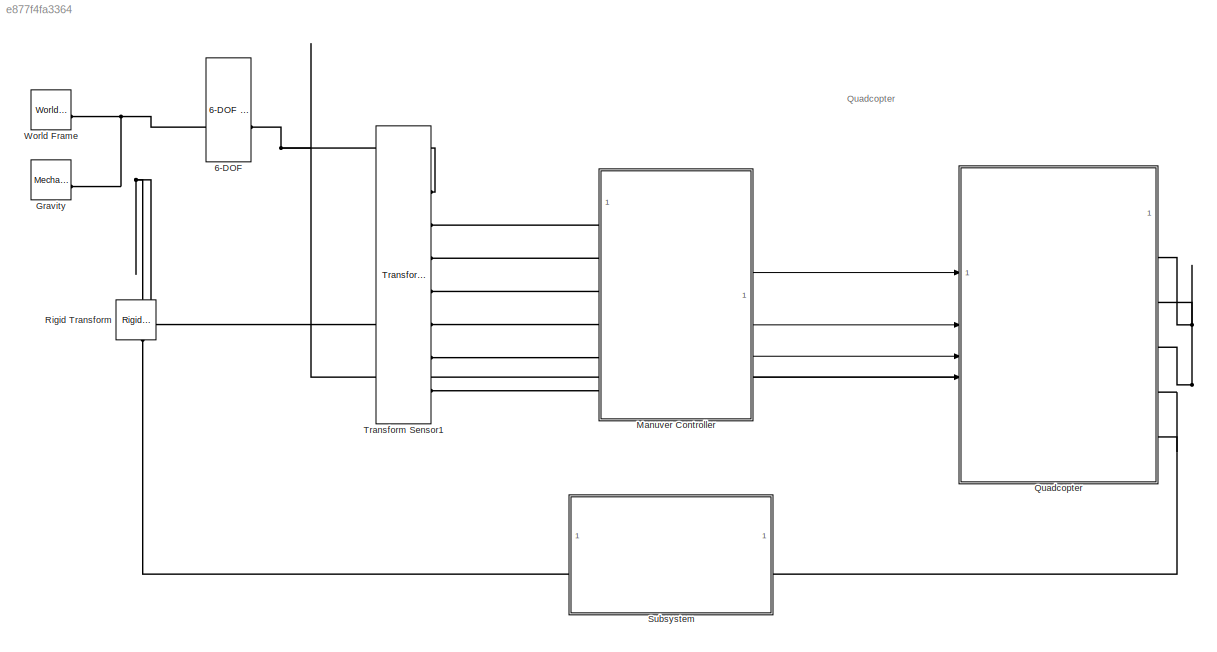
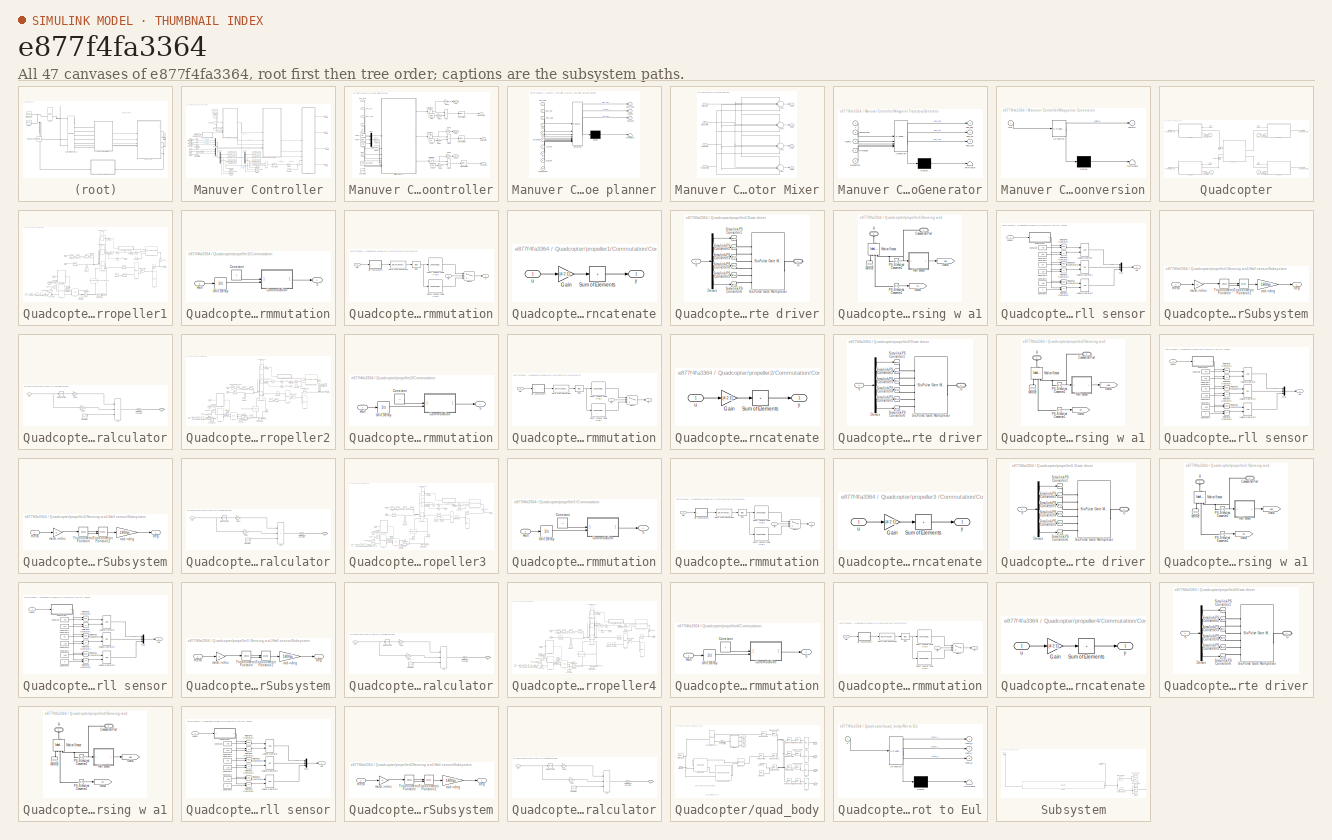
[diagram: thumbnail index - all 47 canvases of the model, root first then tree order]
MODEL slx_e877f4fa3364
KIND model
CONFIG AbsTol = 1e-4
CONFIG EnableMultiTasking = off
CONFIG FixedStep = auto
CONFIG MaxStep = 0.1
CONFIG MinStep = auto
CONFIG PreLoadFcn = Quadcopter_EMech_param_Ex1
CONFIG RelTol = 1e-4
CONFIG SampleTimeConstraint = Unconstrained
CONFIG SolverName = FixedStepAuto
CONFIG StartTime = 0.0
CONFIG StopTime = inf
WORKSPACE source: MATLAB code (in-file)
WORKSPACE code: load('xy_data_membrane.mat');
BLOCK [Reference] 6-DOF  REF=sm_lib/Joints/6-DOF Joint
  SourceBlock = sm_lib/Joints/6-DOF Joint
  SourceType = 6-DOF Joint
BLOCK [Reference] Gravity  REF=sm_lib/Utilities/Mechanism
Configuration
  SourceBlock = sm_lib/Utilities/Mechanism\nConfiguration
  SourceType = Mechanism\nConfiguration
BLOCK [SubSystem] Manuver Controller
BLOCK [Sum] Manuver Controller/Add
  IconShape = rectangular
  Inputs = +-
BLOCK [SubSystem] Manuver Controller/Attitude Controller
BLOCK [Sum] Manuver Controller/Attitude Controller/Add2
  IconShape = rectangular
  Inputs = +-
BLOCK [Sum] Manuver Controller/Attitude Controller/Add3
  IconShape = rectangular
  Inputs = +-
BLOCK [Sum] Manuver Controller/Attitude Controller/Add7
  IconShape = rectangular
  Inputs = +-
BLOCK [Clock] Manuver Controller/Attitude Controller/Clock
BLOCK [Constant] Manuver Controller/Attitude Controller/Constant1
  Value = m_total
BLOCK [Constant] Manuver Controller/Attitude Controller/Constant2
  Value = 0.15^3*2
BLOCK [From] Manuver Controller/Attitude Controller/From
  GotoTag = pitch
  TagVisibility = global
BLOCK [From] Manuver Controller/Attitude Controller/From1
  GotoTag = roll
  TagVisibility = global
BLOCK [From] Manuver Controller/Attitude Controller/From2
  GotoTag = yaw
  TagVisibility = global
BLOCK [From] Manuver Controller/Attitude Controller/From3
  GotoTag = pitch
  TagVisibility = global
BLOCK [From] Manuver Controller/Attitude Controller/From4
  GotoTag = roll
  TagVisibility = global
BLOCK [From] Manuver Controller/Attitude Controller/From5
  GotoTag = yaw
  TagVisibility = global
BLOCK [From] Manuver Controller/Attitude Controller/From6
  GotoTag = package_released
  TagVisibility = global
BLOCK [Gain] Manuver Controller/Attitude Controller/Gain1
  Gain = pi/180
BLOCK [Gain] Manuver Controller/Attitude Controller/Gain2
  Gain = pi/180
BLOCK [Gain] Manuver Controller/Attitude Controller/Gain3
  Gain = pi/180
BLOCK [Gain] Manuver Controller/Attitude Controller/Gain4
  Gain = pi/180
BLOCK [Gain] Manuver Controller/Attitude Controller/Gain5
  Gain = 180/pi
BLOCK [Gain] Manuver Controller/Attitude Controller/Gain8
  Gain = 180/pi
BLOCK [Gain] Manuver Controller/Attitude Controller/Gain9
  Gain = 180/pi
BLOCK [Goto] Manuver Controller/Attitude Controller/Goto
  GotoTag = pitch_ref
  TagVisibility = global
BLOCK [Goto] Manuver Controller/Attitude Controller/Goto1
  GotoTag = roll_ref
  TagVisibility = global
BLOCK [Goto] Manuver Controller/Attitude Controller/Goto2
  GotoTag = yaw_ref
  TagVisibility = global
BLOCK [Mux] Manuver Controller/Attitude Controller/Mux
  DisplayOption = bar
  Inputs = 3
BLOCK [Reference] Manuver Controller/Attitude Controller/PID Controller1  REF=slpidlib/PID Controller
  SourceBlock = slpidlib/PID Controller
  SourceType = PID 1dof
BLOCK [Reference] Manuver Controller/Attitude Controller/PID Controller2  REF=slpidlib/PID Controller
  SourceBlock = slpidlib/PID Controller
  SourceType = PID 1dof
BLOCK [Reference] Manuver Controller/Attitude Controller/PID Controller3  REF=slpidlib/PID Controller
  SourceBlock = slpidlib/PID Controller
  SourceType = PID 1dof
BLOCK [Outport] Manuver Controller/Attitude Controller/Pitch Control
BLOCK [Outport] Manuver Controller/Attitude Controller/Roll Control
  Port = 2
BLOCK [Saturate] Manuver Controller/Attitude Controller/Saturation1
  LowerLimit = -pi/3
  UpperLimit = pi/3
BLOCK [Saturate] Manuver Controller/Attitude Controller/Saturation2
  LowerLimit = -pi/3
  UpperLimit = pi/3
BLOCK [Saturate] Manuver Controller/Attitude Controller/Saturation3
  LowerLimit = -pi/3
  UpperLimit = pi/3
BLOCK [Outport] Manuver Controller/Attitude Controller/Yaw Control
  Port = 3
BLOCK [SubSystem] Manuver Controller/Attitude Controller/attitude planner
  ErrorFcn = Stateflow.Translate.translate
  PermitHierarchicalResolution = ExplicitOnly
  SFBlockType = MATLAB Function
  TreatAsAtomicUnit = on
BLOCK [Demux] Manuver Controller/Attitude Controller/attitude planner/ Demux 
  Outputs = 1
BLOCK [S-Function] Manuver Controller/Attitude Controller/attitude planner/ SFunction 
  EnableBusSupport = on
  FunctionName = sf_sfun
  PortCounts = [10 4]
  SFcnIsStateOwnerBlock = off
  SFunctionDeploymentMode = off
  Tag = Stateflow S-Function 1
BLOCK [Terminator] Manuver Controller/Attitude Controller/attitude planner/ Terminator 
BLOCK [Inport] Manuver Controller/Attitude Controller/attitude planner/T_drop
  Port = 7
BLOCK [Inport] Manuver Controller/Attitude Controller/attitude planner/attitude
  Port = 6
BLOCK [Inport] Manuver Controller/Attitude Controller/attitude planner/des_pos
BLOCK [Inport] Manuver Controller/Attitude Controller/attitude planner/des_vel
  Port = 2
BLOCK [Inport] Manuver Controller/Attitude Controller/attitude planner/des_yaw
  Port = 3
BLOCK [Inport] Manuver Controller/Attitude Controller/attitude planner/m_package
  Port = 10
BLOCK [Inport] Manuver Controller/Attitude Controller/attitude planner/m_quad
  Port = 9
BLOCK [Outport] Manuver Controller/Attitude Controller/attitude planner/pitch_des
BLOCK [Inport] Manuver Controller/Attitude Controller/attitude planner/pos
  Port = 4
BLOCK [Outport] Manuver Controller/Attitude Controller/attitude planner/roll_des
  Port = 2
BLOCK [Inport] Manuver Controller/Attitude Controller/attitude planner/t
  Port = 8
BLOCK [Inport] Manuver Controller/Attitude Controller/attitude planner/vel
  Port = 5
BLOCK [Outport] Manuver Controller/Attitude Controller/attitude planner/yaw_des
  Port = 3
BLOCK [Inport] Manuver Controller/Attitude Controller/des_pos
BLOCK [Inport] Manuver Controller/Attitude Controller/des_vel
  Port = 2
BLOCK [Inport] Manuver Controller/Attitude Controller/des_yaw
  Port = 3
BLOCK [Inport] Manuver Controller/Attitude Controller/pos
  Port = 4
BLOCK [Inport] Manuver Controller/Attitude Controller/vel
  Port = 5
BLOCK [Clock] Manuver Controller/Clock1
  DisplayTime = on
BLOCK [Constant] Manuver Controller/Constant
  Value = 700*2*pi
BLOCK [Constant] Manuver Controller/Constant6
BLOCK [Constant] Manuver Controller/Constant7
  Value = [x0;y0;initialAltitude]
BLOCK [Constant] Manuver Controller/Constant9
  Value = timespot
BLOCK [Demux] Manuver Controller/Demux
  Outputs = 3
BLOCK [Demux] Manuver Controller/Demux1
  Outputs = 3
BLOCK [FromWorkspace] Manuver Controller/From Workspace
  OutputAfterFinalValue = Holding final value
  VariableName = way
BLOCK [Gain] Manuver Controller/Gain3
  Gain = 2*pi/(0.254^4 * sqrt(1.225))
BLOCK [Goto] Manuver Controller/Goto1
  GotoTag = x_measured
  TagVisibility = global
BLOCK [Goto] Manuver Controller/Goto2
  GotoTag = x_ref
  TagVisibility = global
BLOCK [Goto] Manuver Controller/Goto3
  GotoTag = y_ref
  TagVisibility = global
BLOCK [Goto] Manuver Controller/Goto4
  GotoTag = height_mea
  TagVisibility = global
BLOCK [Goto] Manuver Controller/Goto5
  GotoTag = height_ref
  TagVisibility = global
BLOCK [Goto] Manuver Controller/Goto6
  GotoTag = y_measured
  TagVisibility = global
BLOCK [SubSystem] Manuver Controller/Motor Mixer
BLOCK [Sum] Manuver Controller/Motor Mixer/Add4
  Inputs = +--+
BLOCK [Sum] Manuver Controller/Motor Mixer/Add5
  Inputs = --++
BLOCK [Sum] Manuver Controller/Motor Mixer/Add6
  Inputs = -+-+
BLOCK [Sum] Manuver Controller/Motor Mixer/Add7
  Inputs = ++++
BLOCK [Inport] Manuver Controller/Motor Mixer/Pitch Control
BLOCK [Inport] Manuver Controller/Motor Mixer/Roll Control
  Port = 2
BLOCK [Inport] Manuver Controller/Motor Mixer/Thrust Control
  Port = 4
BLOCK [Inport] Manuver Controller/Motor Mixer/Yaw Control
  Port = 3
BLOCK [Outport] Manuver Controller/Motor Mixer/motor1
  Port = 2
BLOCK [Outport] Manuver Controller/Motor Mixer/motor2
BLOCK [Outport] Manuver Controller/Motor Mixer/motor3
  Port = 4
BLOCK [Outport] Manuver Controller/Motor Mixer/motor4
  Port = 3
BLOCK [Reference] Manuver Controller/PID Controller2  REF=slpidlib/PID Controller
  SourceBlock = slpidlib/PID Controller
  SourceType = PID 1dof
BLOCK [Reference] Manuver Controller/PS-Simulink Converter  REF=nesl_utility/PS-Simulink
Converter
  SourceBlock = nesl_utility/PS-Simulink\nConverter
  SourceType = PS-Simulink\nConverter
BLOCK [Reference] Manuver Controller/PS-Simulink Converter1  REF=nesl_utility/PS-Simulink
Converter
  SourceBlock = nesl_utility/PS-Simulink\nConverter
  SourceType = PS-Simulink\nConverter
BLOCK [Reference] Manuver Controller/PS-Simulink Converter2  REF=nesl_utility/PS-Simulink
Converter
  SourceBlock = nesl_utility/PS-Simulink\nConverter
  SourceType = PS-Simulink\nConverter
BLOCK [Sum] Manuver Controller/Sum
  Inputs = |++
BLOCK [ToWorkspace] Manuver Controller/To Workspace
  FixptAsFi = on
  MaxDataPoints = inf
  SampleTime = -1
  VariableName = act_z
BLOCK [ToWorkspace] Manuver Controller/To Workspace4
  FixptAsFi = on
  MaxDataPoints = inf
  SampleTime = -1
  VariableName = act_y
BLOCK [ToWorkspace] Manuver Controller/To Workspace5
  FixptAsFi = on
  MaxDataPoints = inf
  SampleTime = -1
  VariableName = act_x
BLOCK [ToWorkspace] Manuver Controller/To Workspace6
  MaxDataPoints = inf
  SampleTime = -1
  VariableName = des_x
BLOCK [ToWorkspace] Manuver Controller/To Workspace7
  FixptAsFi = on
  MaxDataPoints = inf
  SampleTime = -1
  VariableName = des_y
BLOCK [ToWorkspace] Manuver Controller/To Workspace8
  FixptAsFi = on
  MaxDataPoints = inf
  SampleTime = -1
  VariableName = des_z
BLOCK [SubSystem] Manuver Controller/Waypoint Trajectory Generator
  ErrorFcn = Stateflow.Translate.translate
  PermitHierarchicalResolution = ExplicitOnly
  SFBlockType = MATLAB Function
  TreatAsAtomicUnit = on
BLOCK [Demux] Manuver Controller/Waypoint Trajectory Generator/ Demux 
  Outputs = 1
BLOCK [S-Function] Manuver Controller/Waypoint Trajectory Generator/ SFunction 
  EnableBusSupport = on
  FunctionName = sf_sfun
  PortCounts = [5 4]
  SFcnIsStateOwnerBlock = off
  SFunctionDeploymentMode = off
  Tag = Stateflow S-Function 4
BLOCK [Terminator] Manuver Controller/Waypoint Trajectory Generator/ Terminator 
BLOCK [Outport] Manuver Controller/Waypoint Trajectory Generator/des_pos
BLOCK [Outport] Manuver Controller/Waypoint Trajectory Generator/des_vel
  Port = 2
BLOCK [Outport] Manuver Controller/Waypoint Trajectory Generator/des_yaw
  Port = 3
BLOCK [Inport] Manuver Controller/Waypoint Trajectory Generator/homePose
  Port = 2
BLOCK [Inport] Manuver Controller/Waypoint Trajectory Generator/launch
  Port = 3
BLOCK [Inport] Manuver Controller/Waypoint Trajectory Generator/t
BLOCK [Inport] Manuver Controller/Waypoint Trajectory Generator/timespot
  Port = 4
BLOCK [Inport] Manuver Controller/Waypoint Trajectory Generator/waypoints
  Port = 5
BLOCK [SubSystem] Manuver Controller/Waypoints Conversion
  ErrorFcn = Stateflow.Translate.translate
  PermitHierarchicalResolution = ExplicitOnly
  SFBlockType = MATLAB Function
  TreatAsAtomicUnit = on
BLOCK [Demux] Manuver Controller/Waypoints Conversion/ Demux 
  Outputs = 1
BLOCK [S-Function] Manuver Controller/Waypoints Conversion/ SFunction 
  EnableBusSupport = on
  FunctionName = sf_sfun
  PortCounts = [1 2]
  SFcnIsStateOwnerBlock = off
  SFunctionDeploymentMode = off
  Tag = Stateflow S-Function 3
BLOCK [Terminator] Manuver Controller/Waypoints Conversion/ Terminator 
BLOCK [Outport] Manuver Controller/Waypoints Conversion/points1
BLOCK [Inport] Manuver Controller/Waypoints Conversion/way
BLOCK [Outport] Manuver Controller/motor1
  Port = 2
BLOCK [Outport] Manuver Controller/motor2
BLOCK [Outport] Manuver Controller/motor3
  Port = 4
BLOCK [Outport] Manuver Controller/motor4
  Port = 3
BLOCK [Mux] Manuver Controller/position
  DisplayOption = bar
  Inputs = 3
  NameLocation = top
BLOCK [PMIOPort] Manuver Controller/vel_x
  Port = 4
  Side = Left
BLOCK [PMIOPort] Manuver Controller/vel_y
  Port = 5
  Side = Left
BLOCK [PMIOPort] Manuver Controller/vel_z
  Port = 6
  Side = Left
BLOCK [Mux] Manuver Controller/velocity
  DisplayOption = bar
  Inputs = 3
BLOCK [Reference] Manuver Controller/x  REF=nesl_utility/PS-Simulink
Converter
  SourceBlock = nesl_utility/PS-Simulink\nConverter
  SourceType = PS-Simulink\nConverter
BLOCK [PMIOPort] Manuver Controller/x-translation
  Side = Left
BLOCK [Reference] Manuver Controller/y  REF=nesl_utility/PS-Simulink
Converter
  SourceBlock = nesl_utility/PS-Simulink\nConverter
  SourceType = PS-Simulink\nConverter
BLOCK [PMIOPort] Manuver Controller/y-translation
  Port = 2
  Side = Left
BLOCK [Reference] Manuver Controller/z  REF=nesl_utility/PS-Simulink
Converter
  SourceBlock = nesl_utility/PS-Simulink\nConverter
  SourceType = PS-Simulink\nConverter
BLOCK [PMIOPort] Manuver Controller/z-translation
  Port = 3
  Side = Left
BLOCK [SubSystem] Quadcopter
BLOCK [Goto] Quadcopter/Goto
  GotoTag = T2
  TagVisibility = global
BLOCK [Goto] Quadcopter/Goto1
  GotoTag = T4
  TagVisibility = global
BLOCK [Goto] Quadcopter/Goto2
  GotoTag = T1
  TagVisibility = global
BLOCK [Goto] Quadcopter/Goto3
  GotoTag = T3
  TagVisibility = global
BLOCK [PMIOPort] Quadcopter/Landing Support1
  Port = 2
  Side = Right
BLOCK [PMIOPort] Quadcopter/Landing Support2 
  Port = 5
  Side = Right
BLOCK [PMIOPort] Quadcopter/Landing Support3
  NameLocation = top
  Port = 3
  Side = Right
BLOCK [PMIOPort] Quadcopter/Landing Support4 
  Port = 4
  Side = Right
BLOCK [Reference] Quadcopter/PS-Simulink Converter  REF=nesl_utility/PS-Simulink
Converter
  SourceBlock = nesl_utility/PS-Simulink\nConverter
  SourceType = PS-Simulink\nConverter
BLOCK [Reference] Quadcopter/PS-Simulink Converter1  REF=nesl_utility/PS-Simulink
Converter
  SourceBlock = nesl_utility/PS-Simulink\nConverter
  SourceType = PS-Simulink\nConverter
BLOCK [Reference] Quadcopter/PS-Simulink Converter2  REF=nesl_utility/PS-Simulink
Converter
  SourceBlock = nesl_utility/PS-Simulink\nConverter
  SourceType = PS-Simulink\nConverter
BLOCK [Reference] Quadcopter/PS-Simulink Converter3  REF=nesl_utility/PS-Simulink
Converter
  SourceBlock = nesl_utility/PS-Simulink\nConverter
  SourceType = PS-Simulink\nConverter
BLOCK [PMIOPort] Quadcopter/arm
  Side = Left
BLOCK [PMIOPort] Quadcopter/ground
  Port = 6
  Side = Right
BLOCK [Inport] Quadcopter/prop1 
  Port = 2
BLOCK [Inport] Quadcopter/prop2
BLOCK [Inport] Quadcopter/prop3
  Port = 4
BLOCK [Inport] Quadcopter/prop4
  Port = 3
BLOCK [SubSystem] Quadcopter/propeller1
BLOCK [Abs] Quadcopter/propeller1/Abs
  SaturateOnIntegerOverflow = off
BLOCK [Reference] Quadcopter/propeller1/BLDC  REF=ee_lib/Electromechanical/Permanent Magnet/BLDC
  SourceBlock = ee_lib/Electromechanical/Permanent Magnet/BLDC
  SourceType = BLDC
BLOCK [Reference] Quadcopter/propeller1/Collision Detector 2-1  REF=sm_lib/Body Elements/Spherical Solid
  NameLocation = top
  SourceBlock = sm_lib/Body Elements/Spherical Solid
  SourceType = Spherical Solid
BLOCK [SubSystem] Quadcopter/propeller1/Commutation
  NameLocation = top
BLOCK [SubSystem] Quadcopter/propeller1/Commutation/Commutation
BLOCK [Bias] Quadcopter/propeller1/Commutation/Commutation/Bias
  Bias = -1
  SaturateOnIntegerOverflow = off
BLOCK [SubSystem] Quadcopter/propeller1/Commutation/Commutation/Bit concatenate
BLOCK [Gain] Quadcopter/propeller1/Commutation/Commutation/Bit concatenate/Gain
  Gain = [4 2 1]
  Multiplication = Matrix(K*u)
BLOCK [Sum] Quadcopter/propeller1/Commutation/Commutation/Bit concatenate/Sum of Elements
  IconShape = rectangular
  Inputs = +
BLOCK [Inport] Quadcopter/propeller1/Commutation/Commutation/Bit concatenate/u
BLOCK [Outport] Quadcopter/propeller1/Commutation/Commutation/Bit concatenate/y
  VectorParamsAs1DForOutWhenUnconnected = off
BLOCK [DataTypeConversion] Quadcopter/propeller1/Commutation/Commutation/Data Type Conversion
  RndMeth = Floor
  SaturateOnIntegerOverflow = off
BLOCK [LookupNDDirect] Quadcopter/propeller1/Commutation/Commutation/Direct Lookup Table (n-D)1
  InputsSelectThisObjectFromTable = Vector
  Table = [0 1 1 0 0 0;0 0 0 1 1 0;1 0 0 0 1 0;0 1 0 0 0 1;0 0 0 1 0 1;1 0 1 0 0 0]
BLOCK [LookupNDDirect] Quadcopter/propeller1/Commutation/Commutation/Direct Lookup Table (n-D)2
  InputsSelectThisObjectFromTable = Vector
  Table = [0 0 0 1 1 0;0 1 1 0 0 0;0 1 0 0 0 1;1 0 0 0 1 0;1 0 1 0 0 0;0 0 0 1 0 1]
BLOCK [Inport] Quadcopter/propeller1/Commutation/Commutation/Hall
  Port = 2
BLOCK [Outport] Quadcopter/propeller1/Commutation/Commutation/S
  VectorParamsAs1DForOutWhenUnconnected = off
BLOCK [Switch] Quadcopter/propeller1/Commutation/Commutation/Switch
  Criteria = u2 > Threshold
  InputSameDT = off
  SaturateOnIntegerOverflow = off
BLOCK [Inport] Quadcopter/propeller1/Commutation/Commutation/dir
BLOCK [Constant] Quadcopter/propeller1/Commutation/Constant
BLOCK [Inport] Quadcopter/propeller1/Commutation/Hall
BLOCK [Outport] Quadcopter/propeller1/Commutation/S
  VectorParamsAs1DForOutWhenUnconnected = off
BLOCK [UnitDelay] Quadcopter/propeller1/Commutation/Unit Delay
  HasFrameUpgradeWarning = on
  SampleTime = -1
BLOCK [Reference] Quadcopter/propeller1/Controlled Voltage Source  REF=fl_lib/Electrical/Electrical Sources/Controlled Voltage
Source
  NameLocation = right
  SourceBlock = fl_lib/Electrical/Electrical Sources/Controlled Voltage\nSource
  SourceType = Controlled Voltage\nSource
BLOCK [Reference] Quadcopter/propeller1/Current Sensor  REF=fl_lib/Electrical/Electrical Sensors/Current Sensor
  SourceBlock = fl_lib/Electrical/Electrical Sensors/Current Sensor
  SourceType = Current Sensor
BLOCK [Reference] Quadcopter/propeller1/ERef Converter1  REF=fl_lib/Electrical/Electrical Elements/Electrical Reference
  NameLocation = right
  SourceBlock = fl_lib/Electrical/Electrical Elements/Electrical Reference
  SourceType = Electrical Reference
BLOCK [Reference] Quadcopter/propeller1/ERef IPMSM  REF=fl_lib/Electrical/Electrical Elements/Electrical Reference
  SourceBlock = fl_lib/Electrical/Electrical Elements/Electrical Reference
  SourceType = Electrical Reference
BLOCK [From] Quadcopter/propeller1/From7
  GotoTag = Hall1
  TagVisibility = global
BLOCK [Gain] Quadcopter/propeller1/Gain1
  Gain = 30/pi
BLOCK [Gain] Quadcopter/propeller1/Gain2
  Gain = 30/pi
BLOCK [SubSystem] Quadcopter/propeller1/Gate driver
  NameLocation = top
BLOCK [Demux] Quadcopter/propeller1/Gate driver/Demux
  Outputs = 6
BLOCK [PMIOPort] Quadcopter/propeller1/Gate driver/G
  Side = Right
BLOCK [Inport] Quadcopter/propeller1/Gate driver/S
BLOCK [Reference] Quadcopter/propeller1/Gate driver/Simulink-PS Converter1  REF=nesl_utility/Simulink-PS
Converter
  SourceBlock = nesl_utility/Simulink-PS\nConverter
  SourceType = Simulink-PS\nConverter
BLOCK [Reference] Quadcopter/propeller1/Gate driver/Simulink-PS Converter2  REF=nesl_utility/Simulink-PS
Converter
  SourceBlock = nesl_utility/Simulink-PS\nConverter
  SourceType = Simulink-PS\nConverter
BLOCK [Reference] Quadcopter/propeller1/Gate driver/Simulink-PS Converter3  REF=nesl_utility/Simulink-PS
Converter
  SourceBlock = nesl_utility/Simulink-PS\nConverter
  SourceType = Simulink-PS\nConverter
BLOCK [Reference] Quadcopter/propeller1/Gate driver/Simulink-PS Converter4  REF=nesl_utility/Simulink-PS
Converter
  SourceBlock = nesl_utility/Simulink-PS\nConverter
  SourceType = Simulink-PS\nConverter
BLOCK [Reference] Quadcopter/propeller1/Gate driver/Simulink-PS Converter5  REF=nesl_utility/Simulink-PS
Converter
  SourceBlock = nesl_utility/Simulink-PS\nConverter
  SourceType = Simulink-PS\nConverter
BLOCK [Reference] Quadcopter/propeller1/Gate driver/Simulink-PS Converter6  REF=nesl_utility/Simulink-PS
Converter
  SourceBlock = nesl_utility/Simulink-PS\nConverter
  SourceType = Simulink-PS\nConverter
BLOCK [Reference] Quadcopter/propeller1/Gate driver/Six-Pulse Gate Multiplexer  REF=ee_lib/Semiconductors &
Converters/Converters/Six-Pulse Gate
Multiplexer
  SourceBlock = ee_lib/Semiconductors &\nConverters/Converters/Six-Pulse Gate\nMultiplexer
  SourceType = Six-Pulse Gate\nMultiplexer
BLOCK [Reference] Quadcopter/propeller1/Gmin  REF=fl_lib/Electrical/Electrical Elements/Resistor
  SourceBlock = fl_lib/Electrical/Electrical Elements/Resistor
  SourceType = Resistor
BLOCK [Goto] Quadcopter/propeller1/Goto
  GotoTag = rpm1
  TagVisibility = global
BLOCK [Goto] Quadcopter/propeller1/Goto1
  GotoTag = i_motor1
  TagVisibility = global
BLOCK [Reference] Quadcopter/propeller1/Ideal Angular Velocity Source  REF=fl_lib/Mechanical/Mechanical Sources/Ideal Angular
Velocity Source
  NameLocation = top
  SourceBlock = fl_lib/Mechanical/Mechanical Sources/Ideal Angular\nVelocity Source
  SourceType = Ideal Angular\nVelocity Source
BLOCK [Reference] Quadcopter/propeller1/Ideal Torque Sensor  REF=fl_lib/Mechanical/Mechanical Sensors/Ideal Torque Sensor
  SourceBlock = fl_lib/Mechanical/Mechanical Sensors/Ideal Torque Sensor
  SourceType = Ideal Torque Sensor
BLOCK [Reference] Quadcopter/propeller1/Inverter  REF=ee_lib/Semiconductors &
Converters/Converters/Converter
(Three-Phase)
  SourceBlock = ee_lib/Semiconductors &\nConverters/Converters/Converter\n(Three-Phase)
  SourceType = Converter\n(Three-Phase)
BLOCK [Reference] Quadcopter/propeller1/Landing support1  REF=sm_lib/Body Elements/Brick Solid
  SourceBlock = sm_lib/Body Elements/Brick Solid
  SourceType = Brick Solid
BLOCK [PMIOPort] Quadcopter/propeller1/Leg
  Port = 2
  Side = Right
BLOCK [Reference] Quadcopter/propeller1/MRRef IPMSM1  REF=fl_lib/Mechanical/Rotational Elements/Mechanical
Rotational Reference
  NameLocation = top
  SourceBlock = fl_lib/Mechanical/Rotational Elements/Mechanical\nRotational Reference
  SourceType = Mechanical\nRotational Reference
BLOCK [Reference] Quadcopter/propeller1/MRRef Load  REF=fl_lib/Mechanical/Rotational Elements/Mechanical
Rotational Reference
  NameLocation = top
  SourceBlock = fl_lib/Mechanical/Rotational Elements/Mechanical\nRotational Reference
  SourceType = Mechanical\nRotational Reference
BLOCK [PMIOPort] Quadcopter/propeller1/Motor
  Side = Left
BLOCK [Reference] Quadcopter/propeller1/PS Constant  REF=fl_lib/Physical Signals/Sources/PS Constant
  SourceBlock = fl_lib/Physical Signals/Sources/PS Constant
  SourceType = PS Constant
BLOCK [Reference] Quadcopter/propeller1/PS Gain  REF=fl_lib/Physical Signals/Functions/PS Gain
  SourceBlock = fl_lib/Physical Signals/Functions/PS Gain
  SourceType = PS Gain
BLOCK [Reference] Quadcopter/propeller1/PS Gain3  REF=fl_lib/Physical Signals/Functions/PS Gain
  NameLocation = left
  SourceBlock = fl_lib/Physical Signals/Functions/PS Gain
  SourceType = PS Gain
BLOCK [Reference] Quadcopter/propeller1/PS-Simulink Converter1  REF=nesl_utility/PS-Simulink
Converter
  SourceBlock = nesl_utility/PS-Simulink\nConverter
  SourceType = PS-Simulink\nConverter
BLOCK [Reference] Quadcopter/propeller1/PS-Simulink Converter2  REF=nesl_utility/PS-Simulink
Converter
  SourceBlock = nesl_utility/PS-Simulink\nConverter
  SourceType = PS-Simulink\nConverter
BLOCK [Reference] Quadcopter/propeller1/PS-Simulink Converter3  REF=nesl_utility/PS-Simulink
Converter
  SourceBlock = nesl_utility/PS-Simulink\nConverter
  SourceType = PS-Simulink\nConverter
BLOCK [Reference] Quadcopter/propeller1/Prop1  REF=sm_lib/Body Elements/File Solid
  SourceBlock = sm_lib/Body Elements/File Solid
  SourceType = File Solid
BLOCK [RateLimiter] Quadcopter/propeller1/Rate Limiter1
  FallingSlewLimit = -Tmax*(60/2/pi)/Jm/6
  RisingSlewLimit = Tmax*(60/2/pi)/Jm/6
  SampleTimeMode = inherited
BLOCK [Reference] Quadcopter/propeller1/Revolute Joint  REF=sm_lib/Joints/Revolute Joint
  SourceBlock = sm_lib/Joints/Revolute Joint
  SourceType = Revolute Joint
BLOCK [Reference] Quadcopter/propeller1/Rigid Transform6  REF=sm_lib/Frames and
Transforms/Rigid
Transform
  SourceBlock = sm_lib/Frames and\nTransforms/Rigid\nTransform
  SourceType = Rigid\nTransform
BLOCK [Saturate] Quadcopter/propeller1/Saturation
  LowerLimit = 0
  UpperLimit = Vdc
BLOCK [SubSystem] Quadcopter/propeller1/Sensing w a1
  NameLocation = left
BLOCK [PMIOPort] Quadcopter/propeller1/Sensing w a1/Connection Port
  NameLocation = top
  Port = 2
  Side = Right
BLOCK [Goto] Quadcopter/propeller1/Sensing w a1/Goto1
  GotoTag = Hall1
  TagVisibility = global
BLOCK [Goto] Quadcopter/propeller1/Sensing w a1/Goto2
  GotoTag = w1
  TagVisibility = global
BLOCK [SubSystem] Quadcopter/propeller1/Sensing w a1/Hall sensor
BLOCK [Constant] Quadcopter/propeller1/Sensing w a1/Hall sensor/Constant
  Value = -60
BLOCK [Constant] Quadcopter/propeller1/Sensing w a1/Hall sensor/Constant1
  Value = 120
BLOCK [Constant] Quadcopter/propeller1/Sensing w a1/Hall sensor/Constant2
  Value = 60
BLOCK [Constant] Quadcopter/propeller1/Sensing w a1/Hall sensor/Constant3
  Value = -120
BLOCK [Constant] Quadcopter/propeller1/Sensing w a1/Hall sensor/Constant4
  Value = -180
BLOCK [Constant] Quadcopter/propeller1/Sensing w a1/Hall sensor/Constant5
  Value = 0
BLOCK [Outport] Quadcopter/propeller1/Sensing w a1/Hall sensor/Hall
  VectorParamsAs1DForOutWhenUnconnected = off
BLOCK [Logic] Quadcopter/propeller1/Sensing w a1/Hall sensor/Logical Operator
  AllPortsSameDT = off
  OutDataTypeStr = boolean
BLOCK [Logic] Quadcopter/propeller1/Sensing w a1/Hall sensor/Logical Operator1
  AllPortsSameDT = off
  Operator = OR
  OutDataTypeStr = boolean
BLOCK [Logic] Quadcopter/propeller1/Sensing w a1/Hall sensor/Logical Operator2
  AllPortsSameDT = off
  OutDataTypeStr = boolean
BLOCK [Mux] Quadcopter/propeller1/Sensing w a1/Hall sensor/Mux
  DisplayOption = bar
  Inputs = 3
BLOCK [RelationalOperator] Quadcopter/propeller1/Sensing w a1/Hall sensor/Relational Operator1
  Operator = <=
BLOCK [RelationalOperator] Quadcopter/propeller1/Sensing w a1/Hall sensor/Relational Operator2
BLOCK [RelationalOperator] Quadcopter/propeller1/Sensing w a1/Hall sensor/Relational Operator3
  Operator = <=
BLOCK [RelationalOperator] Quadcopter/propeller1/Sensing w a1/Hall sensor/Relational Operator4
BLOCK [RelationalOperator] Quadcopter/propeller1/Sensing w a1/Hall sensor/Relational Operator5
  Operator = <=
BLOCK [RelationalOperator] Quadcopter/propeller1/Sensing w a1/Hall sensor/Relational Operator6
BLOCK [SubSystem] Quadcopter/propeller1/Sensing w a1/Hall sensor/Subsystem
BLOCK [Trigonometry] Quadcopter/propeller1/Sensing w a1/Hall sensor/Subsystem/Trigonometric Function
  Operator = sincos
BLOCK [Trigonometry] Quadcopter/propeller1/Sensing w a1/Hall sensor/Subsystem/Trigonometric Function2
  Operator = atan2
BLOCK [Outport] Quadcopter/propeller1/Sensing w a1/Hall sensor/Subsystem/deg
  VectorParamsAs1DForOutWhenUnconnected = off
BLOCK [Gain] Quadcopter/propeller1/Sensing w a1/Hall sensor/Subsystem/mech->elec
  Gain = p
BLOCK [Gain] Quadcopter/propeller1/Sensing w a1/Hall sensor/Subsystem/rad->deg
  Gain = 180/pi
  OutDataTypeStr = Inherit: Same as input
  ParamDataTypeStr = Inherit: Same as input
  SaturateOnIntegerOverflow = on
BLOCK [Inport] Quadcopter/propeller1/Sensing w a1/Hall sensor/Subsystem/theta
BLOCK [Inport] Quadcopter/propeller1/Sensing w a1/Hall sensor/theta
BLOCK [Reference] Quadcopter/propeller1/Sensing w a1/MRRef  REF=fl_lib/Mechanical/Rotational Elements/Mechanical
Rotational Reference
  NameLocation = left
  SourceBlock = fl_lib/Mechanical/Rotational Elements/Mechanical\nRotational Reference
  SourceType = Mechanical\nRotational Reference
BLOCK [Reference] Quadcopter/propeller1/Sensing w a1/Motion Sensor  REF=fl_lib/Mechanical/Mechanical Sensors/Ideal Rotational
Motion Sensor
  NameLocation = right
  SourceBlock = fl_lib/Mechanical/Mechanical Sensors/Ideal Rotational\nMotion Sensor
  SourceType = Ideal Rotational\nMotion Sensor
BLOCK [Reference] Quadcopter/propeller1/Sensing w a1/PS-Simulink Converter1  REF=nesl_utility/PS-Simulink
Converter
  SourceBlock = nesl_utility/PS-Simulink\nConverter
  SourceType = PS-Simulink\nConverter
BLOCK [Reference] Quadcopter/propeller1/Sensing w a1/PS-Simulink Converter2  REF=nesl_utility/PS-Simulink
Converter
  SourceBlock = nesl_utility/PS-Simulink\nConverter
  SourceType = PS-Simulink\nConverter
BLOCK [PMIOPort] Quadcopter/propeller1/Sensing w a1/R
  NameLocation = right
  Side = Left
BLOCK [SimscapeComponentBlock] Quadcopter/propeller1/Simscape Component
  ClassName = PropellerThrust
  ComponentPath = PropellerThrust
  ComponentVariantNames = ["PropellerThrust"]
  ComponentVariants = ["PropellerThrust"]
  CopyFcn = simscape.engine.sli.internal.componentblockcallback(gcbh,'COPY')
  D = 0.254
  D_conf = compiletime
  D_unit = m
  InternalSimscapePortConfiguration = {"Bottom":[],"Left":[{"id":"ct","label":"Thrust Coefficient","type":"input"},{"id":"rpm","label":"rpm","type":"input"},{"id":"rho","label":"rho","type":"input"}],"Right":[{"id":"Thrust","label":"Thrust","type":"output"}],"Top":[]}  <repeated x4 — deduplicated; at blocks: Simscape Component, Propeller Thrust Calculator>
  MaskDisplay = color('red');plot([0 1 1 0 0],[0 0 1 1 0]);plot([0.7,1],[1,0.7]);plot(-2,-1.75);plot(3, 1);disp('\n.ssc\nUnresolved')
  MaskType = Propeller Thrust Characteristic Calculator
  PreCopyFcn = simscape.engine.sli.internal.componentblockcallback(gcbh,'PRECOPY')
  PreDeleteFcn = simscape.engine.sli.internal.componentblockcallback(gcbh,'PREDELETE')
  SchemaVersion = 1
  SourceFile = PropellerThrust
BLOCK [SimscapeComponentBlock] Quadcopter/propeller1/Simscape Component1
  ClassName = fault_injection
  ComponentPath = fault_injection
  ComponentVariantNames = ["fault_injection"]
  ComponentVariants = ["fault_injection"]
  CopyFcn = simscape.engine.sli.internal.componentblockcallback(gcbh,'COPY')
  InternalSimscapePortConfiguration = {"Bottom":[],"Left":[{"id":"I","label":"","type":"input"}],"Right":[{"id":"O","label":"","type":"output"}],"Top":[]}
  MaskDisplay = color('red');plot([0 1 1 0 0],[0 0 1 1 0]);plot([0.7,1],[1,0.7]);plot(-2,-1.75);plot(3, 1);disp('\n.ssc\nUnresolved')
  MaskType = Fault Injection
  NameLocation = right
  PreCopyFcn = simscape.engine.sli.internal.componentblockcallback(gcbh,'PRECOPY')
  PreDeleteFcn = simscape.engine.sli.internal.componentblockcallback(gcbh,'PREDELETE')
  SchemaVersion = 1
  SourceFile = fault_injection
  enable_faults = simscape.enum.onoff.off
  enable_faults_conf = compiletime
  enable_faults_unit = 1
  external_fault = simscape.enum.onoff.off
  external_fault_conf = compiletime
  external_fault_unit = 1
  fault_time = tFault1
  fault_time_conf = compiletime
  fault_time_unit = s
  faulted_torque = torqueFault1
  faulted_torque_conf = compiletime
  faulted_torque_unit = 1
  temporal_fault = simscape.enum.onoff.off
  temporal_fault_conf = compiletime
  temporal_fault_unit = 1
BLOCK [Reference] Quadcopter/propeller1/Simulink-PS Converter  REF=nesl_utility/Simulink-PS
Converter
  SourceBlock = nesl_utility/Simulink-PS\nConverter
  SourceType = Simulink-PS\nConverter
BLOCK [Reference] Quadcopter/propeller1/Simulink-PS Converter1  REF=nesl_utility/Simulink-PS
Converter
  SourceBlock = nesl_utility/Simulink-PS\nConverter
  SourceType = Simulink-PS\nConverter
BLOCK [Reference] Quadcopter/propeller1/Spatial Contact Force  REF=sm_lib/Forces and
Torques/Spatial
Contact Force
  NameLocation = top
  SourceBlock = sm_lib/Forces and\nTorques/Spatial\nContact Force
  SourceType = Spatial\nContact Force
BLOCK [Reference] Quadcopter/propeller1/Thrust  REF=sm_lib/Forces and
Torques/External Force
and Torque
  SourceBlock = sm_lib/Forces and\nTorques/External Force\nand Torque
  SourceType = External Force\nand Torque
BLOCK [SubSystem] Quadcopter/propeller1/Thrust Coefficient Calculator
BLOCK [Sum] Quadcopter/propeller1/Thrust Coefficient Calculator/Add
  IconShape = rectangular
  Inputs = +++
BLOCK [Constant] Quadcopter/propeller1/Thrust Coefficient Calculator/Constant
  Value = 0.1072
BLOCK [PMIOPort] Quadcopter/propeller1/Thrust Coefficient Calculator/Ct
  NameLocation = top
  Side = Right
BLOCK [Gain] Quadcopter/propeller1/Thrust Coefficient Calculator/Gain1
  Gain = -0.008716
BLOCK [Gain] Quadcopter/propeller1/Thrust Coefficient Calculator/Gain4
  Gain = -0.001589
BLOCK [Math] Quadcopter/propeller1/Thrust Coefficient Calculator/Math Function
  Operator = square
BLOCK [Reference] Quadcopter/propeller1/Thrust Coefficient Calculator/Simulink-PS Converter  REF=nesl_utility/Simulink-PS
Converter
  SourceBlock = nesl_utility/Simulink-PS\nConverter
  SourceType = Simulink-PS\nConverter
BLOCK [Inport] Quadcopter/propeller1/Thrust Coefficient Calculator/m//s
BLOCK [PMIOPort] Quadcopter/propeller1/Thrust2 
  Port = 3
  Side = Left
BLOCK [Reference] Quadcopter/propeller1/Transform Sensor  REF=sm_lib/Frames and
Transforms/Transform
Sensor
  SourceBlock = sm_lib/Frames and\nTransforms/Transform\nSensor
  SourceType = Transform\nSensor
BLOCK [Reference] Quadcopter/propeller1/Transform Sensor1  REF=sm_lib/Frames and
Transforms/Transform
Sensor
  SourceBlock = sm_lib/Frames and\nTransforms/Transform\nSensor
  SourceType = Transform\nSensor
BLOCK [Reference] Quadcopter/propeller1/Transform1  REF=sm_lib/Frames and
Transforms/Rigid
Transform
  SourceBlock = sm_lib/Frames and\nTransforms/Rigid\nTransform
  SourceType = Rigid\nTransform
BLOCK [Reference] Quadcopter/propeller1/Transform2  REF=sm_lib/Frames and
Transforms/Rigid
Transform
  SourceBlock = sm_lib/Frames and\nTransforms/Rigid\nTransform
  SourceType = Rigid\nTransform
BLOCK [Reference] Quadcopter/propeller1/Transform3  REF=sm_lib/Frames and
Transforms/Rigid
Transform
  SourceBlock = sm_lib/Frames and\nTransforms/Rigid\nTransform
  SourceType = Rigid\nTransform
BLOCK [Reference] Quadcopter/propeller1/Transform4  REF=sm_lib/Frames and
Transforms/Rigid
Transform
  SourceBlock = sm_lib/Frames and\nTransforms/Rigid\nTransform
  SourceType = Rigid\nTransform
BLOCK [Inport] Quadcopter/propeller1/Vs1
BLOCK [Reference] Quadcopter/propeller1/motor base  REF=sm_lib/Body Elements/Cylindrical Solid
  NameLocation = right
  SourceBlock = sm_lib/Body Elements/Cylindrical Solid
  SourceType = Cylindrical Solid
BLOCK [Reference] Quadcopter/propeller1/motor cap1  REF=sm_lib/Body Elements/File Solid
  SourceBlock = sm_lib/Body Elements/File Solid
  SourceType = File Solid
BLOCK [Reference] Quadcopter/propeller1/motor1  REF=sm_lib/Body Elements/File Solid
  SourceBlock = sm_lib/Body Elements/File Solid
  SourceType = File Solid
BLOCK [Gain] Quadcopter/propeller1/rpm -> pwm
  Gain = p*psim*2*2*pi/60
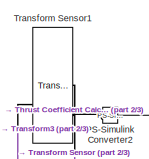
[diagram: Quadcopter/propeller2 - part 1/3, top center region]
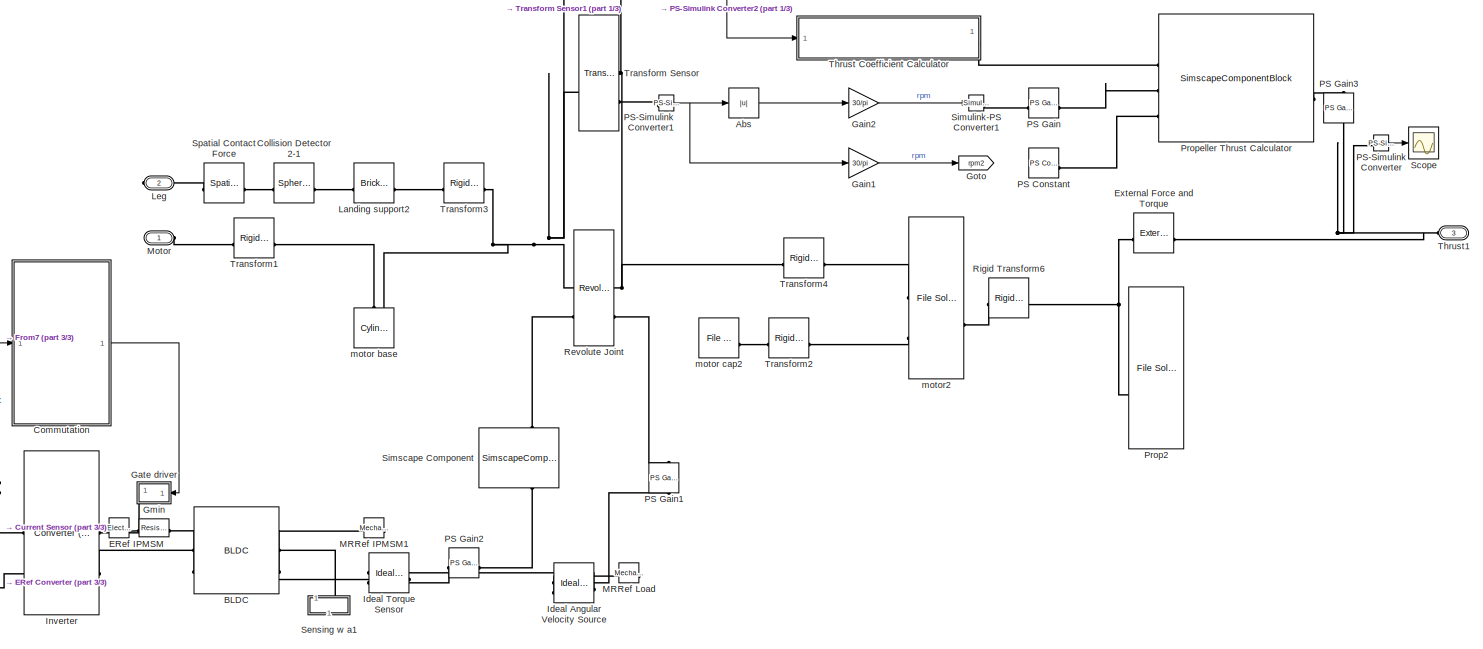
[diagram: Quadcopter/propeller2 - part 2/3, full width, middle band]
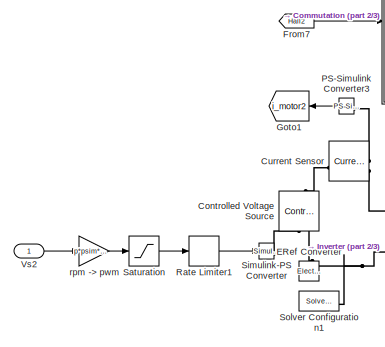
[diagram: Quadcopter/propeller2 - part 3/3, bottom left region]
BLOCK [SubSystem] Quadcopter/propeller2
BLOCK [Abs] Quadcopter/propeller2/Abs
  SaturateOnIntegerOverflow = off
BLOCK [Reference] Quadcopter/propeller2/BLDC  REF=ee_lib/Electromechanical/Permanent Magnet/BLDC
  SourceBlock = ee_lib/Electromechanical/Permanent Magnet/BLDC
  SourceType = BLDC
BLOCK [Reference] Quadcopter/propeller2/Collision Detector 2-1  REF=sm_lib/Body Elements/Spherical Solid
  NameLocation = top
  SourceBlock = sm_lib/Body Elements/Spherical Solid
  SourceType = Spherical Solid
BLOCK [SubSystem] Quadcopter/propeller2/Commutation
  NameLocation = top
BLOCK [SubSystem] Quadcopter/propeller2/Commutation/Commutation
BLOCK [Bias] Quadcopter/propeller2/Commutation/Commutation/Bias
  Bias = -1
  SaturateOnIntegerOverflow = off
BLOCK [SubSystem] Quadcopter/propeller2/Commutation/Commutation/Bit concatenate
BLOCK [Gain] Quadcopter/propeller2/Commutation/Commutation/Bit concatenate/Gain
  Gain = [4 2 1]
  Multiplication = Matrix(K*u)
BLOCK [Sum] Quadcopter/propeller2/Commutation/Commutation/Bit concatenate/Sum of Elements
  IconShape = rectangular
  Inputs = +
BLOCK [Inport] Quadcopter/propeller2/Commutation/Commutation/Bit concatenate/u
BLOCK [Outport] Quadcopter/propeller2/Commutation/Commutation/Bit concatenate/y
  VectorParamsAs1DForOutWhenUnconnected = off
BLOCK [DataTypeConversion] Quadcopter/propeller2/Commutation/Commutation/Data Type Conversion
  RndMeth = Floor
  SaturateOnIntegerOverflow = off
BLOCK [LookupNDDirect] Quadcopter/propeller2/Commutation/Commutation/Direct Lookup Table (n-D)1
  InputsSelectThisObjectFromTable = Vector
  Table = [0 1 1 0 0 0;0 0 0 1 1 0;1 0 0 0 1 0;0 1 0 0 0 1;0 0 0 1 0 1;1 0 1 0 0 0]
BLOCK [LookupNDDirect] Quadcopter/propeller2/Commutation/Commutation/Direct Lookup Table (n-D)2
  InputsSelectThisObjectFromTable = Vector
  Table = [0 0 0 1 1 0;0 1 1 0 0 0;0 1 0 0 0 1;1 0 0 0 1 0;1 0 1 0 0 0;0 0 0 1 0 1]
BLOCK [Inport] Quadcopter/propeller2/Commutation/Commutation/Hall
  Port = 2
BLOCK [Outport] Quadcopter/propeller2/Commutation/Commutation/S
  VectorParamsAs1DForOutWhenUnconnected = off
BLOCK [Switch] Quadcopter/propeller2/Commutation/Commutation/Switch
  Criteria = u2 > Threshold
  InputSameDT = off
  SaturateOnIntegerOverflow = off
BLOCK [Inport] Quadcopter/propeller2/Commutation/Commutation/dir
BLOCK [Constant] Quadcopter/propeller2/Commutation/Constant
  Value = -1
BLOCK [Inport] Quadcopter/propeller2/Commutation/Hall
BLOCK [Outport] Quadcopter/propeller2/Commutation/S
  VectorParamsAs1DForOutWhenUnconnected = off
BLOCK [UnitDelay] Quadcopter/propeller2/Commutation/Unit Delay
  HasFrameUpgradeWarning = on
  SampleTime = -1
BLOCK [Reference] Quadcopter/propeller2/Controlled Voltage Source  REF=fl_lib/Electrical/Electrical Sources/Controlled Voltage
Source
  NameLocation = right
  SourceBlock = fl_lib/Electrical/Electrical Sources/Controlled Voltage\nSource
  SourceType = Controlled Voltage\nSource
BLOCK [Reference] Quadcopter/propeller2/Current Sensor  REF=fl_lib/Electrical/Electrical Sensors/Current Sensor
  SourceBlock = fl_lib/Electrical/Electrical Sensors/Current Sensor
  SourceType = Current Sensor
BLOCK [Reference] Quadcopter/propeller2/ERef Converter  REF=fl_lib/Electrical/Electrical Elements/Electrical Reference
  NameLocation = right
  SourceBlock = fl_lib/Electrical/Electrical Elements/Electrical Reference
  SourceType = Electrical Reference
BLOCK [Reference] Quadcopter/propeller2/ERef IPMSM  REF=fl_lib/Electrical/Electrical Elements/Electrical Reference
  SourceBlock = fl_lib/Electrical/Electrical Elements/Electrical Reference
  SourceType = Electrical Reference
BLOCK [Reference] Quadcopter/propeller2/External Force and Torque  REF=sm_lib/Forces and
Torques/External Force
and Torque
  SourceBlock = sm_lib/Forces and\nTorques/External Force\nand Torque
  SourceType = External Force\nand Torque
BLOCK [From] Quadcopter/propeller2/From7
  GotoTag = Hall2
  TagVisibility = global
BLOCK [Gain] Quadcopter/propeller2/Gain1
  Gain = 30/pi
BLOCK [Gain] Quadcopter/propeller2/Gain2
  Gain = 30/pi
BLOCK [SubSystem] Quadcopter/propeller2/Gate driver
  NameLocation = top
BLOCK [Demux] Quadcopter/propeller2/Gate driver/Demux
  Outputs = 6
BLOCK [PMIOPort] Quadcopter/propeller2/Gate driver/G
  Side = Right
BLOCK [Inport] Quadcopter/propeller2/Gate driver/S
BLOCK [Reference] Quadcopter/propeller2/Gate driver/Simulink-PS Converter1  REF=nesl_utility/Simulink-PS
Converter
  SourceBlock = nesl_utility/Simulink-PS\nConverter
  SourceType = Simulink-PS\nConverter
BLOCK [Reference] Quadcopter/propeller2/Gate driver/Simulink-PS Converter2  REF=nesl_utility/Simulink-PS
Converter
  SourceBlock = nesl_utility/Simulink-PS\nConverter
  SourceType = Simulink-PS\nConverter
BLOCK [Reference] Quadcopter/propeller2/Gate driver/Simulink-PS Converter3  REF=nesl_utility/Simulink-PS
Converter
  SourceBlock = nesl_utility/Simulink-PS\nConverter
  SourceType = Simulink-PS\nConverter
BLOCK [Reference] Quadcopter/propeller2/Gate driver/Simulink-PS Converter4  REF=nesl_utility/Simulink-PS
Converter
  SourceBlock = nesl_utility/Simulink-PS\nConverter
  SourceType = Simulink-PS\nConverter
BLOCK [Reference] Quadcopter/propeller2/Gate driver/Simulink-PS Converter5  REF=nesl_utility/Simulink-PS
Converter
  SourceBlock = nesl_utility/Simulink-PS\nConverter
  SourceType = Simulink-PS\nConverter
BLOCK [Reference] Quadcopter/propeller2/Gate driver/Simulink-PS Converter6  REF=nesl_utility/Simulink-PS
Converter
  SourceBlock = nesl_utility/Simulink-PS\nConverter
  SourceType = Simulink-PS\nConverter
BLOCK [Reference] Quadcopter/propeller2/Gate driver/Six-Pulse Gate Multiplexer  REF=ee_lib/Semiconductors &
Converters/Converters/Six-Pulse Gate
Multiplexer
  SourceBlock = ee_lib/Semiconductors &\nConverters/Converters/Six-Pulse Gate\nMultiplexer
  SourceType = Six-Pulse Gate\nMultiplexer
BLOCK [Reference] Quadcopter/propeller2/Gmin  REF=fl_lib/Electrical/Electrical Elements/Resistor
  SourceBlock = fl_lib/Electrical/Electrical Elements/Resistor
  SourceType = Resistor
BLOCK [Goto] Quadcopter/propeller2/Goto
  GotoTag = rpm2
  TagVisibility = global
BLOCK [Goto] Quadcopter/propeller2/Goto1
  GotoTag = i_motor2
  TagVisibility = global
BLOCK [Reference] Quadcopter/propeller2/Ideal Angular Velocity Source  REF=fl_lib/Mechanical/Mechanical Sources/Ideal Angular
Velocity Source
  NameLocation = top
  SourceBlock = fl_lib/Mechanical/Mechanical Sources/Ideal Angular\nVelocity Source
  SourceType = Ideal Angular\nVelocity Source
BLOCK [Reference] Quadcopter/propeller2/Ideal Torque Sensor  REF=fl_lib/Mechanical/Mechanical Sensors/Ideal Torque Sensor
  SourceBlock = fl_lib/Mechanical/Mechanical Sensors/Ideal Torque Sensor
  SourceType = Ideal Torque Sensor
BLOCK [Reference] Quadcopter/propeller2/Inverter  REF=ee_lib/Semiconductors &
Converters/Converters/Converter
(Three-Phase)
  SourceBlock = ee_lib/Semiconductors &\nConverters/Converters/Converter\n(Three-Phase)
  SourceType = Converter\n(Three-Phase)
BLOCK [Reference] Quadcopter/propeller2/Landing support2  REF=sm_lib/Body Elements/Brick Solid
  SourceBlock = sm_lib/Body Elements/Brick Solid
  SourceType = Brick Solid
BLOCK [PMIOPort] Quadcopter/propeller2/Leg
  Port = 2
  Side = Right
BLOCK [Reference] Quadcopter/propeller2/MRRef IPMSM1  REF=fl_lib/Mechanical/Rotational Elements/Mechanical
Rotational Reference
  NameLocation = top
  SourceBlock = fl_lib/Mechanical/Rotational Elements/Mechanical\nRotational Reference
  SourceType = Mechanical\nRotational Reference
BLOCK [Reference] Quadcopter/propeller2/MRRef Load  REF=fl_lib/Mechanical/Rotational Elements/Mechanical
Rotational Reference
  NameLocation = top
  SourceBlock = fl_lib/Mechanical/Rotational Elements/Mechanical\nRotational Reference
  SourceType = Mechanical\nRotational Reference
BLOCK [PMIOPort] Quadcopter/propeller2/Motor
  Side = Left
BLOCK [Reference] Quadcopter/propeller2/PS Constant  REF=fl_lib/Physical Signals/Sources/PS Constant
  SourceBlock = fl_lib/Physical Signals/Sources/PS Constant
  SourceType = PS Constant
BLOCK [Reference] Quadcopter/propeller2/PS Gain  REF=fl_lib/Physical Signals/Functions/PS Gain
  SourceBlock = fl_lib/Physical Signals/Functions/PS Gain
  SourceType = PS Gain
BLOCK [Reference] Quadcopter/propeller2/PS Gain1  REF=fl_lib/Physical Signals/Functions/PS Gain
  NameLocation = left
  SourceBlock = fl_lib/Physical Signals/Functions/PS Gain
  SourceType = PS Gain
BLOCK [Reference] Quadcopter/propeller2/PS Gain2  REF=fl_lib/Physical Signals/Functions/PS Gain
  SourceBlock = fl_lib/Physical Signals/Functions/PS Gain
  SourceType = PS Gain
BLOCK [Reference] Quadcopter/propeller2/PS Gain3  REF=fl_lib/Physical Signals/Functions/PS Gain
  NameLocation = left
  SourceBlock = fl_lib/Physical Signals/Functions/PS Gain
  SourceType = PS Gain
BLOCK [Reference] Quadcopter/propeller2/PS-Simulink Converter  REF=nesl_utility/PS-Simulink
Converter
  SourceBlock = nesl_utility/PS-Simulink\nConverter
  SourceType = PS-Simulink\nConverter
BLOCK [Reference] Quadcopter/propeller2/PS-Simulink Converter1  REF=nesl_utility/PS-Simulink
Converter
  SourceBlock = nesl_utility/PS-Simulink\nConverter
  SourceType = PS-Simulink\nConverter
BLOCK [Reference] Quadcopter/propeller2/PS-Simulink Converter2  REF=nesl_utility/PS-Simulink
Converter
  SourceBlock = nesl_utility/PS-Simulink\nConverter
  SourceType = PS-Simulink\nConverter
BLOCK [Reference] Quadcopter/propeller2/PS-Simulink Converter3  REF=nesl_utility/PS-Simulink
Converter
  SourceBlock = nesl_utility/PS-Simulink\nConverter
  SourceType = PS-Simulink\nConverter
BLOCK [Reference] Quadcopter/propeller2/Prop2  REF=sm_lib/Body Elements/File Solid
  SourceBlock = sm_lib/Body Elements/File Solid
  SourceType = File Solid
BLOCK [SimscapeComponentBlock] Quadcopter/propeller2/Propeller Thrust Calculator
  ClassName = PropellerThrust
  ComponentPath = PropellerThrust
  ComponentVariantNames = ["PropellerThrust"]
  ComponentVariants = ["PropellerThrust"]
  CopyFcn = simscape.engine.sli.internal.componentblockcallback(gcbh,'COPY')
  D = 0.254
  D_conf = compiletime
  D_unit = m
  MaskDisplay = color('red');plot([0 1 1 0 0],[0 0 1 1 0]);plot([0.7,1],[1,0.7]);plot(-2,-1.75);plot(3, 1);disp('\n.ssc\nUnresolved')
  MaskType = Propeller Thrust Characteristic Calculator
  PreCopyFcn = simscape.engine.sli.internal.componentblockcallback(gcbh,'PRECOPY')
  PreDeleteFcn = simscape.engine.sli.internal.componentblockcallback(gcbh,'PREDELETE')
  SchemaVersion = 1
  SourceFile = PropellerThrust
BLOCK [RateLimiter] Quadcopter/propeller2/Rate Limiter1
  FallingSlewLimit = -Tmax*(60/2/pi)/Jm/6
  RisingSlewLimit = Tmax*(60/2/pi)/Jm/6
  SampleTimeMode = inherited
BLOCK [Reference] Quadcopter/propeller2/Revolute Joint  REF=sm_lib/Joints/Revolute Joint
  SourceBlock = sm_lib/Joints/Revolute Joint
  SourceType = Revolute Joint
BLOCK [Reference] Quadcopter/propeller2/Rigid Transform6  REF=sm_lib/Frames and
Transforms/Rigid
Transform
  SourceBlock = sm_lib/Frames and\nTransforms/Rigid\nTransform
  SourceType = Rigid\nTransform
BLOCK [Saturate] Quadcopter/propeller2/Saturation
  LowerLimit = 0
  UpperLimit = Vdc
BLOCK [Scope] Quadcopter/propeller2/Scope
  Floating = off
  NumInputPorts = 1
  ScopeSpecificationString = Simulink.scopes.TimeScopeBlockCfg('CurrentConfiguration', extmgr.ConfigurationSet(extmgr.Configuration('Core','General UI',true),extmgr.Configuration('Core','Source UI',true),extmgr.Configuration('Sources','WiredSimulink',true,'DataLoggingVariableName','ScopeData1'),extmgr.Configuration('Visuals','Time Domain',true,'SerializedDisplays',{struct('MinYLimReal','-0.4219','MaxYLimReal','3.79714','YLabe...<+1403ch>
BLOCK [SubSystem] Quadcopter/propeller2/Sensing w a1
  NameLocation = left
BLOCK [PMIOPort] Quadcopter/propeller2/Sensing w a1/Connection Port
  NameLocation = top
  Port = 2
  Side = Right
BLOCK [Goto] Quadcopter/propeller2/Sensing w a1/Goto1
  GotoTag = Hall2
  TagVisibility = global
BLOCK [Goto] Quadcopter/propeller2/Sensing w a1/Goto2
  GotoTag = w2
  TagVisibility = global
BLOCK [SubSystem] Quadcopter/propeller2/Sensing w a1/Hall sensor
BLOCK [Constant] Quadcopter/propeller2/Sensing w a1/Hall sensor/Constant
  Value = -60
BLOCK [Constant] Quadcopter/propeller2/Sensing w a1/Hall sensor/Constant1
  Value = 120
BLOCK [Constant] Quadcopter/propeller2/Sensing w a1/Hall sensor/Constant2
  Value = 60
BLOCK [Constant] Quadcopter/propeller2/Sensing w a1/Hall sensor/Constant3
  Value = -120
BLOCK [Constant] Quadcopter/propeller2/Sensing w a1/Hall sensor/Constant4
  Value = -180
BLOCK [Constant] Quadcopter/propeller2/Sensing w a1/Hall sensor/Constant5
  Value = 0
BLOCK [Outport] Quadcopter/propeller2/Sensing w a1/Hall sensor/Hall
  VectorParamsAs1DForOutWhenUnconnected = off
BLOCK [Logic] Quadcopter/propeller2/Sensing w a1/Hall sensor/Logical Operator
  AllPortsSameDT = off
  OutDataTypeStr = boolean
BLOCK [Logic] Quadcopter/propeller2/Sensing w a1/Hall sensor/Logical Operator1
  AllPortsSameDT = off
  Operator = OR
  OutDataTypeStr = boolean
BLOCK [Logic] Quadcopter/propeller2/Sensing w a1/Hall sensor/Logical Operator2
  AllPortsSameDT = off
  OutDataTypeStr = boolean
BLOCK [Mux] Quadcopter/propeller2/Sensing w a1/Hall sensor/Mux
  DisplayOption = bar
  Inputs = 3
BLOCK [RelationalOperator] Quadcopter/propeller2/Sensing w a1/Hall sensor/Relational Operator1
  Operator = <=
BLOCK [RelationalOperator] Quadcopter/propeller2/Sensing w a1/Hall sensor/Relational Operator2
BLOCK [RelationalOperator] Quadcopter/propeller2/Sensing w a1/Hall sensor/Relational Operator3
  Operator = <=
BLOCK [RelationalOperator] Quadcopter/propeller2/Sensing w a1/Hall sensor/Relational Operator4
BLOCK [RelationalOperator] Quadcopter/propeller2/Sensing w a1/Hall sensor/Relational Operator5
  Operator = <=
BLOCK [RelationalOperator] Quadcopter/propeller2/Sensing w a1/Hall sensor/Relational Operator6
BLOCK [SubSystem] Quadcopter/propeller2/Sensing w a1/Hall sensor/Subsystem
BLOCK [Trigonometry] Quadcopter/propeller2/Sensing w a1/Hall sensor/Subsystem/Trigonometric Function
  Operator = sincos
BLOCK [Trigonometry] Quadcopter/propeller2/Sensing w a1/Hall sensor/Subsystem/Trigonometric Function2
  Operator = atan2
BLOCK [Outport] Quadcopter/propeller2/Sensing w a1/Hall sensor/Subsystem/deg
  VectorParamsAs1DForOutWhenUnconnected = off
BLOCK [Gain] Quadcopter/propeller2/Sensing w a1/Hall sensor/Subsystem/mech->elec
  Gain = p
BLOCK [Gain] Quadcopter/propeller2/Sensing w a1/Hall sensor/Subsystem/rad->deg
  Gain = 180/pi
  OutDataTypeStr = Inherit: Same as input
  ParamDataTypeStr = Inherit: Same as input
  SaturateOnIntegerOverflow = on
BLOCK [Inport] Quadcopter/propeller2/Sensing w a1/Hall sensor/Subsystem/theta
BLOCK [Inport] Quadcopter/propeller2/Sensing w a1/Hall sensor/theta
BLOCK [Reference] Quadcopter/propeller2/Sensing w a1/MRRef  REF=fl_lib/Mechanical/Rotational Elements/Mechanical
Rotational Reference
  NameLocation = left
  SourceBlock = fl_lib/Mechanical/Rotational Elements/Mechanical\nRotational Reference
  SourceType = Mechanical\nRotational Reference
BLOCK [Reference] Quadcopter/propeller2/Sensing w a1/Motion Sensor  REF=fl_lib/Mechanical/Mechanical Sensors/Ideal Rotational
Motion Sensor
  NameLocation = right
  SourceBlock = fl_lib/Mechanical/Mechanical Sensors/Ideal Rotational\nMotion Sensor
  SourceType = Ideal Rotational\nMotion Sensor
BLOCK [Reference] Quadcopter/propeller2/Sensing w a1/PS-Simulink Converter1  REF=nesl_utility/PS-Simulink
Converter
  SourceBlock = nesl_utility/PS-Simulink\nConverter
  SourceType = PS-Simulink\nConverter
BLOCK [Reference] Quadcopter/propeller2/Sensing w a1/PS-Simulink Converter2  REF=nesl_utility/PS-Simulink
Converter
  SourceBlock = nesl_utility/PS-Simulink\nConverter
  SourceType = PS-Simulink\nConverter
BLOCK [PMIOPort] Quadcopter/propeller2/Sensing w a1/R
  NameLocation = right
  Side = Left
BLOCK [SimscapeComponentBlock] Quadcopter/propeller2/Simscape Component
  ClassName = fault_injection
  ComponentPath = fault_injection
  ComponentVariantNames = ["fault_injection"]
  ComponentVariants = ["fault_injection"]
  CopyFcn = simscape.engine.sli.internal.componentblockcallback(gcbh,'COPY')
  InternalSimscapePortConfiguration = {"Bottom":[],"Left":[{"id":"I","label":"","type":"input"}],"Right":[{"id":"O","label":"","type":"output"}],"Top":[]}
  MaskDisplay = color('red');plot([0 1 1 0 0],[0 0 1 1 0]);plot([0.7,1],[1,0.7]);plot(-2,-1.75);plot(3, 1);disp('\n.ssc\nUnresolved')
  MaskType = Fault Injection
  NameLocation = right
  PreCopyFcn = simscape.engine.sli.internal.componentblockcallback(gcbh,'PRECOPY')
  PreDeleteFcn = simscape.engine.sli.internal.componentblockcallback(gcbh,'PREDELETE')
  SchemaVersion = 1
  SourceFile = fault_injection
  enable_faults = simscape.enum.onoff.off
  enable_faults_conf = compiletime
  enable_faults_unit = 1
  external_fault = simscape.enum.onoff.off
  external_fault_conf = compiletime
  external_fault_unit = 1
  fault_time = tFault2
  fault_time_conf = compiletime
  fault_time_unit = s
  faulted_torque = torqueFault2
  faulted_torque_conf = compiletime
  faulted_torque_unit = 1
  temporal_fault = simscape.enum.onoff.off
  temporal_fault_conf = compiletime
  temporal_fault_unit = 1
BLOCK [Reference] Quadcopter/propeller2/Simulink-PS Converter  REF=nesl_utility/Simulink-PS
Converter
  SourceBlock = nesl_utility/Simulink-PS\nConverter
  SourceType = Simulink-PS\nConverter
BLOCK [Reference] Quadcopter/propeller2/Simulink-PS Converter1  REF=nesl_utility/Simulink-PS
Converter
  SourceBlock = nesl_utility/Simulink-PS\nConverter
  SourceType = Simulink-PS\nConverter
BLOCK [Reference] Quadcopter/propeller2/Solver Configuration1  REF=nesl_utility/Solver
Configuration
  SourceBlock = nesl_utility/Solver\nConfiguration
  SourceType = Solver\nConfiguration
BLOCK [Reference] Quadcopter/propeller2/Spatial Contact Force  REF=sm_lib/Forces and
Torques/Spatial
Contact Force
  NameLocation = top
  SourceBlock = sm_lib/Forces and\nTorques/Spatial\nContact Force
  SourceType = Spatial\nContact Force
BLOCK [SubSystem] Quadcopter/propeller2/Thrust Coefficient Calculator
BLOCK [Sum] Quadcopter/propeller2/Thrust Coefficient Calculator/Add
  IconShape = rectangular
  Inputs = +++
BLOCK [Constant] Quadcopter/propeller2/Thrust Coefficient Calculator/Constant
  Value = 0.1072
BLOCK [PMIOPort] Quadcopter/propeller2/Thrust Coefficient Calculator/Ct
  NameLocation = top
  Side = Right
BLOCK [Gain] Quadcopter/propeller2/Thrust Coefficient Calculator/Gain1
  Gain = -0.008716
BLOCK [Gain] Quadcopter/propeller2/Thrust Coefficient Calculator/Gain4
  Gain = -0.001589
BLOCK [Math] Quadcopter/propeller2/Thrust Coefficient Calculator/Math Function
  Operator = square
BLOCK [Reference] Quadcopter/propeller2/Thrust Coefficient Calculator/Simulink-PS Converter  REF=nesl_utility/Simulink-PS
Converter
  SourceBlock = nesl_utility/Simulink-PS\nConverter
  SourceType = Simulink-PS\nConverter
BLOCK [Inport] Quadcopter/propeller2/Thrust Coefficient Calculator/m//s
BLOCK [PMIOPort] Quadcopter/propeller2/Thrust1
  Port = 3
  Side = Left
BLOCK [Reference] Quadcopter/propeller2/Transform Sensor  REF=sm_lib/Frames and
Transforms/Transform
Sensor
  SourceBlock = sm_lib/Frames and\nTransforms/Transform\nSensor
  SourceType = Transform\nSensor
BLOCK [Reference] Quadcopter/propeller2/Transform Sensor1  REF=sm_lib/Frames and
Transforms/Transform
Sensor
  SourceBlock = sm_lib/Frames and\nTransforms/Transform\nSensor
  SourceType = Transform\nSensor
BLOCK [Reference] Quadcopter/propeller2/Transform1  REF=sm_lib/Frames and
Transforms/Rigid
Transform
  SourceBlock = sm_lib/Frames and\nTransforms/Rigid\nTransform
  SourceType = Rigid\nTransform
BLOCK [Reference] Quadcopter/propeller2/Transform2  REF=sm_lib/Frames and
Transforms/Rigid
Transform
  SourceBlock = sm_lib/Frames and\nTransforms/Rigid\nTransform
  SourceType = Rigid\nTransform
BLOCK [Reference] Quadcopter/propeller2/Transform3  REF=sm_lib/Frames and
Transforms/Rigid
Transform
  SourceBlock = sm_lib/Frames and\nTransforms/Rigid\nTransform
  SourceType = Rigid\nTransform
BLOCK [Reference] Quadcopter/propeller2/Transform4  REF=sm_lib/Frames and
Transforms/Rigid
Transform
  SourceBlock = sm_lib/Frames and\nTransforms/Rigid\nTransform
  SourceType = Rigid\nTransform
BLOCK [Inport] Quadcopter/propeller2/Vs2
BLOCK [Reference] Quadcopter/propeller2/motor base  REF=sm_lib/Body Elements/Cylindrical Solid
  NameLocation = right
  SourceBlock = sm_lib/Body Elements/Cylindrical Solid
  SourceType = Cylindrical Solid
BLOCK [Reference] Quadcopter/propeller2/motor cap2  REF=sm_lib/Body Elements/File Solid
  SourceBlock = sm_lib/Body Elements/File Solid
  SourceType = File Solid
BLOCK [Reference] Quadcopter/propeller2/motor2  REF=sm_lib/Body Elements/File Solid
  SourceBlock = sm_lib/Body Elements/File Solid
  SourceType = File Solid
BLOCK [Gain] Quadcopter/propeller2/rpm -> pwm
  Gain = p*psim*2*2*pi/60
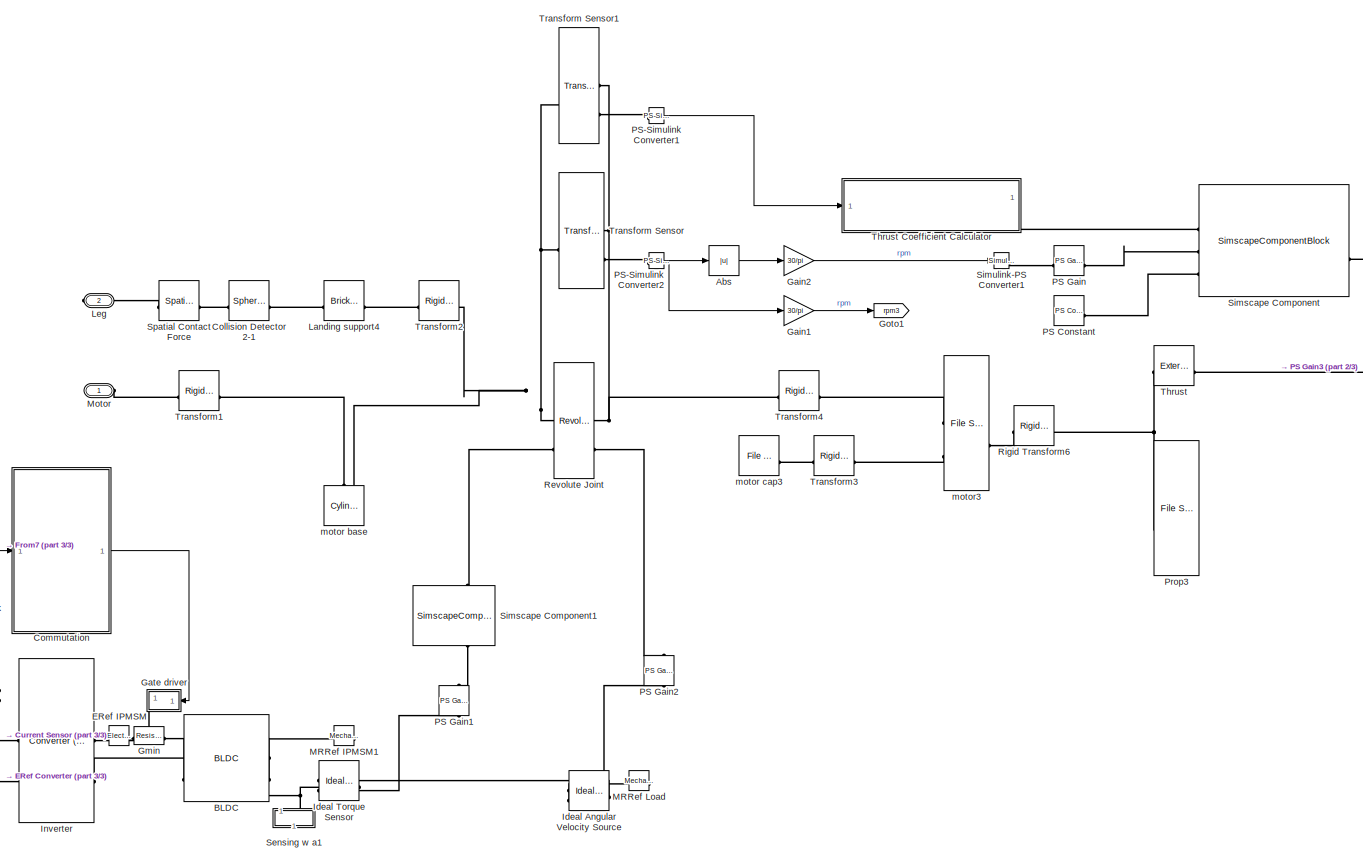
[diagram: Quadcopter/propeller3  - part 1/3, center side, full height]
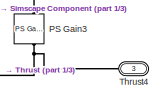
[diagram: Quadcopter/propeller3  - part 2/3, middle right region]
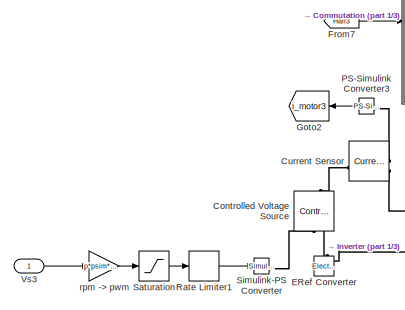
[diagram: Quadcopter/propeller3  - part 3/3, bottom left region]
BLOCK [SubSystem] Quadcopter/propeller3 
BLOCK [Abs] Quadcopter/propeller3 /Abs
  SaturateOnIntegerOverflow = off
BLOCK [Reference] Quadcopter/propeller3 /BLDC  REF=ee_lib/Electromechanical/Permanent Magnet/BLDC
  SourceBlock = ee_lib/Electromechanical/Permanent Magnet/BLDC
  SourceType = BLDC
BLOCK [Reference] Quadcopter/propeller3 /Collision Detector 2-1  REF=sm_lib/Body Elements/Spherical Solid
  NameLocation = top
  SourceBlock = sm_lib/Body Elements/Spherical Solid
  SourceType = Spherical Solid
BLOCK [SubSystem] Quadcopter/propeller3 /Commutation
  NameLocation = top
BLOCK [SubSystem] Quadcopter/propeller3 /Commutation/Commutation
BLOCK [Bias] Quadcopter/propeller3 /Commutation/Commutation/Bias
  Bias = -1
  SaturateOnIntegerOverflow = off
BLOCK [SubSystem] Quadcopter/propeller3 /Commutation/Commutation/Bit concatenate
BLOCK [Gain] Quadcopter/propeller3 /Commutation/Commutation/Bit concatenate/Gain
  Gain = [4 2 1]
  Multiplication = Matrix(K*u)
BLOCK [Sum] Quadcopter/propeller3 /Commutation/Commutation/Bit concatenate/Sum of Elements
  IconShape = rectangular
  Inputs = +
BLOCK [Inport] Quadcopter/propeller3 /Commutation/Commutation/Bit concatenate/u
BLOCK [Outport] Quadcopter/propeller3 /Commutation/Commutation/Bit concatenate/y
  VectorParamsAs1DForOutWhenUnconnected = off
BLOCK [DataTypeConversion] Quadcopter/propeller3 /Commutation/Commutation/Data Type Conversion
  RndMeth = Floor
  SaturateOnIntegerOverflow = off
BLOCK [LookupNDDirect] Quadcopter/propeller3 /Commutation/Commutation/Direct Lookup Table (n-D)1
  InputsSelectThisObjectFromTable = Vector
  Table = [0 1 1 0 0 0;0 0 0 1 1 0;1 0 0 0 1 0;0 1 0 0 0 1;0 0 0 1 0 1;1 0 1 0 0 0]
BLOCK [LookupNDDirect] Quadcopter/propeller3 /Commutation/Commutation/Direct Lookup Table (n-D)2
  InputsSelectThisObjectFromTable = Vector
  Table = [0 0 0 1 1 0;0 1 1 0 0 0;0 1 0 0 0 1;1 0 0 0 1 0;1 0 1 0 0 0;0 0 0 1 0 1]
BLOCK [Inport] Quadcopter/propeller3 /Commutation/Commutation/Hall
  Port = 2
BLOCK [Outport] Quadcopter/propeller3 /Commutation/Commutation/S
  VectorParamsAs1DForOutWhenUnconnected = off
BLOCK [Switch] Quadcopter/propeller3 /Commutation/Commutation/Switch
  Criteria = u2 > Threshold
  InputSameDT = off
  SaturateOnIntegerOverflow = off
BLOCK [Inport] Quadcopter/propeller3 /Commutation/Commutation/dir
BLOCK [Constant] Quadcopter/propeller3 /Commutation/Constant
  Value = -1
BLOCK [Inport] Quadcopter/propeller3 /Commutation/Hall
BLOCK [Outport] Quadcopter/propeller3 /Commutation/S
  VectorParamsAs1DForOutWhenUnconnected = off
BLOCK [UnitDelay] Quadcopter/propeller3 /Commutation/Unit Delay
  HasFrameUpgradeWarning = on
  SampleTime = -1
BLOCK [Reference] Quadcopter/propeller3 /Controlled Voltage Source  REF=fl_lib/Electrical/Electrical Sources/Controlled Voltage
Source
  NameLocation = right
  SourceBlock = fl_lib/Electrical/Electrical Sources/Controlled Voltage\nSource
  SourceType = Controlled Voltage\nSource
BLOCK [Reference] Quadcopter/propeller3 /Current Sensor  REF=fl_lib/Electrical/Electrical Sensors/Current Sensor
  SourceBlock = fl_lib/Electrical/Electrical Sensors/Current Sensor
  SourceType = Current Sensor
BLOCK [Reference] Quadcopter/propeller3 /ERef Converter  REF=fl_lib/Electrical/Electrical Elements/Electrical Reference
  NameLocation = right
  SourceBlock = fl_lib/Electrical/Electrical Elements/Electrical Reference
  SourceType = Electrical Reference
BLOCK [Reference] Quadcopter/propeller3 /ERef IPMSM  REF=fl_lib/Electrical/Electrical Elements/Electrical Reference
  SourceBlock = fl_lib/Electrical/Electrical Elements/Electrical Reference
  SourceType = Electrical Reference
BLOCK [From] Quadcopter/propeller3 /From7
  GotoTag = Hall3
  TagVisibility = global
BLOCK [Gain] Quadcopter/propeller3 /Gain1
  Gain = 30/pi
BLOCK [Gain] Quadcopter/propeller3 /Gain2
  Gain = 30/pi
BLOCK [SubSystem] Quadcopter/propeller3 /Gate driver
  NameLocation = top
BLOCK [Demux] Quadcopter/propeller3 /Gate driver/Demux
  Outputs = 6
BLOCK [PMIOPort] Quadcopter/propeller3 /Gate driver/G
  Side = Right
BLOCK [Inport] Quadcopter/propeller3 /Gate driver/S
BLOCK [Reference] Quadcopter/propeller3 /Gate driver/Simulink-PS Converter1  REF=nesl_utility/Simulink-PS
Converter
  SourceBlock = nesl_utility/Simulink-PS\nConverter
  SourceType = Simulink-PS\nConverter
BLOCK [Reference] Quadcopter/propeller3 /Gate driver/Simulink-PS Converter2  REF=nesl_utility/Simulink-PS
Converter
  SourceBlock = nesl_utility/Simulink-PS\nConverter
  SourceType = Simulink-PS\nConverter
BLOCK [Reference] Quadcopter/propeller3 /Gate driver/Simulink-PS Converter3  REF=nesl_utility/Simulink-PS
Converter
  SourceBlock = nesl_utility/Simulink-PS\nConverter
  SourceType = Simulink-PS\nConverter
BLOCK [Reference] Quadcopter/propeller3 /Gate driver/Simulink-PS Converter4  REF=nesl_utility/Simulink-PS
Converter
  SourceBlock = nesl_utility/Simulink-PS\nConverter
  SourceType = Simulink-PS\nConverter
BLOCK [Reference] Quadcopter/propeller3 /Gate driver/Simulink-PS Converter5  REF=nesl_utility/Simulink-PS
Converter
  SourceBlock = nesl_utility/Simulink-PS\nConverter
  SourceType = Simulink-PS\nConverter
BLOCK [Reference] Quadcopter/propeller3 /Gate driver/Simulink-PS Converter6  REF=nesl_utility/Simulink-PS
Converter
  SourceBlock = nesl_utility/Simulink-PS\nConverter
  SourceType = Simulink-PS\nConverter
BLOCK [Reference] Quadcopter/propeller3 /Gate driver/Six-Pulse Gate Multiplexer  REF=ee_lib/Semiconductors &
Converters/Converters/Six-Pulse Gate
Multiplexer
  SourceBlock = ee_lib/Semiconductors &\nConverters/Converters/Six-Pulse Gate\nMultiplexer
  SourceType = Six-Pulse Gate\nMultiplexer
BLOCK [Reference] Quadcopter/propeller3 /Gmin  REF=fl_lib/Electrical/Electrical Elements/Resistor
  SourceBlock = fl_lib/Electrical/Electrical Elements/Resistor
  SourceType = Resistor
BLOCK [Goto] Quadcopter/propeller3 /Goto1
  GotoTag = rpm3
  TagVisibility = global
BLOCK [Goto] Quadcopter/propeller3 /Goto2
  GotoTag = i_motor3
  TagVisibility = global
BLOCK [Reference] Quadcopter/propeller3 /Ideal Angular Velocity Source  REF=fl_lib/Mechanical/Mechanical Sources/Ideal Angular
Velocity Source
  NameLocation = top
  SourceBlock = fl_lib/Mechanical/Mechanical Sources/Ideal Angular\nVelocity Source
  SourceType = Ideal Angular\nVelocity Source
BLOCK [Reference] Quadcopter/propeller3 /Ideal Torque Sensor  REF=fl_lib/Mechanical/Mechanical Sensors/Ideal Torque Sensor
  SourceBlock = fl_lib/Mechanical/Mechanical Sensors/Ideal Torque Sensor
  SourceType = Ideal Torque Sensor
BLOCK [Reference] Quadcopter/propeller3 /Inverter  REF=ee_lib/Semiconductors &
Converters/Converters/Converter
(Three-Phase)
  SourceBlock = ee_lib/Semiconductors &\nConverters/Converters/Converter\n(Three-Phase)
  SourceType = Converter\n(Three-Phase)
BLOCK [Reference] Quadcopter/propeller3 /Landing support4  REF=sm_lib/Body Elements/Brick Solid
  SourceBlock = sm_lib/Body Elements/Brick Solid
  SourceType = Brick Solid
BLOCK [PMIOPort] Quadcopter/propeller3 /Leg
  Port = 2
  Side = Right
BLOCK [Reference] Quadcopter/propeller3 /MRRef IPMSM1  REF=fl_lib/Mechanical/Rotational Elements/Mechanical
Rotational Reference
  NameLocation = top
  SourceBlock = fl_lib/Mechanical/Rotational Elements/Mechanical\nRotational Reference
  SourceType = Mechanical\nRotational Reference
BLOCK [Reference] Quadcopter/propeller3 /MRRef Load  REF=fl_lib/Mechanical/Rotational Elements/Mechanical
Rotational Reference
  NameLocation = top
  SourceBlock = fl_lib/Mechanical/Rotational Elements/Mechanical\nRotational Reference
  SourceType = Mechanical\nRotational Reference
BLOCK [PMIOPort] Quadcopter/propeller3 /Motor
  Side = Left
BLOCK [Reference] Quadcopter/propeller3 /PS Constant  REF=fl_lib/Physical Signals/Sources/PS Constant
  SourceBlock = fl_lib/Physical Signals/Sources/PS Constant
  SourceType = PS Constant
BLOCK [Reference] Quadcopter/propeller3 /PS Gain  REF=fl_lib/Physical Signals/Functions/PS Gain
  SourceBlock = fl_lib/Physical Signals/Functions/PS Gain
  SourceType = PS Gain
BLOCK [Reference] Quadcopter/propeller3 /PS Gain1  REF=fl_lib/Physical Signals/Functions/PS Gain
  NameLocation = right
  SourceBlock = fl_lib/Physical Signals/Functions/PS Gain
  SourceType = PS Gain
BLOCK [Reference] Quadcopter/propeller3 /PS Gain2  REF=fl_lib/Physical Signals/Functions/PS Gain
  NameLocation = left
  SourceBlock = fl_lib/Physical Signals/Functions/PS Gain
  SourceType = PS Gain
BLOCK [Reference] Quadcopter/propeller3 /PS Gain3  REF=fl_lib/Physical Signals/Functions/PS Gain
  NameLocation = left
  SourceBlock = fl_lib/Physical Signals/Functions/PS Gain
  SourceType = PS Gain
BLOCK [Reference] Quadcopter/propeller3 /PS-Simulink Converter1  REF=nesl_utility/PS-Simulink
Converter
  SourceBlock = nesl_utility/PS-Simulink\nConverter
  SourceType = PS-Simulink\nConverter
BLOCK [Reference] Quadcopter/propeller3 /PS-Simulink Converter2  REF=nesl_utility/PS-Simulink
Converter
  SourceBlock = nesl_utility/PS-Simulink\nConverter
  SourceType = PS-Simulink\nConverter
BLOCK [Reference] Quadcopter/propeller3 /PS-Simulink Converter3  REF=nesl_utility/PS-Simulink
Converter
  SourceBlock = nesl_utility/PS-Simulink\nConverter
  SourceType = PS-Simulink\nConverter
BLOCK [Reference] Quadcopter/propeller3 /Prop3  REF=sm_lib/Body Elements/File Solid
  SourceBlock = sm_lib/Body Elements/File Solid
  SourceType = File Solid
BLOCK [RateLimiter] Quadcopter/propeller3 /Rate Limiter1
  FallingSlewLimit = -Tmax*(60/2/pi)/Jm/6
  RisingSlewLimit = Tmax*(60/2/pi)/Jm/6
  SampleTimeMode = inherited
BLOCK [Reference] Quadcopter/propeller3 /Revolute Joint  REF=sm_lib/Joints/Revolute Joint
  SourceBlock = sm_lib/Joints/Revolute Joint
  SourceType = Revolute Joint
BLOCK [Reference] Quadcopter/propeller3 /Rigid Transform6  REF=sm_lib/Frames and
Transforms/Rigid
Transform
  SourceBlock = sm_lib/Frames and\nTransforms/Rigid\nTransform
  SourceType = Rigid\nTransform
BLOCK [Saturate] Quadcopter/propeller3 /Saturation
  LowerLimit = 0
  UpperLimit = Vdc
BLOCK [SubSystem] Quadcopter/propeller3 /Sensing w a1
  NameLocation = left
BLOCK [PMIOPort] Quadcopter/propeller3 /Sensing w a1/Connection Port
  NameLocation = top
  Port = 2
  Side = Right
BLOCK [Goto] Quadcopter/propeller3 /Sensing w a1/Goto1
  GotoTag = Hall3
  TagVisibility = global
BLOCK [Goto] Quadcopter/propeller3 /Sensing w a1/Goto2
  GotoTag = w3
  TagVisibility = global
BLOCK [SubSystem] Quadcopter/propeller3 /Sensing w a1/Hall sensor
BLOCK [Constant] Quadcopter/propeller3 /Sensing w a1/Hall sensor/Constant
  Value = -60
BLOCK [Constant] Quadcopter/propeller3 /Sensing w a1/Hall sensor/Constant1
  Value = 120
BLOCK [Constant] Quadcopter/propeller3 /Sensing w a1/Hall sensor/Constant2
  Value = 60
BLOCK [Constant] Quadcopter/propeller3 /Sensing w a1/Hall sensor/Constant3
  Value = -120
BLOCK [Constant] Quadcopter/propeller3 /Sensing w a1/Hall sensor/Constant4
  Value = -180
BLOCK [Constant] Quadcopter/propeller3 /Sensing w a1/Hall sensor/Constant5
  Value = 0
BLOCK [Outport] Quadcopter/propeller3 /Sensing w a1/Hall sensor/Hall
  VectorParamsAs1DForOutWhenUnconnected = off
BLOCK [Logic] Quadcopter/propeller3 /Sensing w a1/Hall sensor/Logical Operator
  AllPortsSameDT = off
  OutDataTypeStr = boolean
BLOCK [Logic] Quadcopter/propeller3 /Sensing w a1/Hall sensor/Logical Operator1
  AllPortsSameDT = off
  Operator = OR
  OutDataTypeStr = boolean
BLOCK [Logic] Quadcopter/propeller3 /Sensing w a1/Hall sensor/Logical Operator2
  AllPortsSameDT = off
  OutDataTypeStr = boolean
BLOCK [Mux] Quadcopter/propeller3 /Sensing w a1/Hall sensor/Mux
  DisplayOption = bar
  Inputs = 3
BLOCK [RelationalOperator] Quadcopter/propeller3 /Sensing w a1/Hall sensor/Relational Operator1
  Operator = <=
BLOCK [RelationalOperator] Quadcopter/propeller3 /Sensing w a1/Hall sensor/Relational Operator2
BLOCK [RelationalOperator] Quadcopter/propeller3 /Sensing w a1/Hall sensor/Relational Operator3
  Operator = <=
BLOCK [RelationalOperator] Quadcopter/propeller3 /Sensing w a1/Hall sensor/Relational Operator4
BLOCK [RelationalOperator] Quadcopter/propeller3 /Sensing w a1/Hall sensor/Relational Operator5
  Operator = <=
BLOCK [RelationalOperator] Quadcopter/propeller3 /Sensing w a1/Hall sensor/Relational Operator6
BLOCK [SubSystem] Quadcopter/propeller3 /Sensing w a1/Hall sensor/Subsystem
BLOCK [Trigonometry] Quadcopter/propeller3 /Sensing w a1/Hall sensor/Subsystem/Trigonometric Function
  Operator = sincos
BLOCK [Trigonometry] Quadcopter/propeller3 /Sensing w a1/Hall sensor/Subsystem/Trigonometric Function2
  Operator = atan2
BLOCK [Outport] Quadcopter/propeller3 /Sensing w a1/Hall sensor/Subsystem/deg
  VectorParamsAs1DForOutWhenUnconnected = off
BLOCK [Gain] Quadcopter/propeller3 /Sensing w a1/Hall sensor/Subsystem/mech->elec
  Gain = p
BLOCK [Gain] Quadcopter/propeller3 /Sensing w a1/Hall sensor/Subsystem/rad->deg
  Gain = 180/pi
  OutDataTypeStr = Inherit: Same as input
  ParamDataTypeStr = Inherit: Same as input
  SaturateOnIntegerOverflow = on
BLOCK [Inport] Quadcopter/propeller3 /Sensing w a1/Hall sensor/Subsystem/theta
BLOCK [Inport] Quadcopter/propeller3 /Sensing w a1/Hall sensor/theta
BLOCK [Reference] Quadcopter/propeller3 /Sensing w a1/MRRef  REF=fl_lib/Mechanical/Rotational Elements/Mechanical
Rotational Reference
  NameLocation = left
  SourceBlock = fl_lib/Mechanical/Rotational Elements/Mechanical\nRotational Reference
  SourceType = Mechanical\nRotational Reference
BLOCK [Reference] Quadcopter/propeller3 /Sensing w a1/Motion Sensor  REF=fl_lib/Mechanical/Mechanical Sensors/Ideal Rotational
Motion Sensor
  NameLocation = right
  SourceBlock = fl_lib/Mechanical/Mechanical Sensors/Ideal Rotational\nMotion Sensor
  SourceType = Ideal Rotational\nMotion Sensor
BLOCK [Reference] Quadcopter/propeller3 /Sensing w a1/PS-Simulink Converter1  REF=nesl_utility/PS-Simulink
Converter
  SourceBlock = nesl_utility/PS-Simulink\nConverter
  SourceType = PS-Simulink\nConverter
BLOCK [Reference] Quadcopter/propeller3 /Sensing w a1/PS-Simulink Converter2  REF=nesl_utility/PS-Simulink
Converter
  SourceBlock = nesl_utility/PS-Simulink\nConverter
  SourceType = PS-Simulink\nConverter
BLOCK [PMIOPort] Quadcopter/propeller3 /Sensing w a1/R
  NameLocation = right
  Side = Left
BLOCK [SimscapeComponentBlock] Quadcopter/propeller3 /Simscape Component
  ClassName = PropellerThrust
  ComponentPath = PropellerThrust
  ComponentVariantNames = ["PropellerThrust"]
  ComponentVariants = ["PropellerThrust"]
  CopyFcn = simscape.engine.sli.internal.componentblockcallback(gcbh,'COPY')
  D = 0.254
  D_conf = compiletime
  D_unit = m
  MaskDisplay = color('red');plot([0 1 1 0 0],[0 0 1 1 0]);plot([0.7,1],[1,0.7]);plot(-2,-1.75);plot(3, 1);disp('\n.ssc\nUnresolved')
  MaskType = Propeller Thrust Characteristic Calculator
  PreCopyFcn = simscape.engine.sli.internal.componentblockcallback(gcbh,'PRECOPY')
  PreDeleteFcn = simscape.engine.sli.internal.componentblockcallback(gcbh,'PREDELETE')
  SchemaVersion = 1
  SourceFile = PropellerThrust
BLOCK [SimscapeComponentBlock] Quadcopter/propeller3 /Simscape Component1
  ClassName = fault_injection
  ComponentPath = fault_injection
  ComponentVariantNames = ["fault_injection"]
  ComponentVariants = ["fault_injection"]
  CopyFcn = simscape.engine.sli.internal.componentblockcallback(gcbh,'COPY')
  InternalSimscapePortConfiguration = {"Bottom":[],"Left":[{"id":"I","label":"","type":"input"}],"Right":[{"id":"O","label":"","type":"output"}],"Top":[]}
  MaskDisplay = color('red');plot([0 1 1 0 0],[0 0 1 1 0]);plot([0.7,1],[1,0.7]);plot(-2,-1.75);plot(3, 1);disp('\n.ssc\nUnresolved')
  MaskType = Fault Injection
  NameLocation = right
  PreCopyFcn = simscape.engine.sli.internal.componentblockcallback(gcbh,'PRECOPY')
  PreDeleteFcn = simscape.engine.sli.internal.componentblockcallback(gcbh,'PREDELETE')
  SchemaVersion = 1
  SourceFile = fault_injection
  enable_faults = simscape.enum.onoff.off
  enable_faults_conf = compiletime
  enable_faults_unit = 1
  external_fault = simscape.enum.onoff.off
  external_fault_conf = compiletime
  external_fault_unit = 1
  fault_time = tFault3
  fault_time_conf = compiletime
  fault_time_unit = s
  faulted_torque = torqueFault3
  faulted_torque_conf = compiletime
  faulted_torque_unit = 1
  temporal_fault = simscape.enum.onoff.off
  temporal_fault_conf = compiletime
  temporal_fault_unit = 1
BLOCK [Reference] Quadcopter/propeller3 /Simulink-PS Converter  REF=nesl_utility/Simulink-PS
Converter
  SourceBlock = nesl_utility/Simulink-PS\nConverter
  SourceType = Simulink-PS\nConverter
BLOCK [Reference] Quadcopter/propeller3 /Simulink-PS Converter1  REF=nesl_utility/Simulink-PS
Converter
  SourceBlock = nesl_utility/Simulink-PS\nConverter
  SourceType = Simulink-PS\nConverter
BLOCK [Reference] Quadcopter/propeller3 /Spatial Contact Force  REF=sm_lib/Forces and
Torques/Spatial
Contact Force
  NameLocation = top
  SourceBlock = sm_lib/Forces and\nTorques/Spatial\nContact Force
  SourceType = Spatial\nContact Force
BLOCK [Reference] Quadcopter/propeller3 /Thrust  REF=sm_lib/Forces and
Torques/External Force
and Torque
  SourceBlock = sm_lib/Forces and\nTorques/External Force\nand Torque
  SourceType = External Force\nand Torque
BLOCK [SubSystem] Quadcopter/propeller3 /Thrust Coefficient Calculator
BLOCK [Sum] Quadcopter/propeller3 /Thrust Coefficient Calculator/Add
  IconShape = rectangular
  Inputs = +++
BLOCK [Constant] Quadcopter/propeller3 /Thrust Coefficient Calculator/Constant
  Value = 0.1072
BLOCK [PMIOPort] Quadcopter/propeller3 /Thrust Coefficient Calculator/Ct
  NameLocation = top
  Side = Right
BLOCK [Gain] Quadcopter/propeller3 /Thrust Coefficient Calculator/Gain1
  Gain = -0.008716
BLOCK [Gain] Quadcopter/propeller3 /Thrust Coefficient Calculator/Gain4
  Gain = -0.001589
BLOCK [Math] Quadcopter/propeller3 /Thrust Coefficient Calculator/Math Function
  Operator = square
BLOCK [Reference] Quadcopter/propeller3 /Thrust Coefficient Calculator/Simulink-PS Converter  REF=nesl_utility/Simulink-PS
Converter
  SourceBlock = nesl_utility/Simulink-PS\nConverter
  SourceType = Simulink-PS\nConverter
BLOCK [Inport] Quadcopter/propeller3 /Thrust Coefficient Calculator/m//s
BLOCK [PMIOPort] Quadcopter/propeller3 /Thrust4
  Port = 3
  Side = Left
BLOCK [Reference] Quadcopter/propeller3 /Transform Sensor  REF=sm_lib/Frames and
Transforms/Transform
Sensor
  SourceBlock = sm_lib/Frames and\nTransforms/Transform\nSensor
  SourceType = Transform\nSensor
BLOCK [Reference] Quadcopter/propeller3 /Transform Sensor1  REF=sm_lib/Frames and
Transforms/Transform
Sensor
  SourceBlock = sm_lib/Frames and\nTransforms/Transform\nSensor
  SourceType = Transform\nSensor
BLOCK [Reference] Quadcopter/propeller3 /Transform1  REF=sm_lib/Frames and
Transforms/Rigid
Transform
  SourceBlock = sm_lib/Frames and\nTransforms/Rigid\nTransform
  SourceType = Rigid\nTransform
BLOCK [Reference] Quadcopter/propeller3 /Transform2  REF=sm_lib/Frames and
Transforms/Rigid
Transform
  SourceBlock = sm_lib/Frames and\nTransforms/Rigid\nTransform
  SourceType = Rigid\nTransform
BLOCK [Reference] Quadcopter/propeller3 /Transform3  REF=sm_lib/Frames and
Transforms/Rigid
Transform
  SourceBlock = sm_lib/Frames and\nTransforms/Rigid\nTransform
  SourceType = Rigid\nTransform
BLOCK [Reference] Quadcopter/propeller3 /Transform4  REF=sm_lib/Frames and
Transforms/Rigid
Transform
  SourceBlock = sm_lib/Frames and\nTransforms/Rigid\nTransform
  SourceType = Rigid\nTransform
BLOCK [Inport] Quadcopter/propeller3 /Vs3
BLOCK [Reference] Quadcopter/propeller3 /motor base  REF=sm_lib/Body Elements/Cylindrical Solid
  NameLocation = right
  SourceBlock = sm_lib/Body Elements/Cylindrical Solid
  SourceType = Cylindrical Solid
BLOCK [Reference] Quadcopter/propeller3 /motor cap3  REF=sm_lib/Body Elements/File Solid
  SourceBlock = sm_lib/Body Elements/File Solid
  SourceType = File Solid
BLOCK [Reference] Quadcopter/propeller3 /motor3  REF=sm_lib/Body Elements/File Solid
  SourceBlock = sm_lib/Body Elements/File Solid
  SourceType = File Solid
BLOCK [Gain] Quadcopter/propeller3 /rpm -> pwm
  Gain = p*psim*2*2*pi/60
BLOCK [SubSystem] Quadcopter/propeller4
BLOCK [Abs] Quadcopter/propeller4/Abs
  SaturateOnIntegerOverflow = off
BLOCK [Reference] Quadcopter/propeller4/BLDC  REF=ee_lib/Electromechanical/Permanent Magnet/BLDC
  SourceBlock = ee_lib/Electromechanical/Permanent Magnet/BLDC
  SourceType = BLDC
BLOCK [Reference] Quadcopter/propeller4/Collision Detector 2-1  REF=sm_lib/Body Elements/Spherical Solid
  NameLocation = top
  SourceBlock = sm_lib/Body Elements/Spherical Solid
  SourceType = Spherical Solid
BLOCK [SubSystem] Quadcopter/propeller4/Commutation
  NameLocation = top
BLOCK [SubSystem] Quadcopter/propeller4/Commutation/Commutation
BLOCK [Bias] Quadcopter/propeller4/Commutation/Commutation/Bias
  Bias = -1
  SaturateOnIntegerOverflow = off
BLOCK [SubSystem] Quadcopter/propeller4/Commutation/Commutation/Bit concatenate
BLOCK [Gain] Quadcopter/propeller4/Commutation/Commutation/Bit concatenate/Gain
  Gain = [4 2 1]
  Multiplication = Matrix(K*u)
BLOCK [Sum] Quadcopter/propeller4/Commutation/Commutation/Bit concatenate/Sum of Elements
  IconShape = rectangular
  Inputs = +
BLOCK [Inport] Quadcopter/propeller4/Commutation/Commutation/Bit concatenate/u
BLOCK [Outport] Quadcopter/propeller4/Commutation/Commutation/Bit concatenate/y
  VectorParamsAs1DForOutWhenUnconnected = off
BLOCK [DataTypeConversion] Quadcopter/propeller4/Commutation/Commutation/Data Type Conversion
  RndMeth = Floor
  SaturateOnIntegerOverflow = off
BLOCK [LookupNDDirect] Quadcopter/propeller4/Commutation/Commutation/Direct Lookup Table (n-D)1
  InputsSelectThisObjectFromTable = Vector
  Table = [0 1 1 0 0 0;0 0 0 1 1 0;1 0 0 0 1 0;0 1 0 0 0 1;0 0 0 1 0 1;1 0 1 0 0 0]
BLOCK [LookupNDDirect] Quadcopter/propeller4/Commutation/Commutation/Direct Lookup Table (n-D)2
  InputsSelectThisObjectFromTable = Vector
  Table = [0 0 0 1 1 0;0 1 1 0 0 0;0 1 0 0 0 1;1 0 0 0 1 0;1 0 1 0 0 0;0 0 0 1 0 1]
BLOCK [Inport] Quadcopter/propeller4/Commutation/Commutation/Hall
  Port = 2
BLOCK [Outport] Quadcopter/propeller4/Commutation/Commutation/S
  VectorParamsAs1DForOutWhenUnconnected = off
BLOCK [Switch] Quadcopter/propeller4/Commutation/Commutation/Switch
  Criteria = u2 > Threshold
  InputSameDT = off
  SaturateOnIntegerOverflow = off
BLOCK [Inport] Quadcopter/propeller4/Commutation/Commutation/dir
BLOCK [Constant] Quadcopter/propeller4/Commutation/Constant
BLOCK [Inport] Quadcopter/propeller4/Commutation/Hall
BLOCK [Outport] Quadcopter/propeller4/Commutation/S
  VectorParamsAs1DForOutWhenUnconnected = off
BLOCK [UnitDelay] Quadcopter/propeller4/Commutation/Unit Delay
  HasFrameUpgradeWarning = on
  SampleTime = -1
BLOCK [Reference] Quadcopter/propeller4/Controlled Voltage Source  REF=fl_lib/Electrical/Electrical Sources/Controlled Voltage
Source
  NameLocation = right
  SourceBlock = fl_lib/Electrical/Electrical Sources/Controlled Voltage\nSource
  SourceType = Controlled Voltage\nSource
BLOCK [Reference] Quadcopter/propeller4/Current Sensor  REF=fl_lib/Electrical/Electrical Sensors/Current Sensor
  SourceBlock = fl_lib/Electrical/Electrical Sensors/Current Sensor
  SourceType = Current Sensor
BLOCK [Reference] Quadcopter/propeller4/ERef Converter  REF=fl_lib/Electrical/Electrical Elements/Electrical Reference
  NameLocation = right
  SourceBlock = fl_lib/Electrical/Electrical Elements/Electrical Reference
  SourceType = Electrical Reference
BLOCK [Reference] Quadcopter/propeller4/ERef IPMSM  REF=fl_lib/Electrical/Electrical Elements/Electrical Reference
  SourceBlock = fl_lib/Electrical/Electrical Elements/Electrical Reference
  SourceType = Electrical Reference
BLOCK [From] Quadcopter/propeller4/From7
  GotoTag = Hall4
  TagVisibility = global
BLOCK [Gain] Quadcopter/propeller4/Gain1
  Gain = 30/pi
BLOCK [Gain] Quadcopter/propeller4/Gain2
  Gain = 30/pi
BLOCK [SubSystem] Quadcopter/propeller4/Gate driver
  NameLocation = top
BLOCK [Demux] Quadcopter/propeller4/Gate driver/Demux
  Outputs = 6
BLOCK [PMIOPort] Quadcopter/propeller4/Gate driver/G
  Side = Right
BLOCK [Inport] Quadcopter/propeller4/Gate driver/S
BLOCK [Reference] Quadcopter/propeller4/Gate driver/Simulink-PS Converter1  REF=nesl_utility/Simulink-PS
Converter
  SourceBlock = nesl_utility/Simulink-PS\nConverter
  SourceType = Simulink-PS\nConverter
BLOCK [Reference] Quadcopter/propeller4/Gate driver/Simulink-PS Converter2  REF=nesl_utility/Simulink-PS
Converter
  SourceBlock = nesl_utility/Simulink-PS\nConverter
  SourceType = Simulink-PS\nConverter
BLOCK [Reference] Quadcopter/propeller4/Gate driver/Simulink-PS Converter3  REF=nesl_utility/Simulink-PS
Converter
  SourceBlock = nesl_utility/Simulink-PS\nConverter
  SourceType = Simulink-PS\nConverter
BLOCK [Reference] Quadcopter/propeller4/Gate driver/Simulink-PS Converter4  REF=nesl_utility/Simulink-PS
Converter
  SourceBlock = nesl_utility/Simulink-PS\nConverter
  SourceType = Simulink-PS\nConverter
BLOCK [Reference] Quadcopter/propeller4/Gate driver/Simulink-PS Converter5  REF=nesl_utility/Simulink-PS
Converter
  SourceBlock = nesl_utility/Simulink-PS\nConverter
  SourceType = Simulink-PS\nConverter
BLOCK [Reference] Quadcopter/propeller4/Gate driver/Simulink-PS Converter6  REF=nesl_utility/Simulink-PS
Converter
  SourceBlock = nesl_utility/Simulink-PS\nConverter
  SourceType = Simulink-PS\nConverter
BLOCK [Reference] Quadcopter/propeller4/Gate driver/Six-Pulse Gate Multiplexer  REF=ee_lib/Semiconductors &
Converters/Converters/Six-Pulse Gate
Multiplexer
  SourceBlock = ee_lib/Semiconductors &\nConverters/Converters/Six-Pulse Gate\nMultiplexer
  SourceType = Six-Pulse Gate\nMultiplexer
BLOCK [Reference] Quadcopter/propeller4/Gmin  REF=fl_lib/Electrical/Electrical Elements/Resistor
  SourceBlock = fl_lib/Electrical/Electrical Elements/Resistor
  SourceType = Resistor
BLOCK [Goto] Quadcopter/propeller4/Goto1
  GotoTag = rpm4
  TagVisibility = global
BLOCK [Goto] Quadcopter/propeller4/Goto2
  GotoTag = i_motor4
  TagVisibility = global
BLOCK [Reference] Quadcopter/propeller4/Ideal Angular Velocity Source  REF=fl_lib/Mechanical/Mechanical Sources/Ideal Angular
Velocity Source
  NameLocation = top
  SourceBlock = fl_lib/Mechanical/Mechanical Sources/Ideal Angular\nVelocity Source
  SourceType = Ideal Angular\nVelocity Source
BLOCK [Reference] Quadcopter/propeller4/Ideal Torque Sensor  REF=fl_lib/Mechanical/Mechanical Sensors/Ideal Torque Sensor
  SourceBlock = fl_lib/Mechanical/Mechanical Sensors/Ideal Torque Sensor
  SourceType = Ideal Torque Sensor
BLOCK [Reference] Quadcopter/propeller4/Inverter  REF=ee_lib/Semiconductors &
Converters/Converters/Converter
(Three-Phase)
  SourceBlock = ee_lib/Semiconductors &\nConverters/Converters/Converter\n(Three-Phase)
  SourceType = Converter\n(Three-Phase)
BLOCK [Reference] Quadcopter/propeller4/Landing support4  REF=sm_lib/Body Elements/Brick Solid
  SourceBlock = sm_lib/Body Elements/Brick Solid
  SourceType = Brick Solid
BLOCK [PMIOPort] Quadcopter/propeller4/Leg
  Port = 2
  Side = Right
BLOCK [Reference] Quadcopter/propeller4/MRRef IPMSM1  REF=fl_lib/Mechanical/Rotational Elements/Mechanical
Rotational Reference
  NameLocation = top
  SourceBlock = fl_lib/Mechanical/Rotational Elements/Mechanical\nRotational Reference
  SourceType = Mechanical\nRotational Reference
BLOCK [Reference] Quadcopter/propeller4/MRRef Load  REF=fl_lib/Mechanical/Rotational Elements/Mechanical
Rotational Reference
  NameLocation = top
  SourceBlock = fl_lib/Mechanical/Rotational Elements/Mechanical\nRotational Reference
  SourceType = Mechanical\nRotational Reference
BLOCK [PMIOPort] Quadcopter/propeller4/Motor
  Side = Left
BLOCK [Reference] Quadcopter/propeller4/PS Constant  REF=fl_lib/Physical Signals/Sources/PS Constant
  SourceBlock = fl_lib/Physical Signals/Sources/PS Constant
  SourceType = PS Constant
BLOCK [Reference] Quadcopter/propeller4/PS Gain  REF=fl_lib/Physical Signals/Functions/PS Gain
  SourceBlock = fl_lib/Physical Signals/Functions/PS Gain
  SourceType = PS Gain
BLOCK [Reference] Quadcopter/propeller4/PS Gain3  REF=fl_lib/Physical Signals/Functions/PS Gain
  NameLocation = left
  SourceBlock = fl_lib/Physical Signals/Functions/PS Gain
  SourceType = PS Gain
BLOCK [Reference] Quadcopter/propeller4/PS-Simulink Converter1  REF=nesl_utility/PS-Simulink
Converter
  SourceBlock = nesl_utility/PS-Simulink\nConverter
  SourceType = PS-Simulink\nConverter
BLOCK [Reference] Quadcopter/propeller4/PS-Simulink Converter2  REF=nesl_utility/PS-Simulink
Converter
  SourceBlock = nesl_utility/PS-Simulink\nConverter
  SourceType = PS-Simulink\nConverter
BLOCK [Reference] Quadcopter/propeller4/PS-Simulink Converter3  REF=nesl_utility/PS-Simulink
Converter
  SourceBlock = nesl_utility/PS-Simulink\nConverter
  SourceType = PS-Simulink\nConverter
BLOCK [Reference] Quadcopter/propeller4/Prop4   REF=sm_lib/Body Elements/File Solid
  SourceBlock = sm_lib/Body Elements/File Solid
  SourceType = File Solid
BLOCK [RateLimiter] Quadcopter/propeller4/Rate Limiter1
  FallingSlewLimit = -Tmax*(60/2/pi)/Jm/6
  RisingSlewLimit = Tmax*(60/2/pi)/Jm/6
  SampleTimeMode = inherited
BLOCK [Reference] Quadcopter/propeller4/Revolute Joint  REF=sm_lib/Joints/Revolute Joint
  SourceBlock = sm_lib/Joints/Revolute Joint
  SourceType = Revolute Joint
BLOCK [Reference] Quadcopter/propeller4/Rigid Transform6  REF=sm_lib/Frames and
Transforms/Rigid
Transform
  SourceBlock = sm_lib/Frames and\nTransforms/Rigid\nTransform
  SourceType = Rigid\nTransform
BLOCK [Saturate] Quadcopter/propeller4/Saturation
  LowerLimit = 0
  UpperLimit = Vdc
BLOCK [SubSystem] Quadcopter/propeller4/Sensing w a1
  NameLocation = left
BLOCK [PMIOPort] Quadcopter/propeller4/Sensing w a1/Connection Port
  NameLocation = top
  Port = 2
  Side = Right
BLOCK [Goto] Quadcopter/propeller4/Sensing w a1/Goto1
  GotoTag = Hall4
  TagVisibility = global
BLOCK [Goto] Quadcopter/propeller4/Sensing w a1/Goto2
  GotoTag = w4
  TagVisibility = global
BLOCK [SubSystem] Quadcopter/propeller4/Sensing w a1/Hall sensor
BLOCK [Constant] Quadcopter/propeller4/Sensing w a1/Hall sensor/Constant
  Value = -60
BLOCK [Constant] Quadcopter/propeller4/Sensing w a1/Hall sensor/Constant1
  Value = 120
BLOCK [Constant] Quadcopter/propeller4/Sensing w a1/Hall sensor/Constant2
  Value = 60
BLOCK [Constant] Quadcopter/propeller4/Sensing w a1/Hall sensor/Constant3
  Value = -120
BLOCK [Constant] Quadcopter/propeller4/Sensing w a1/Hall sensor/Constant4
  Value = -180
BLOCK [Constant] Quadcopter/propeller4/Sensing w a1/Hall sensor/Constant5
  Value = 0
BLOCK [Outport] Quadcopter/propeller4/Sensing w a1/Hall sensor/Hall
  VectorParamsAs1DForOutWhenUnconnected = off
BLOCK [Logic] Quadcopter/propeller4/Sensing w a1/Hall sensor/Logical Operator
  AllPortsSameDT = off
  OutDataTypeStr = boolean
BLOCK [Logic] Quadcopter/propeller4/Sensing w a1/Hall sensor/Logical Operator1
  AllPortsSameDT = off
  Operator = OR
  OutDataTypeStr = boolean
BLOCK [Logic] Quadcopter/propeller4/Sensing w a1/Hall sensor/Logical Operator2
  AllPortsSameDT = off
  OutDataTypeStr = boolean
BLOCK [Mux] Quadcopter/propeller4/Sensing w a1/Hall sensor/Mux
  DisplayOption = bar
  Inputs = 3
BLOCK [RelationalOperator] Quadcopter/propeller4/Sensing w a1/Hall sensor/Relational Operator1
  Operator = <=
BLOCK [RelationalOperator] Quadcopter/propeller4/Sensing w a1/Hall sensor/Relational Operator2
BLOCK [RelationalOperator] Quadcopter/propeller4/Sensing w a1/Hall sensor/Relational Operator3
  Operator = <=
BLOCK [RelationalOperator] Quadcopter/propeller4/Sensing w a1/Hall sensor/Relational Operator4
BLOCK [RelationalOperator] Quadcopter/propeller4/Sensing w a1/Hall sensor/Relational Operator5
  Operator = <=
BLOCK [RelationalOperator] Quadcopter/propeller4/Sensing w a1/Hall sensor/Relational Operator6
BLOCK [SubSystem] Quadcopter/propeller4/Sensing w a1/Hall sensor/Subsystem
BLOCK [Trigonometry] Quadcopter/propeller4/Sensing w a1/Hall sensor/Subsystem/Trigonometric Function
  Operator = sincos
BLOCK [Trigonometry] Quadcopter/propeller4/Sensing w a1/Hall sensor/Subsystem/Trigonometric Function2
  Operator = atan2
BLOCK [Outport] Quadcopter/propeller4/Sensing w a1/Hall sensor/Subsystem/deg
  VectorParamsAs1DForOutWhenUnconnected = off
BLOCK [Gain] Quadcopter/propeller4/Sensing w a1/Hall sensor/Subsystem/mech->elec
  Gain = p
BLOCK [Gain] Quadcopter/propeller4/Sensing w a1/Hall sensor/Subsystem/rad->deg
  Gain = 180/pi
  OutDataTypeStr = Inherit: Same as input
  ParamDataTypeStr = Inherit: Same as input
  SaturateOnIntegerOverflow = on
BLOCK [Inport] Quadcopter/propeller4/Sensing w a1/Hall sensor/Subsystem/theta
BLOCK [Inport] Quadcopter/propeller4/Sensing w a1/Hall sensor/theta
BLOCK [Reference] Quadcopter/propeller4/Sensing w a1/MRRef  REF=fl_lib/Mechanical/Rotational Elements/Mechanical
Rotational Reference
  NameLocation = left
  SourceBlock = fl_lib/Mechanical/Rotational Elements/Mechanical\nRotational Reference
  SourceType = Mechanical\nRotational Reference
BLOCK [Reference] Quadcopter/propeller4/Sensing w a1/Motion Sensor  REF=fl_lib/Mechanical/Mechanical Sensors/Ideal Rotational
Motion Sensor
  NameLocation = right
  SourceBlock = fl_lib/Mechanical/Mechanical Sensors/Ideal Rotational\nMotion Sensor
  SourceType = Ideal Rotational\nMotion Sensor
BLOCK [Reference] Quadcopter/propeller4/Sensing w a1/PS-Simulink Converter1  REF=nesl_utility/PS-Simulink
Converter
  SourceBlock = nesl_utility/PS-Simulink\nConverter
  SourceType = PS-Simulink\nConverter
BLOCK [Reference] Quadcopter/propeller4/Sensing w a1/PS-Simulink Converter2  REF=nesl_utility/PS-Simulink
Converter
  SourceBlock = nesl_utility/PS-Simulink\nConverter
  SourceType = PS-Simulink\nConverter
BLOCK [PMIOPort] Quadcopter/propeller4/Sensing w a1/R
  NameLocation = right
  Side = Left
BLOCK [SimscapeComponentBlock] Quadcopter/propeller4/Simscape Component
  ClassName = PropellerThrust
  ComponentPath = PropellerThrust
  ComponentVariantNames = ["PropellerThrust"]
  ComponentVariants = ["PropellerThrust"]
  CopyFcn = simscape.engine.sli.internal.componentblockcallback(gcbh,'COPY')
  D = 0.254
  D_conf = compiletime
  D_unit = m
  MaskDisplay = color('red');plot([0 1 1 0 0],[0 0 1 1 0]);plot([0.7,1],[1,0.7]);plot(-2,-1.75);plot(3, 1);disp('\n.ssc\nUnresolved')
  MaskType = Propeller Thrust Characteristic Calculator
  PreCopyFcn = simscape.engine.sli.internal.componentblockcallback(gcbh,'PRECOPY')
  PreDeleteFcn = simscape.engine.sli.internal.componentblockcallback(gcbh,'PREDELETE')
  SchemaVersion = 1
  SourceFile = PropellerThrust
BLOCK [SimscapeComponentBlock] Quadcopter/propeller4/Simscape Component1
  ClassName = fault_injection
  ComponentPath = fault_injection
  ComponentVariantNames = ["fault_injection"]
  ComponentVariants = ["fault_injection"]
  CopyFcn = simscape.engine.sli.internal.componentblockcallback(gcbh,'COPY')
  InternalSimscapePortConfiguration = {"Bottom":[],"Left":[{"id":"I","label":"","type":"input"}],"Right":[{"id":"O","label":"","type":"output"}],"Top":[]}
  MaskDisplay = color('red');plot([0 1 1 0 0],[0 0 1 1 0]);plot([0.7,1],[1,0.7]);plot(-2,-1.75);plot(3, 1);disp('\n.ssc\nUnresolved')
  MaskType = Fault Injection
  NameLocation = right
  PreCopyFcn = simscape.engine.sli.internal.componentblockcallback(gcbh,'PRECOPY')
  PreDeleteFcn = simscape.engine.sli.internal.componentblockcallback(gcbh,'PREDELETE')
  SchemaVersion = 1
  SourceFile = fault_injection
  enable_faults = simscape.enum.onoff.off
  enable_faults_conf = compiletime
  enable_faults_unit = 1
  external_fault = simscape.enum.onoff.off
  external_fault_conf = compiletime
  external_fault_unit = 1
  fault_time = tFault4
  fault_time_conf = compiletime
  fault_time_unit = s
  faulted_torque = torqueFault4
  faulted_torque_conf = compiletime
  faulted_torque_unit = 1
  temporal_fault = simscape.enum.onoff.off
  temporal_fault_conf = compiletime
  temporal_fault_unit = 1
BLOCK [Reference] Quadcopter/propeller4/Simulink-PS Converter  REF=nesl_utility/Simulink-PS
Converter
  SourceBlock = nesl_utility/Simulink-PS\nConverter
  SourceType = Simulink-PS\nConverter
BLOCK [Reference] Quadcopter/propeller4/Simulink-PS Converter1  REF=nesl_utility/Simulink-PS
Converter
  SourceBlock = nesl_utility/Simulink-PS\nConverter
  SourceType = Simulink-PS\nConverter
BLOCK [Reference] Quadcopter/propeller4/Spatial Contact Force  REF=sm_lib/Forces and
Torques/Spatial
Contact Force
  NameLocation = top
  SourceBlock = sm_lib/Forces and\nTorques/Spatial\nContact Force
  SourceType = Spatial\nContact Force
BLOCK [Reference] Quadcopter/propeller4/Thrust  REF=sm_lib/Forces and
Torques/External Force
and Torque
  SourceBlock = sm_lib/Forces and\nTorques/External Force\nand Torque
  SourceType = External Force\nand Torque
BLOCK [SubSystem] Quadcopter/propeller4/Thrust Coefficient Calculator
BLOCK [Sum] Quadcopter/propeller4/Thrust Coefficient Calculator/Add
  IconShape = rectangular
  Inputs = +++
BLOCK [Constant] Quadcopter/propeller4/Thrust Coefficient Calculator/Constant
  Value = 0.1072
BLOCK [PMIOPort] Quadcopter/propeller4/Thrust Coefficient Calculator/Ct
  NameLocation = top
  Side = Right
BLOCK [Gain] Quadcopter/propeller4/Thrust Coefficient Calculator/Gain1
  Gain = -0.008716
BLOCK [Gain] Quadcopter/propeller4/Thrust Coefficient Calculator/Gain4
  Gain = -0.001589
BLOCK [Math] Quadcopter/propeller4/Thrust Coefficient Calculator/Math Function
  Operator = square
BLOCK [Reference] Quadcopter/propeller4/Thrust Coefficient Calculator/Simulink-PS Converter  REF=nesl_utility/Simulink-PS
Converter
  SourceBlock = nesl_utility/Simulink-PS\nConverter
  SourceType = Simulink-PS\nConverter
BLOCK [Inport] Quadcopter/propeller4/Thrust Coefficient Calculator/m//s
BLOCK [PMIOPort] Quadcopter/propeller4/Thrust3
  Port = 3
  Side = Left
BLOCK [Reference] Quadcopter/propeller4/Transform Sensor  REF=sm_lib/Frames and
Transforms/Transform
Sensor
  SourceBlock = sm_lib/Frames and\nTransforms/Transform\nSensor
  SourceType = Transform\nSensor
BLOCK [Reference] Quadcopter/propeller4/Transform Sensor1  REF=sm_lib/Frames and
Transforms/Transform
Sensor
  SourceBlock = sm_lib/Frames and\nTransforms/Transform\nSensor
  SourceType = Transform\nSensor
BLOCK [Reference] Quadcopter/propeller4/Transform1  REF=sm_lib/Frames and
Transforms/Rigid
Transform
  SourceBlock = sm_lib/Frames and\nTransforms/Rigid\nTransform
  SourceType = Rigid\nTransform
BLOCK [Reference] Quadcopter/propeller4/Transform2  REF=sm_lib/Frames and
Transforms/Rigid
Transform
  SourceBlock = sm_lib/Frames and\nTransforms/Rigid\nTransform
  SourceType = Rigid\nTransform
BLOCK [Reference] Quadcopter/propeller4/Transform3  REF=sm_lib/Frames and
Transforms/Rigid
Transform
  SourceBlock = sm_lib/Frames and\nTransforms/Rigid\nTransform
  SourceType = Rigid\nTransform
BLOCK [Reference] Quadcopter/propeller4/Transform4  REF=sm_lib/Frames and
Transforms/Rigid
Transform
  SourceBlock = sm_lib/Frames and\nTransforms/Rigid\nTransform
  SourceType = Rigid\nTransform
BLOCK [Inport] Quadcopter/propeller4/Vs4
BLOCK [Reference] Quadcopter/propeller4/motor base  REF=sm_lib/Body Elements/Cylindrical Solid
  NameLocation = right
  SourceBlock = sm_lib/Body Elements/Cylindrical Solid
  SourceType = Cylindrical Solid
BLOCK [Reference] Quadcopter/propeller4/motor cap3  REF=sm_lib/Body Elements/File Solid
  SourceBlock = sm_lib/Body Elements/File Solid
  SourceType = File Solid
BLOCK [Reference] Quadcopter/propeller4/motor4  REF=sm_lib/Body Elements/File Solid
  SourceBlock = sm_lib/Body Elements/File Solid
  SourceType = File Solid
BLOCK [Gain] Quadcopter/propeller4/rpm -> pwm
  Gain = p*psim*2*2*pi/60
BLOCK [SubSystem] Quadcopter/quad_body
BLOCK [Reference] Quadcopter/quad_body/ Arm2   REF=sm_lib/Body Elements/File Solid
  SourceBlock = sm_lib/Body Elements/File Solid
  SourceType = File Solid
BLOCK [Reference] Quadcopter/quad_body/ Arm4  REF=sm_lib/Body Elements/File Solid
  SourceBlock = sm_lib/Body Elements/File Solid
  SourceType = File Solid
BLOCK [Reference] Quadcopter/quad_body/Arm1  REF=sm_lib/Body Elements/File Solid
  SourceBlock = sm_lib/Body Elements/File Solid
  SourceType = File Solid
BLOCK [Reference] Quadcopter/quad_body/Arm3  REF=sm_lib/Body Elements/File Solid
  SourceBlock = sm_lib/Body Elements/File Solid
  SourceType = File Solid
BLOCK [PMIOPort] Quadcopter/quad_body/Body_In
  Port = 2
  Side = Left
BLOCK [Reference] Quadcopter/quad_body/Disengage Logic  REF=Library_Ex1/Disengage Logic
  SourceBlock = Library_Ex1/Disengage Logic
BLOCK [Reference] Quadcopter/quad_body/Flight Computer  REF=sm_lib/Body Elements/Brick Solid
  SourceBlock = sm_lib/Body Elements/Brick Solid
  SourceType = Brick Solid
BLOCK [Goto] Quadcopter/quad_body/Goto
  GotoTag = pitch
  NameLocation = top
  TagVisibility = global
BLOCK [Goto] Quadcopter/quad_body/Goto1
  GotoTag = roll
  TagVisibility = global
BLOCK [Goto] Quadcopter/quad_body/Goto2
  GotoTag = yaw
  NameLocation = top
  TagVisibility = global
BLOCK [PMIOPort] Quadcopter/quad_body/Ground
  Port = 6
  Side = Left
BLOCK [Reference] Quadcopter/quad_body/Medical Kit  REF=Library_Ex1/Medical Kit
  SourceBlock = Library_Ex1/Medical Kit
BLOCK [Reference] Quadcopter/quad_body/PS-Simulink Converter3  REF=nesl_utility/PS-Simulink
Converter
  SourceBlock = nesl_utility/PS-Simulink\nConverter
  SourceType = PS-Simulink\nConverter
BLOCK [Reference] Quadcopter/quad_body/Rigid Transform  REF=sm_lib/Frames and
Transforms/Rigid
Transform
  NameLocation = top
  SourceBlock = sm_lib/Frames and\nTransforms/Rigid\nTransform
  SourceType = Rigid\nTransform
BLOCK [Reference] Quadcopter/quad_body/Rigid Transform1  REF=sm_lib/Frames and
Transforms/Rigid
Transform
  SourceBlock = sm_lib/Frames and\nTransforms/Rigid\nTransform
  SourceType = Rigid\nTransform
BLOCK [Reference] Quadcopter/quad_body/Rigid Transform10  REF=sm_lib/Frames and
Transforms/Rigid
Transform
  SourceBlock = sm_lib/Frames and\nTransforms/Rigid\nTransform
  SourceType = Rigid\nTransform
BLOCK [Reference] Quadcopter/quad_body/Rigid Transform2  REF=sm_lib/Frames and
Transforms/Rigid
Transform
  SourceBlock = sm_lib/Frames and\nTransforms/Rigid\nTransform
  SourceType = Rigid\nTransform
BLOCK [Reference] Quadcopter/quad_body/Rigid Transform3  REF=sm_lib/Frames and
Transforms/Rigid
Transform
  SourceBlock = sm_lib/Frames and\nTransforms/Rigid\nTransform
  SourceType = Rigid\nTransform
BLOCK [Reference] Quadcopter/quad_body/Rigid Transform4  REF=sm_lib/Frames and
Transforms/Rigid
Transform
  SourceBlock = sm_lib/Frames and\nTransforms/Rigid\nTransform
  SourceType = Rigid\nTransform
BLOCK [Reference] Quadcopter/quad_body/Rigid Transform5  REF=sm_lib/Frames and
Transforms/Rigid
Transform
  NameLocation = top
  SourceBlock = sm_lib/Frames and\nTransforms/Rigid\nTransform
  SourceType = Rigid\nTransform
BLOCK [Reference] Quadcopter/quad_body/Rigid Transform6  REF=sm_lib/Frames and
Transforms/Rigid
Transform
  SourceBlock = sm_lib/Frames and\nTransforms/Rigid\nTransform
  SourceType = Rigid\nTransform
BLOCK [Reference] Quadcopter/quad_body/Rigid Transform7  REF=sm_lib/Frames and
Transforms/Rigid
Transform
  NameLocation = top
  SourceBlock = sm_lib/Frames and\nTransforms/Rigid\nTransform
  SourceType = Rigid\nTransform
BLOCK [Reference] Quadcopter/quad_body/Rigid Transform8  REF=sm_lib/Frames and
Transforms/Rigid
Transform
  SourceBlock = sm_lib/Frames and\nTransforms/Rigid\nTransform
  SourceType = Rigid\nTransform
BLOCK [Reference] Quadcopter/quad_body/Rigid Transform9  REF=sm_lib/Frames and
Transforms/Rigid
Transform
  SourceBlock = sm_lib/Frames and\nTransforms/Rigid\nTransform
  SourceType = Rigid\nTransform
BLOCK [SubSystem] Quadcopter/quad_body/Rot to Eul
  ErrorFcn = Stateflow.Translate.translate
  PermitHierarchicalResolution = ExplicitOnly
  SFBlockType = MATLAB Function
  TreatAsAtomicUnit = on
BLOCK [Demux] Quadcopter/quad_body/Rot to Eul/ Demux 
  Outputs = 1
BLOCK [S-Function] Quadcopter/quad_body/Rot to Eul/ SFunction 
  EnableBusSupport = on
  FunctionName = sf_sfun
  PortCounts = [1 4]
  SFcnIsStateOwnerBlock = off
  SFunctionDeploymentMode = off
  Tag = Stateflow S-Function 2
BLOCK [Terminator] Quadcopter/quad_body/Rot to Eul/ Terminator 
BLOCK [Outport] Quadcopter/quad_body/Rot to Eul/theta_x
BLOCK [Outport] Quadcopter/quad_body/Rot to Eul/theta_y
  Port = 2
BLOCK [Outport] Quadcopter/quad_body/Rot to Eul/theta_z
  Port = 3
BLOCK [Inport] Quadcopter/quad_body/Rot to Eul/u
BLOCK [Reference] Quadcopter/quad_body/Transform Sensor  REF=sm_lib/Frames and
Transforms/Transform
Sensor
  SourceBlock = sm_lib/Frames and\nTransforms/Transform\nSensor
  SourceType = Transform\nSensor
BLOCK [Reference] Quadcopter/quad_body/Weld Joint  REF=sm_lib/Joints/Weld Joint
  SourceBlock = sm_lib/Joints/Weld Joint
  SourceType = Weld Joint
BLOCK [Reference] Quadcopter/quad_body/World Frame  REF=sm_lib/Frames and
Transforms/World Frame
  SourceBlock = sm_lib/Frames and\nTransforms/World Frame
  SourceType = World Frame
BLOCK [Reference] Quadcopter/quad_body/plate_bottom  REF=sm_lib/Body Elements/File Solid
  SourceBlock = sm_lib/Body Elements/File Solid
  SourceType = File Solid
BLOCK [Reference] Quadcopter/quad_body/plate_top   REF=sm_lib/Body Elements/File Solid
  SourceBlock = sm_lib/Body Elements/File Solid
  SourceType = File Solid
BLOCK [PMIOPort] Quadcopter/quad_body/prop1 
  Port = 3
  Side = Right
BLOCK [PMIOPort] Quadcopter/quad_body/prop2
  Side = Left
BLOCK [PMIOPort] Quadcopter/quad_body/prop3
  Port = 4
  Side = Right
BLOCK [PMIOPort] Quadcopter/quad_body/prop4
  Port = 5
  Side = Left
BLOCK [Reference] Rigid Transform  REF=sm_lib/Frames and
Transforms/Rigid
Transform
  NameLocation = left
  SourceBlock = sm_lib/Frames and\nTransforms/Rigid\nTransform
  SourceType = Rigid\nTransform
BLOCK [SubSystem] Subsystem
  NameLocation = top
BLOCK [PMIOPort] Subsystem/Conn1
  Side = Right
BLOCK [PMIOPort] Subsystem/Conn2
  Port = 2
  Side = Left
BLOCK [Reference] Subsystem/Ground  REF=sm_lib/Body Elements/Brick Solid
  NameLocation = top
  SourceBlock = sm_lib/Body Elements/Brick Solid
  SourceType = Brick Solid
BLOCK [Reference] Subsystem/Launchpad  REF=sm_lib/Body Elements/Extruded Solid
  SourceBlock = sm_lib/Body Elements/Extruded Solid
  SourceType = Extruded Solid
BLOCK [Reference] Subsystem/Revolved Solid  REF=sm_lib/Body Elements/Revolved Solid
  SourceBlock = sm_lib/Body Elements/Revolved Solid
  SourceType = Revolved Solid
BLOCK [Reference] Subsystem/Revolved Solid1  REF=sm_lib/Body Elements/Revolved Solid
  SourceBlock = sm_lib/Body Elements/Revolved Solid
  SourceType = Revolved Solid
BLOCK [Reference] Subsystem/Revolved Solid2  REF=sm_lib/Body Elements/Revolved Solid
  SourceBlock = sm_lib/Body Elements/Revolved Solid
  SourceType = Revolved Solid
BLOCK [Reference] Subsystem/Rigid Transform1  REF=sm_lib/Frames and
Transforms/Rigid
Transform
  SourceBlock = sm_lib/Frames and\nTransforms/Rigid\nTransform
  SourceType = Rigid\nTransform
BLOCK [Reference] Subsystem/Rigid Transform12  REF=sm_lib/Frames and
Transforms/Rigid
Transform
  SourceBlock = sm_lib/Frames and\nTransforms/Rigid\nTransform
  SourceType = Rigid\nTransform
BLOCK [Reference] Subsystem/Target  REF=sm_lib/Body Elements/Revolved Solid
  SourceBlock = sm_lib/Body Elements/Revolved Solid
  SourceType = Revolved Solid
BLOCK [Reference] Transform Sensor1  REF=sm_lib/Frames and
Transforms/Transform
Sensor
  SourceBlock = sm_lib/Frames and\nTransforms/Transform\nSensor
  SourceType = Transform\nSensor
BLOCK [Reference] World Frame  REF=sm_lib/Frames and
Transforms/World Frame
  SourceBlock = sm_lib/Frames and\nTransforms/World Frame
  SourceType = World Frame
ANNOTATION (root): Quadcopter
ANNOTATION Manuver Controller: Delta RPM
ANNOTATION Manuver Controller: Delta thrust
ANNOTATION Quadcopter/quad_body: Back to Main Level
ANNOTATION Quadcopter/quad_body: Click here to o pen Custom Library
LINE Manuver Controller/Add:1 -> Manuver Controller/PID Controller2:1
LINE Manuver Controller/Attitude Controller/Add2:1 -> Manuver Controller/Attitude Controller/PID Controller2:1
LINE Manuver Controller/Attitude Controller/Add3:1 -> Manuver Controller/Attitude Controller/PID Controller3:1
LINE Manuver Controller/Attitude Controller/Add7:1 -> Manuver Controller/Attitude Controller/PID Controller1:1
LINE Manuver Controller/Attitude Controller/Clock:1 -> Manuver Controller/Attitude Controller/attitude planner:8
LINE Manuver Controller/Attitude Controller/Constant1:1 -> Manuver Controller/Attitude Controller/attitude planner:9
LINE Manuver Controller/Attitude Controller/Constant2:1 -> Manuver Controller/Attitude Controller/attitude planner:10
LINE Manuver Controller/Attitude Controller/From1:1 -> Manuver Controller/Attitude Controller/Gain1:1
LINE Manuver Controller/Attitude Controller/From2:1 -> Manuver Controller/Attitude Controller/Gain3:1
LINE Manuver Controller/Attitude Controller/From3:1 -> Manuver Controller/Attitude Controller/Mux:2
LINE Manuver Controller/Attitude Controller/From4:1 -> Manuver Controller/Attitude Controller/Mux:1
LINE Manuver Controller/Attitude Controller/From5:1 -> Manuver Controller/Attitude Controller/Mux:3
LINE Manuver Controller/Attitude Controller/From6:1 -> Manuver Controller/Attitude Controller/attitude planner:7
LINE Manuver Controller/Attitude Controller/From:1 -> Manuver Controller/Attitude Controller/Gain2:1
LINE Manuver Controller/Attitude Controller/Gain1:1 -> Manuver Controller/Attitude Controller/Add2:2
LINE Manuver Controller/Attitude Controller/Gain2:1 -> Manuver Controller/Attitude Controller/Add7:2
LINE Manuver Controller/Attitude Controller/Gain3:1 -> Manuver Controller/Attitude Controller/Add3:2
LINE Manuver Controller/Attitude Controller/Gain4:1 -> Manuver Controller/Attitude Controller/attitude planner:6
LINE Manuver Controller/Attitude Controller/Gain5:1 -> Manuver Controller/Attitude Controller/Goto:1
LINE Manuver Controller/Attitude Controller/Gain8:1 -> Manuver Controller/Attitude Controller/Goto1:1
LINE Manuver Controller/Attitude Controller/Gain9:1 -> Manuver Controller/Attitude Controller/Goto2:1
LINE Manuver Controller/Attitude Controller/Mux:1 -> Manuver Controller/Attitude Controller/Gain4:1
LINE Manuver Controller/Attitude Controller/PID Controller1:1 -> Manuver Controller/Attitude Controller/Pitch Control:1
LINE Manuver Controller/Attitude Controller/PID Controller2:1 -> Manuver Controller/Attitude Controller/Roll Control:1
LINE Manuver Controller/Attitude Controller/PID Controller3:1 -> Manuver Controller/Attitude Controller/Yaw Control:1
NET Manuver Controller/Attitude Controller/Saturation1:1 -> Manuver Controller/Attitude Controller/Add2:1, Manuver Controller/Attitude Controller/Gain8:1
NET Manuver Controller/Attitude Controller/Saturation2:1 -> Manuver Controller/Attitude Controller/Add3:1, Manuver Controller/Attitude Controller/Gain9:1
NET Manuver Controller/Attitude Controller/Saturation3:1 -> Manuver Controller/Attitude Controller/Add7:1, Manuver Controller/Attitude Controller/Gain5:1
LINE Manuver Controller/Attitude Controller/attitude planner:1 -> Manuver Controller/Attitude Controller/Saturation3:1
LINE Manuver Controller/Attitude Controller/attitude planner:2 -> Manuver Controller/Attitude Controller/Saturation1:1
LINE Manuver Controller/Attitude Controller/attitude planner:3 -> Manuver Controller/Attitude Controller/Saturation2:1
LINE Manuver Controller/Attitude Controller/des_pos:1 -> Manuver Controller/Attitude Controller/attitude planner:1
LINE Manuver Controller/Attitude Controller/des_vel:1 -> Manuver Controller/Attitude Controller/attitude planner:2
LINE Manuver Controller/Attitude Controller/des_yaw:1 -> Manuver Controller/Attitude Controller/attitude planner:3
LINE Manuver Controller/Attitude Controller/pos:1 -> Manuver Controller/Attitude Controller/attitude planner:4
LINE Manuver Controller/Attitude Controller/vel:1 -> Manuver Controller/Attitude Controller/attitude planner:5
LINE Manuver Controller/Attitude Controller:1 -> Manuver Controller/Motor Mixer:1
LINE Manuver Controller/Attitude Controller:2 -> Manuver Controller/Motor Mixer:2
LINE Manuver Controller/Attitude Controller:3 -> Manuver Controller/Motor Mixer:3
LINE Manuver Controller/Clock1:1 -> Manuver Controller/Waypoint Trajectory Generator:1
LINE Manuver Controller/Constant6:1 -> Manuver Controller/Waypoint Trajectory Generator:3
LINE Manuver Controller/Constant7:1 -> Manuver Controller/Waypoint Trajectory Generator:2
LINE Manuver Controller/Constant9:1 -> Manuver Controller/Waypoint Trajectory Generator:4
LINE Manuver Controller/Constant:1 -> Manuver Controller/Sum:2
NET Manuver Controller/Demux1:1 -> Manuver Controller/Goto1:1, Manuver Controller/To Workspace5:1
NET Manuver Controller/Demux1:2 -> Manuver Controller/Goto6:1, Manuver Controller/To Workspace4:1
NET Manuver Controller/Demux1:3 -> Manuver Controller/Add:2, Manuver Controller/Goto4:1, Manuver Controller/To Workspace:1
NET Manuver Controller/Demux:1 -> Manuver Controller/Goto2:1, Manuver Controller/To Workspace6:1
NET Manuver Controller/Demux:2 -> Manuver Controller/Goto3:1, Manuver Controller/To Workspace7:1
NET Manuver Controller/Demux:3 -> Manuver Controller/Add:1, Manuver Controller/Goto5:1, Manuver Controller/To Workspace8:1
LINE Manuver Controller/From Workspace:1 -> Manuver Controller/Waypoints Conversion:1
LINE Manuver Controller/Gain3:1 -> Manuver Controller/Sum:1
LINE Manuver Controller/Motor Mixer/Add4:1 -> Manuver Controller/Motor Mixer/motor1:1
LINE Manuver Controller/Motor Mixer/Add5:1 -> Manuver Controller/Motor Mixer/motor2:1
LINE Manuver Controller/Motor Mixer/Add6:1 -> Manuver Controller/Motor Mixer/motor4:1
LINE Manuver Controller/Motor Mixer/Add7:1 -> Manuver Controller/Motor Mixer/motor3:1
NET Manuver Controller/Motor Mixer/Pitch Control:1 -> Manuver Controller/Motor Mixer/Add4:2, Manuver Controller/Motor Mixer/Add5:2, Manuver Controller/Motor Mixer/Add6:2, Manuver Controller/Motor Mixer/Add7:2
NET Manuver Controller/Motor Mixer/Roll Control:1 -> Manuver Controller/Motor Mixer/Add4:1, Manuver Controller/Motor Mixer/Add5:1, Manuver Controller/Motor Mixer/Add6:1, Manuver Controller/Motor Mixer/Add7:1
NET Manuver Controller/Motor Mixer/Thrust Control:1 -> Manuver Controller/Motor Mixer/Add4:4, Manuver Controller/Motor Mixer/Add5:4, Manuver Controller/Motor Mixer/Add6:4, Manuver Controller/Motor Mixer/Add7:4
NET Manuver Controller/Motor Mixer/Yaw Control:1 -> Manuver Controller/Motor Mixer/Add4:3, Manuver Controller/Motor Mixer/Add5:3, Manuver Controller/Motor Mixer/Add6:3, Manuver Controller/Motor Mixer/Add7:3
LINE Manuver Controller/Motor Mixer:1 -> Manuver Controller/motor2:1
LINE Manuver Controller/Motor Mixer:2 -> Manuver Controller/motor1:1
LINE Manuver Controller/Motor Mixer:3 -> Manuver Controller/motor4:1
LINE Manuver Controller/Motor Mixer:4 -> Manuver Controller/motor3:1
LINE Manuver Controller/PID Controller2:1 -> Manuver Controller/Gain3:1
LINE Manuver Controller/PS-Simulink Converter1:1 -> Manuver Controller/velocity:2
LINE Manuver Controller/PS-Simulink Converter2:1 -> Manuver Controller/velocity:3
LINE Manuver Controller/PS-Simulink Converter:1 -> Manuver Controller/velocity:1
LINE Manuver Controller/Sum:1 -> Manuver Controller/Motor Mixer:4
NET Manuver Controller/Waypoint Trajectory Generator:1 -> Manuver Controller/Attitude Controller:1, Manuver Controller/Demux:1
LINE Manuver Controller/Waypoint Trajectory Generator:2 -> Manuver Controller/Attitude Controller:2
LINE Manuver Controller/Waypoint Trajectory Generator:3 -> Manuver Controller/Attitude Controller:3
LINE Manuver Controller/Waypoints Conversion:1 -> Manuver Controller/Waypoint Trajectory Generator:5
NET Manuver Controller/position:1 -> Manuver Controller/Attitude Controller:4, Manuver Controller/Demux1:1
LINE Manuver Controller/velocity:1 -> Manuver Controller/Attitude Controller:5
LINE Manuver Controller/x:1 -> Manuver Controller/position:1
LINE Manuver Controller/y:1 -> Manuver Controller/position:2
LINE Manuver Controller/z:1 -> Manuver Controller/position:3
LINE Manuver Controller:1 -> Quadcopter:1
LINE Manuver Controller:2 -> Quadcopter:2
LINE Manuver Controller:3 -> Quadcopter:3
LINE Manuver Controller:4 -> Quadcopter:4
LINE Quadcopter/PS-Simulink Converter1:1 -> Quadcopter/Goto1:1
LINE Quadcopter/PS-Simulink Converter2:1 -> Quadcopter/Goto2:1
LINE Quadcopter/PS-Simulink Converter3:1 -> Quadcopter/Goto3:1
LINE Quadcopter/PS-Simulink Converter:1 -> Quadcopter/Goto:1
LINE Quadcopter/prop1 :1 -> Quadcopter/propeller1:1
LINE Quadcopter/prop2:1 -> Quadcopter/propeller2:1
LINE Quadcopter/prop3:1 -> Quadcopter/propeller3 :1
LINE Quadcopter/prop4:1 -> Quadcopter/propeller4:1
LINE Quadcopter/propeller1/Abs:1 -> Quadcopter/propeller1/Gain2:1
NET Quadcopter/propeller1/Commutation/Commutation/Bias:1 -> Quadcopter/propeller1/Commutation/Commutation/Direct Lookup Table (n-D)1:1, Quadcopter/propeller1/Commutation/Commutation/Direct Lookup Table (n-D)2:1
LINE Quadcopter/propeller1/Commutation/Commutation/Bit concatenate/Gain:1 -> Quadcopter/propeller1/Commutation/Commutation/Bit concatenate/Sum of Elements:1
LINE Quadcopter/propeller1/Commutation/Commutation/Bit concatenate/Sum of Elements:1 -> Quadcopter/propeller1/Commutation/Commutation/Bit concatenate/y:1
LINE Quadcopter/propeller1/Commutation/Commutation/Bit concatenate/u:1 -> Quadcopter/propeller1/Commutation/Commutation/Bit concatenate/Gain:1
LINE Quadcopter/propeller1/Commutation/Commutation/Bit concatenate:1 -> Quadcopter/propeller1/Commutation/Commutation/Data Type Conversion:1
LINE Quadcopter/propeller1/Commutation/Commutation/Data Type Conversion:1 -> Quadcopter/propeller1/Commutation/Commutation/Bias:1
LINE Quadcopter/propeller1/Commutation/Commutation/Direct Lookup Table (n-D)1:1 -> Quadcopter/propeller1/Commutation/Commutation/Switch:3
LINE Quadcopter/propeller1/Commutation/Commutation/Direct Lookup Table (n-D)2:1 -> Quadcopter/propeller1/Commutation/Commutation/Switch:1
LINE Quadcopter/propeller1/Commutation/Commutation/Hall:1 -> Quadcopter/propeller1/Commutation/Commutation/Bit concatenate:1
LINE Quadcopter/propeller1/Commutation/Commutation/Switch:1 -> Quadcopter/propeller1/Commutation/Commutation/S:1
LINE Quadcopter/propeller1/Commutation/Commutation/dir:1 -> Quadcopter/propeller1/Commutation/Commutation/Switch:2
LINE Quadcopter/propeller1/Commutation/Commutation:1 -> Quadcopter/propeller1/Commutation/S:1
LINE Quadcopter/propeller1/Commutation/Constant:1 -> Quadcopter/propeller1/Commutation/Commutation:1
LINE Quadcopter/propeller1/Commutation/Hall:1 -> Quadcopter/propeller1/Commutation/Unit Delay:1
LINE Quadcopter/propeller1/Commutation/Unit Delay:1 -> Quadcopter/propeller1/Commutation/Commutation:2
LINE Quadcopter/propeller1/Commutation:1 -> Quadcopter/propeller1/Gate driver:1
LINE Quadcopter/propeller1/From7:1 -> Quadcopter/propeller1/Commutation:1
LINE Quadcopter/propeller1/Gain1:1 -> Quadcopter/propeller1/Goto:1
LINE Quadcopter/propeller1/Gain2:1 -> Quadcopter/propeller1/Simulink-PS Converter1:1
LINE Quadcopter/propeller1/Gate driver/Demux:1 -> Quadcopter/propeller1/Gate driver/Simulink-PS Converter1:1
LINE Quadcopter/propeller1/Gate driver/Demux:2 -> Quadcopter/propeller1/Gate driver/Simulink-PS Converter2:1
LINE Quadcopter/propeller1/Gate driver/Demux:3 -> Quadcopter/propeller1/Gate driver/Simulink-PS Converter3:1
LINE Quadcopter/propeller1/Gate driver/Demux:4 -> Quadcopter/propeller1/Gate driver/Simulink-PS Converter4:1
LINE Quadcopter/propeller1/Gate driver/Demux:5 -> Quadcopter/propeller1/Gate driver/Simulink-PS Converter5:1
LINE Quadcopter/propeller1/Gate driver/Demux:6 -> Quadcopter/propeller1/Gate driver/Simulink-PS Converter6:1
LINE Quadcopter/propeller1/Gate driver/S:1 -> Quadcopter/propeller1/Gate driver/Demux:1
NET Quadcopter/propeller1/PS-Simulink Converter1:1 -> Quadcopter/propeller1/Abs:1, Quadcopter/propeller1/Gain1:1
LINE Quadcopter/propeller1/PS-Simulink Converter2:1 -> Quadcopter/propeller1/Thrust Coefficient Calculator:1
LINE Quadcopter/propeller1/PS-Simulink Converter3:1 -> Quadcopter/propeller1/Goto1:1
LINE Quadcopter/propeller1/Rate Limiter1:1 -> Quadcopter/propeller1/Simulink-PS Converter:1
LINE Quadcopter/propeller1/Saturation:1 -> Quadcopter/propeller1/Rate Limiter1:1
LINE Quadcopter/propeller1/Sensing w a1/Hall sensor/Constant1:1 -> Quadcopter/propeller1/Sensing w a1/Hall sensor/Relational Operator1:2
LINE Quadcopter/propeller1/Sensing w a1/Hall sensor/Constant2:1 -> Quadcopter/propeller1/Sensing w a1/Hall sensor/Relational Operator4:2
LINE Quadcopter/propeller1/Sensing w a1/Hall sensor/Constant3:1 -> Quadcopter/propeller1/Sensing w a1/Hall sensor/Relational Operator3:2
LINE Quadcopter/propeller1/Sensing w a1/Hall sensor/Constant4:1 -> Quadcopter/propeller1/Sensing w a1/Hall sensor/Relational Operator6:2
LINE Quadcopter/propeller1/Sensing w a1/Hall sensor/Constant5:1 -> Quadcopter/propeller1/Sensing w a1/Hall sensor/Relational Operator5:2
LINE Quadcopter/propeller1/Sensing w a1/Hall sensor/Constant:1 -> Quadcopter/propeller1/Sensing w a1/Hall sensor/Relational Operator2:2
LINE Quadcopter/propeller1/Sensing w a1/Hall sensor/Logical Operator1:1 -> Quadcopter/propeller1/Sensing w a1/Hall sensor/Mux:2
LINE Quadcopter/propeller1/Sensing w a1/Hall sensor/Logical Operator2:1 -> Quadcopter/propeller1/Sensing w a1/Hall sensor/Mux:3
LINE Quadcopter/propeller1/Sensing w a1/Hall sensor/Logical Operator:1 -> Quadcopter/propeller1/Sensing w a1/Hall sensor/Mux:1
LINE Quadcopter/propeller1/Sensing w a1/Hall sensor/Mux:1 -> Quadcopter/propeller1/Sensing w a1/Hall sensor/Hall:1
LINE Quadcopter/propeller1/Sensing w a1/Hall sensor/Relational Operator1:1 -> Quadcopter/propeller1/Sensing w a1/Hall sensor/Logical Operator:2
LINE Quadcopter/propeller1/Sensing w a1/Hall sensor/Relational Operator2:1 -> Quadcopter/propeller1/Sensing w a1/Hall sensor/Logical Operator:1
LINE Quadcopter/propeller1/Sensing w a1/Hall sensor/Relational Operator3:1 -> Quadcopter/propeller1/Sensing w a1/Hall sensor/Logical Operator1:2
LINE Quadcopter/propeller1/Sensing w a1/Hall sensor/Relational Operator4:1 -> Quadcopter/propeller1/Sensing w a1/Hall sensor/Logical Operator1:1
LINE Quadcopter/propeller1/Sensing w a1/Hall sensor/Relational Operator5:1 -> Quadcopter/propeller1/Sensing w a1/Hall sensor/Logical Operator2:2
LINE Quadcopter/propeller1/Sensing w a1/Hall sensor/Relational Operator6:1 -> Quadcopter/propeller1/Sensing w a1/Hall sensor/Logical Operator2:1
LINE Quadcopter/propeller1/Sensing w a1/Hall sensor/Subsystem/Trigonometric Function2:1 -> Quadcopter/propeller1/Sensing w a1/Hall sensor/Subsystem/rad->deg:1
LINE Quadcopter/propeller1/Sensing w a1/Hall sensor/Subsystem/Trigonometric Function:1 -> Quadcopter/propeller1/Sensing w a1/Hall sensor/Subsystem/Trigonometric Function2:1
LINE Quadcopter/propeller1/Sensing w a1/Hall sensor/Subsystem/Trigonometric Function:2 -> Quadcopter/propeller1/Sensing w a1/Hall sensor/Subsystem/Trigonometric Function2:2
LINE Quadcopter/propeller1/Sensing w a1/Hall sensor/Subsystem/mech->elec:1 -> Quadcopter/propeller1/Sensing w a1/Hall sensor/Subsystem/Trigonometric Function:1
LINE Quadcopter/propeller1/Sensing w a1/Hall sensor/Subsystem/rad->deg:1 -> Quadcopter/propeller1/Sensing w a1/Hall sensor/Subsystem/deg:1
LINE Quadcopter/propeller1/Sensing w a1/Hall sensor/Subsystem/theta:1 -> Quadcopter/propeller1/Sensing w a1/Hall sensor/Subsystem/mech->elec:1
NET Quadcopter/propeller1/Sensing w a1/Hall sensor/Subsystem:1 -> Quadcopter/propeller1/Sensing w a1/Hall sensor/Relational Operator1:1, Quadcopter/propeller1/Sensing w a1/Hall sensor/Relational Operator2:1, Quadcopter/propeller1/Sensing w a1/Hall sensor/Relational Operator3:1, Quadcopter/propeller1/Sensing w a1/Hall sensor/Relational Operator4:1, Quadcopter/propeller1/Sensing w a1/Hall sensor/Relational Operator5:1, Quadcopter/propeller1/Sensing w a1/Hall sensor/Relational Operator6:1
LINE Quadcopter/propeller1/Sensing w a1/Hall sensor/theta:1 -> Quadcopter/propeller1/Sensing w a1/Hall sensor/Subsystem:1
LINE Quadcopter/propeller1/Sensing w a1/Hall sensor:1 -> Quadcopter/propeller1/Sensing w a1/Goto1:1
LINE Quadcopter/propeller1/Sensing w a1/PS-Simulink Converter1:1 -> Quadcopter/propeller1/Sensing w a1/Goto2:1
LINE Quadcopter/propeller1/Sensing w a1/PS-Simulink Converter2:1 -> Quadcopter/propeller1/Sensing w a1/Hall sensor:1
LINE Quadcopter/propeller1/Thrust Coefficient Calculator/Add:1 -> Quadcopter/propeller1/Thrust Coefficient Calculator/Simulink-PS Converter:1
LINE Quadcopter/propeller1/Thrust Coefficient Calculator/Constant:1 -> Quadcopter/propeller1/Thrust Coefficient Calculator/Add:3
LINE Quadcopter/propeller1/Thrust Coefficient Calculator/Gain1:1 -> Quadcopter/propeller1/Thrust Coefficient Calculator/Add:2
LINE Quadcopter/propeller1/Thrust Coefficient Calculator/Gain4:1 -> Quadcopter/propeller1/Thrust Coefficient Calculator/Add:1
LINE Quadcopter/propeller1/Thrust Coefficient Calculator/Math Function:1 -> Quadcopter/propeller1/Thrust Coefficient Calculator/Gain4:1
NET Quadcopter/propeller1/Thrust Coefficient Calculator/m//s:1 -> Quadcopter/propeller1/Thrust Coefficient Calculator/Gain1:1, Quadcopter/propeller1/Thrust Coefficient Calculator/Math Function:1
LINE Quadcopter/propeller1/Vs1:1 -> Quadcopter/propeller1/rpm -> pwm:1
LINE Quadcopter/propeller1/rpm -> pwm:1 -> Quadcopter/propeller1/Saturation:1
LINE Quadcopter/propeller2/Abs:1 -> Quadcopter/propeller2/Gain2:1
NET Quadcopter/propeller2/Commutation/Commutation/Bias:1 -> Quadcopter/propeller2/Commutation/Commutation/Direct Lookup Table (n-D)1:1, Quadcopter/propeller2/Commutation/Commutation/Direct Lookup Table (n-D)2:1
LINE Quadcopter/propeller2/Commutation/Commutation/Bit concatenate/Gain:1 -> Quadcopter/propeller2/Commutation/Commutation/Bit concatenate/Sum of Elements:1
LINE Quadcopter/propeller2/Commutation/Commutation/Bit concatenate/Sum of Elements:1 -> Quadcopter/propeller2/Commutation/Commutation/Bit concatenate/y:1
LINE Quadcopter/propeller2/Commutation/Commutation/Bit concatenate/u:1 -> Quadcopter/propeller2/Commutation/Commutation/Bit concatenate/Gain:1
LINE Quadcopter/propeller2/Commutation/Commutation/Bit concatenate:1 -> Quadcopter/propeller2/Commutation/Commutation/Data Type Conversion:1
LINE Quadcopter/propeller2/Commutation/Commutation/Data Type Conversion:1 -> Quadcopter/propeller2/Commutation/Commutation/Bias:1
LINE Quadcopter/propeller2/Commutation/Commutation/Direct Lookup Table (n-D)1:1 -> Quadcopter/propeller2/Commutation/Commutation/Switch:3
LINE Quadcopter/propeller2/Commutation/Commutation/Direct Lookup Table (n-D)2:1 -> Quadcopter/propeller2/Commutation/Commutation/Switch:1
LINE Quadcopter/propeller2/Commutation/Commutation/Hall:1 -> Quadcopter/propeller2/Commutation/Commutation/Bit concatenate:1
LINE Quadcopter/propeller2/Commutation/Commutation/Switch:1 -> Quadcopter/propeller2/Commutation/Commutation/S:1
LINE Quadcopter/propeller2/Commutation/Commutation/dir:1 -> Quadcopter/propeller2/Commutation/Commutation/Switch:2
LINE Quadcopter/propeller2/Commutation/Commutation:1 -> Quadcopter/propeller2/Commutation/S:1
LINE Quadcopter/propeller2/Commutation/Constant:1 -> Quadcopter/propeller2/Commutation/Commutation:1
LINE Quadcopter/propeller2/Commutation/Hall:1 -> Quadcopter/propeller2/Commutation/Unit Delay:1
LINE Quadcopter/propeller2/Commutation/Unit Delay:1 -> Quadcopter/propeller2/Commutation/Commutation:2
LINE Quadcopter/propeller2/Commutation:1 -> Quadcopter/propeller2/Gate driver:1
LINE Quadcopter/propeller2/From7:1 -> Quadcopter/propeller2/Commutation:1
LINE Quadcopter/propeller2/Gain1:1 -> Quadcopter/propeller2/Goto:1
LINE Quadcopter/propeller2/Gain2:1 -> Quadcopter/propeller2/Simulink-PS Converter1:1
LINE Quadcopter/propeller2/Gate driver/Demux:1 -> Quadcopter/propeller2/Gate driver/Simulink-PS Converter1:1
LINE Quadcopter/propeller2/Gate driver/Demux:2 -> Quadcopter/propeller2/Gate driver/Simulink-PS Converter2:1
LINE Quadcopter/propeller2/Gate driver/Demux:3 -> Quadcopter/propeller2/Gate driver/Simulink-PS Converter3:1
LINE Quadcopter/propeller2/Gate driver/Demux:4 -> Quadcopter/propeller2/Gate driver/Simulink-PS Converter4:1
LINE Quadcopter/propeller2/Gate driver/Demux:5 -> Quadcopter/propeller2/Gate driver/Simulink-PS Converter5:1
LINE Quadcopter/propeller2/Gate driver/Demux:6 -> Quadcopter/propeller2/Gate driver/Simulink-PS Converter6:1
LINE Quadcopter/propeller2/Gate driver/S:1 -> Quadcopter/propeller2/Gate driver/Demux:1
NET Quadcopter/propeller2/PS-Simulink Converter1:1 -> Quadcopter/propeller2/Abs:1, Quadcopter/propeller2/Gain1:1
LINE Quadcopter/propeller2/PS-Simulink Converter2:1 -> Quadcopter/propeller2/Thrust Coefficient Calculator:1
LINE Quadcopter/propeller2/PS-Simulink Converter3:1 -> Quadcopter/propeller2/Goto1:1
LINE Quadcopter/propeller2/PS-Simulink Converter:1 -> Quadcopter/propeller2/Scope:1
LINE Quadcopter/propeller2/Rate Limiter1:1 -> Quadcopter/propeller2/Simulink-PS Converter:1
LINE Quadcopter/propeller2/Saturation:1 -> Quadcopter/propeller2/Rate Limiter1:1
LINE Quadcopter/propeller2/Sensing w a1/Hall sensor/Constant1:1 -> Quadcopter/propeller2/Sensing w a1/Hall sensor/Relational Operator1:2
LINE Quadcopter/propeller2/Sensing w a1/Hall sensor/Constant2:1 -> Quadcopter/propeller2/Sensing w a1/Hall sensor/Relational Operator4:2
LINE Quadcopter/propeller2/Sensing w a1/Hall sensor/Constant3:1 -> Quadcopter/propeller2/Sensing w a1/Hall sensor/Relational Operator3:2
LINE Quadcopter/propeller2/Sensing w a1/Hall sensor/Constant4:1 -> Quadcopter/propeller2/Sensing w a1/Hall sensor/Relational Operator6:2
LINE Quadcopter/propeller2/Sensing w a1/Hall sensor/Constant5:1 -> Quadcopter/propeller2/Sensing w a1/Hall sensor/Relational Operator5:2
LINE Quadcopter/propeller2/Sensing w a1/Hall sensor/Constant:1 -> Quadcopter/propeller2/Sensing w a1/Hall sensor/Relational Operator2:2
LINE Quadcopter/propeller2/Sensing w a1/Hall sensor/Logical Operator1:1 -> Quadcopter/propeller2/Sensing w a1/Hall sensor/Mux:2
LINE Quadcopter/propeller2/Sensing w a1/Hall sensor/Logical Operator2:1 -> Quadcopter/propeller2/Sensing w a1/Hall sensor/Mux:3
LINE Quadcopter/propeller2/Sensing w a1/Hall sensor/Logical Operator:1 -> Quadcopter/propeller2/Sensing w a1/Hall sensor/Mux:1
LINE Quadcopter/propeller2/Sensing w a1/Hall sensor/Mux:1 -> Quadcopter/propeller2/Sensing w a1/Hall sensor/Hall:1
LINE Quadcopter/propeller2/Sensing w a1/Hall sensor/Relational Operator1:1 -> Quadcopter/propeller2/Sensing w a1/Hall sensor/Logical Operator:2
LINE Quadcopter/propeller2/Sensing w a1/Hall sensor/Relational Operator2:1 -> Quadcopter/propeller2/Sensing w a1/Hall sensor/Logical Operator:1
LINE Quadcopter/propeller2/Sensing w a1/Hall sensor/Relational Operator3:1 -> Quadcopter/propeller2/Sensing w a1/Hall sensor/Logical Operator1:2
LINE Quadcopter/propeller2/Sensing w a1/Hall sensor/Relational Operator4:1 -> Quadcopter/propeller2/Sensing w a1/Hall sensor/Logical Operator1:1
LINE Quadcopter/propeller2/Sensing w a1/Hall sensor/Relational Operator5:1 -> Quadcopter/propeller2/Sensing w a1/Hall sensor/Logical Operator2:2
LINE Quadcopter/propeller2/Sensing w a1/Hall sensor/Relational Operator6:1 -> Quadcopter/propeller2/Sensing w a1/Hall sensor/Logical Operator2:1
LINE Quadcopter/propeller2/Sensing w a1/Hall sensor/Subsystem/Trigonometric Function2:1 -> Quadcopter/propeller2/Sensing w a1/Hall sensor/Subsystem/rad->deg:1
LINE Quadcopter/propeller2/Sensing w a1/Hall sensor/Subsystem/Trigonometric Function:1 -> Quadcopter/propeller2/Sensing w a1/Hall sensor/Subsystem/Trigonometric Function2:1
LINE Quadcopter/propeller2/Sensing w a1/Hall sensor/Subsystem/Trigonometric Function:2 -> Quadcopter/propeller2/Sensing w a1/Hall sensor/Subsystem/Trigonometric Function2:2
LINE Quadcopter/propeller2/Sensing w a1/Hall sensor/Subsystem/mech->elec:1 -> Quadcopter/propeller2/Sensing w a1/Hall sensor/Subsystem/Trigonometric Function:1
LINE Quadcopter/propeller2/Sensing w a1/Hall sensor/Subsystem/rad->deg:1 -> Quadcopter/propeller2/Sensing w a1/Hall sensor/Subsystem/deg:1
LINE Quadcopter/propeller2/Sensing w a1/Hall sensor/Subsystem/theta:1 -> Quadcopter/propeller2/Sensing w a1/Hall sensor/Subsystem/mech->elec:1
NET Quadcopter/propeller2/Sensing w a1/Hall sensor/Subsystem:1 -> Quadcopter/propeller2/Sensing w a1/Hall sensor/Relational Operator1:1, Quadcopter/propeller2/Sensing w a1/Hall sensor/Relational Operator2:1, Quadcopter/propeller2/Sensing w a1/Hall sensor/Relational Operator3:1, Quadcopter/propeller2/Sensing w a1/Hall sensor/Relational Operator4:1, Quadcopter/propeller2/Sensing w a1/Hall sensor/Relational Operator5:1, Quadcopter/propeller2/Sensing w a1/Hall sensor/Relational Operator6:1
LINE Quadcopter/propeller2/Sensing w a1/Hall sensor/theta:1 -> Quadcopter/propeller2/Sensing w a1/Hall sensor/Subsystem:1
LINE Quadcopter/propeller2/Sensing w a1/Hall sensor:1 -> Quadcopter/propeller2/Sensing w a1/Goto1:1
LINE Quadcopter/propeller2/Sensing w a1/PS-Simulink Converter1:1 -> Quadcopter/propeller2/Sensing w a1/Goto2:1
LINE Quadcopter/propeller2/Sensing w a1/PS-Simulink Converter2:1 -> Quadcopter/propeller2/Sensing w a1/Hall sensor:1
LINE Quadcopter/propeller2/Thrust Coefficient Calculator/Add:1 -> Quadcopter/propeller2/Thrust Coefficient Calculator/Simulink-PS Converter:1
LINE Quadcopter/propeller2/Thrust Coefficient Calculator/Constant:1 -> Quadcopter/propeller2/Thrust Coefficient Calculator/Add:3
LINE Quadcopter/propeller2/Thrust Coefficient Calculator/Gain1:1 -> Quadcopter/propeller2/Thrust Coefficient Calculator/Add:2
LINE Quadcopter/propeller2/Thrust Coefficient Calculator/Gain4:1 -> Quadcopter/propeller2/Thrust Coefficient Calculator/Add:1
LINE Quadcopter/propeller2/Thrust Coefficient Calculator/Math Function:1 -> Quadcopter/propeller2/Thrust Coefficient Calculator/Gain4:1
NET Quadcopter/propeller2/Thrust Coefficient Calculator/m//s:1 -> Quadcopter/propeller2/Thrust Coefficient Calculator/Gain1:1, Quadcopter/propeller2/Thrust Coefficient Calculator/Math Function:1
LINE Quadcopter/propeller2/Vs2:1 -> Quadcopter/propeller2/rpm -> pwm:1
LINE Quadcopter/propeller2/rpm -> pwm:1 -> Quadcopter/propeller2/Saturation:1
LINE Quadcopter/propeller3 /Abs:1 -> Quadcopter/propeller3 /Gain2:1
NET Quadcopter/propeller3 /Commutation/Commutation/Bias:1 -> Quadcopter/propeller3 /Commutation/Commutation/Direct Lookup Table (n-D)1:1, Quadcopter/propeller3 /Commutation/Commutation/Direct Lookup Table (n-D)2:1
LINE Quadcopter/propeller3 /Commutation/Commutation/Bit concatenate/Gain:1 -> Quadcopter/propeller3 /Commutation/Commutation/Bit concatenate/Sum of Elements:1
LINE Quadcopter/propeller3 /Commutation/Commutation/Bit concatenate/Sum of Elements:1 -> Quadcopter/propeller3 /Commutation/Commutation/Bit concatenate/y:1
LINE Quadcopter/propeller3 /Commutation/Commutation/Bit concatenate/u:1 -> Quadcopter/propeller3 /Commutation/Commutation/Bit concatenate/Gain:1
LINE Quadcopter/propeller3 /Commutation/Commutation/Bit concatenate:1 -> Quadcopter/propeller3 /Commutation/Commutation/Data Type Conversion:1
LINE Quadcopter/propeller3 /Commutation/Commutation/Data Type Conversion:1 -> Quadcopter/propeller3 /Commutation/Commutation/Bias:1
LINE Quadcopter/propeller3 /Commutation/Commutation/Direct Lookup Table (n-D)1:1 -> Quadcopter/propeller3 /Commutation/Commutation/Switch:3
LINE Quadcopter/propeller3 /Commutation/Commutation/Direct Lookup Table (n-D)2:1 -> Quadcopter/propeller3 /Commutation/Commutation/Switch:1
LINE Quadcopter/propeller3 /Commutation/Commutation/Hall:1 -> Quadcopter/propeller3 /Commutation/Commutation/Bit concatenate:1
LINE Quadcopter/propeller3 /Commutation/Commutation/Switch:1 -> Quadcopter/propeller3 /Commutation/Commutation/S:1
LINE Quadcopter/propeller3 /Commutation/Commutation/dir:1 -> Quadcopter/propeller3 /Commutation/Commutation/Switch:2
LINE Quadcopter/propeller3 /Commutation/Commutation:1 -> Quadcopter/propeller3 /Commutation/S:1
LINE Quadcopter/propeller3 /Commutation/Constant:1 -> Quadcopter/propeller3 /Commutation/Commutation:1
LINE Quadcopter/propeller3 /Commutation/Hall:1 -> Quadcopter/propeller3 /Commutation/Unit Delay:1
LINE Quadcopter/propeller3 /Commutation/Unit Delay:1 -> Quadcopter/propeller3 /Commutation/Commutation:2
LINE Quadcopter/propeller3 /Commutation:1 -> Quadcopter/propeller3 /Gate driver:1
LINE Quadcopter/propeller3 /From7:1 -> Quadcopter/propeller3 /Commutation:1
LINE Quadcopter/propeller3 /Gain1:1 -> Quadcopter/propeller3 /Goto1:1
LINE Quadcopter/propeller3 /Gain2:1 -> Quadcopter/propeller3 /Simulink-PS Converter1:1
LINE Quadcopter/propeller3 /Gate driver/Demux:1 -> Quadcopter/propeller3 /Gate driver/Simulink-PS Converter1:1
LINE Quadcopter/propeller3 /Gate driver/Demux:2 -> Quadcopter/propeller3 /Gate driver/Simulink-PS Converter2:1
LINE Quadcopter/propeller3 /Gate driver/Demux:3 -> Quadcopter/propeller3 /Gate driver/Simulink-PS Converter3:1
LINE Quadcopter/propeller3 /Gate driver/Demux:4 -> Quadcopter/propeller3 /Gate driver/Simulink-PS Converter4:1
LINE Quadcopter/propeller3 /Gate driver/Demux:5 -> Quadcopter/propeller3 /Gate driver/Simulink-PS Converter5:1
LINE Quadcopter/propeller3 /Gate driver/Demux:6 -> Quadcopter/propeller3 /Gate driver/Simulink-PS Converter6:1
LINE Quadcopter/propeller3 /Gate driver/S:1 -> Quadcopter/propeller3 /Gate driver/Demux:1
LINE Quadcopter/propeller3 /PS-Simulink Converter1:1 -> Quadcopter/propeller3 /Thrust Coefficient Calculator:1
NET Quadcopter/propeller3 /PS-Simulink Converter2:1 -> Quadcopter/propeller3 /Abs:1, Quadcopter/propeller3 /Gain1:1
LINE Quadcopter/propeller3 /PS-Simulink Converter3:1 -> Quadcopter/propeller3 /Goto2:1
LINE Quadcopter/propeller3 /Rate Limiter1:1 -> Quadcopter/propeller3 /Simulink-PS Converter:1
LINE Quadcopter/propeller3 /Saturation:1 -> Quadcopter/propeller3 /Rate Limiter1:1
LINE Quadcopter/propeller3 /Sensing w a1/Hall sensor/Constant1:1 -> Quadcopter/propeller3 /Sensing w a1/Hall sensor/Relational Operator1:2
LINE Quadcopter/propeller3 /Sensing w a1/Hall sensor/Constant2:1 -> Quadcopter/propeller3 /Sensing w a1/Hall sensor/Relational Operator4:2
LINE Quadcopter/propeller3 /Sensing w a1/Hall sensor/Constant3:1 -> Quadcopter/propeller3 /Sensing w a1/Hall sensor/Relational Operator3:2
LINE Quadcopter/propeller3 /Sensing w a1/Hall sensor/Constant4:1 -> Quadcopter/propeller3 /Sensing w a1/Hall sensor/Relational Operator6:2
LINE Quadcopter/propeller3 /Sensing w a1/Hall sensor/Constant5:1 -> Quadcopter/propeller3 /Sensing w a1/Hall sensor/Relational Operator5:2
LINE Quadcopter/propeller3 /Sensing w a1/Hall sensor/Constant:1 -> Quadcopter/propeller3 /Sensing w a1/Hall sensor/Relational Operator2:2
LINE Quadcopter/propeller3 /Sensing w a1/Hall sensor/Logical Operator1:1 -> Quadcopter/propeller3 /Sensing w a1/Hall sensor/Mux:2
LINE Quadcopter/propeller3 /Sensing w a1/Hall sensor/Logical Operator2:1 -> Quadcopter/propeller3 /Sensing w a1/Hall sensor/Mux:3
LINE Quadcopter/propeller3 /Sensing w a1/Hall sensor/Logical Operator:1 -> Quadcopter/propeller3 /Sensing w a1/Hall sensor/Mux:1
LINE Quadcopter/propeller3 /Sensing w a1/Hall sensor/Mux:1 -> Quadcopter/propeller3 /Sensing w a1/Hall sensor/Hall:1
LINE Quadcopter/propeller3 /Sensing w a1/Hall sensor/Relational Operator1:1 -> Quadcopter/propeller3 /Sensing w a1/Hall sensor/Logical Operator:2
LINE Quadcopter/propeller3 /Sensing w a1/Hall sensor/Relational Operator2:1 -> Quadcopter/propeller3 /Sensing w a1/Hall sensor/Logical Operator:1
LINE Quadcopter/propeller3 /Sensing w a1/Hall sensor/Relational Operator3:1 -> Quadcopter/propeller3 /Sensing w a1/Hall sensor/Logical Operator1:2
LINE Quadcopter/propeller3 /Sensing w a1/Hall sensor/Relational Operator4:1 -> Quadcopter/propeller3 /Sensing w a1/Hall sensor/Logical Operator1:1
LINE Quadcopter/propeller3 /Sensing w a1/Hall sensor/Relational Operator5:1 -> Quadcopter/propeller3 /Sensing w a1/Hall sensor/Logical Operator2:2
LINE Quadcopter/propeller3 /Sensing w a1/Hall sensor/Relational Operator6:1 -> Quadcopter/propeller3 /Sensing w a1/Hall sensor/Logical Operator2:1
LINE Quadcopter/propeller3 /Sensing w a1/Hall sensor/Subsystem/Trigonometric Function2:1 -> Quadcopter/propeller3 /Sensing w a1/Hall sensor/Subsystem/rad->deg:1
LINE Quadcopter/propeller3 /Sensing w a1/Hall sensor/Subsystem/Trigonometric Function:1 -> Quadcopter/propeller3 /Sensing w a1/Hall sensor/Subsystem/Trigonometric Function2:1
LINE Quadcopter/propeller3 /Sensing w a1/Hall sensor/Subsystem/Trigonometric Function:2 -> Quadcopter/propeller3 /Sensing w a1/Hall sensor/Subsystem/Trigonometric Function2:2
LINE Quadcopter/propeller3 /Sensing w a1/Hall sensor/Subsystem/mech->elec:1 -> Quadcopter/propeller3 /Sensing w a1/Hall sensor/Subsystem/Trigonometric Function:1
LINE Quadcopter/propeller3 /Sensing w a1/Hall sensor/Subsystem/rad->deg:1 -> Quadcopter/propeller3 /Sensing w a1/Hall sensor/Subsystem/deg:1
LINE Quadcopter/propeller3 /Sensing w a1/Hall sensor/Subsystem/theta:1 -> Quadcopter/propeller3 /Sensing w a1/Hall sensor/Subsystem/mech->elec:1
NET Quadcopter/propeller3 /Sensing w a1/Hall sensor/Subsystem:1 -> Quadcopter/propeller3 /Sensing w a1/Hall sensor/Relational Operator1:1, Quadcopter/propeller3 /Sensing w a1/Hall sensor/Relational Operator2:1, Quadcopter/propeller3 /Sensing w a1/Hall sensor/Relational Operator3:1, Quadcopter/propeller3 /Sensing w a1/Hall sensor/Relational Operator4:1, Quadcopter/propeller3 /Sensing w a1/Hall sensor/Relational Operator5:1, Quadcopter/propeller3 /Sensing w a1/Hall sensor/Relational Operator6:1
LINE Quadcopter/propeller3 /Sensing w a1/Hall sensor/theta:1 -> Quadcopter/propeller3 /Sensing w a1/Hall sensor/Subsystem:1
LINE Quadcopter/propeller3 /Sensing w a1/Hall sensor:1 -> Quadcopter/propeller3 /Sensing w a1/Goto1:1
LINE Quadcopter/propeller3 /Sensing w a1/PS-Simulink Converter1:1 -> Quadcopter/propeller3 /Sensing w a1/Goto2:1
LINE Quadcopter/propeller3 /Sensing w a1/PS-Simulink Converter2:1 -> Quadcopter/propeller3 /Sensing w a1/Hall sensor:1
LINE Quadcopter/propeller3 /Thrust Coefficient Calculator/Add:1 -> Quadcopter/propeller3 /Thrust Coefficient Calculator/Simulink-PS Converter:1
LINE Quadcopter/propeller3 /Thrust Coefficient Calculator/Constant:1 -> Quadcopter/propeller3 /Thrust Coefficient Calculator/Add:3
LINE Quadcopter/propeller3 /Thrust Coefficient Calculator/Gain1:1 -> Quadcopter/propeller3 /Thrust Coefficient Calculator/Add:2
LINE Quadcopter/propeller3 /Thrust Coefficient Calculator/Gain4:1 -> Quadcopter/propeller3 /Thrust Coefficient Calculator/Add:1
LINE Quadcopter/propeller3 /Thrust Coefficient Calculator/Math Function:1 -> Quadcopter/propeller3 /Thrust Coefficient Calculator/Gain4:1
NET Quadcopter/propeller3 /Thrust Coefficient Calculator/m//s:1 -> Quadcopter/propeller3 /Thrust Coefficient Calculator/Gain1:1, Quadcopter/propeller3 /Thrust Coefficient Calculator/Math Function:1
LINE Quadcopter/propeller3 /Vs3:1 -> Quadcopter/propeller3 /rpm -> pwm:1
LINE Quadcopter/propeller3 /rpm -> pwm:1 -> Quadcopter/propeller3 /Saturation:1
LINE Quadcopter/propeller4/Abs:1 -> Quadcopter/propeller4/Gain2:1
NET Quadcopter/propeller4/Commutation/Commutation/Bias:1 -> Quadcopter/propeller4/Commutation/Commutation/Direct Lookup Table (n-D)1:1, Quadcopter/propeller4/Commutation/Commutation/Direct Lookup Table (n-D)2:1
LINE Quadcopter/propeller4/Commutation/Commutation/Bit concatenate/Gain:1 -> Quadcopter/propeller4/Commutation/Commutation/Bit concatenate/Sum of Elements:1
LINE Quadcopter/propeller4/Commutation/Commutation/Bit concatenate/Sum of Elements:1 -> Quadcopter/propeller4/Commutation/Commutation/Bit concatenate/y:1
LINE Quadcopter/propeller4/Commutation/Commutation/Bit concatenate/u:1 -> Quadcopter/propeller4/Commutation/Commutation/Bit concatenate/Gain:1
LINE Quadcopter/propeller4/Commutation/Commutation/Bit concatenate:1 -> Quadcopter/propeller4/Commutation/Commutation/Data Type Conversion:1
LINE Quadcopter/propeller4/Commutation/Commutation/Data Type Conversion:1 -> Quadcopter/propeller4/Commutation/Commutation/Bias:1
LINE Quadcopter/propeller4/Commutation/Commutation/Direct Lookup Table (n-D)1:1 -> Quadcopter/propeller4/Commutation/Commutation/Switch:3
LINE Quadcopter/propeller4/Commutation/Commutation/Direct Lookup Table (n-D)2:1 -> Quadcopter/propeller4/Commutation/Commutation/Switch:1
LINE Quadcopter/propeller4/Commutation/Commutation/Hall:1 -> Quadcopter/propeller4/Commutation/Commutation/Bit concatenate:1
LINE Quadcopter/propeller4/Commutation/Commutation/Switch:1 -> Quadcopter/propeller4/Commutation/Commutation/S:1
LINE Quadcopter/propeller4/Commutation/Commutation/dir:1 -> Quadcopter/propeller4/Commutation/Commutation/Switch:2
LINE Quadcopter/propeller4/Commutation/Commutation:1 -> Quadcopter/propeller4/Commutation/S:1
LINE Quadcopter/propeller4/Commutation/Constant:1 -> Quadcopter/propeller4/Commutation/Commutation:1
LINE Quadcopter/propeller4/Commutation/Hall:1 -> Quadcopter/propeller4/Commutation/Unit Delay:1
LINE Quadcopter/propeller4/Commutation/Unit Delay:1 -> Quadcopter/propeller4/Commutation/Commutation:2
LINE Quadcopter/propeller4/Commutation:1 -> Quadcopter/propeller4/Gate driver:1
LINE Quadcopter/propeller4/From7:1 -> Quadcopter/propeller4/Commutation:1
LINE Quadcopter/propeller4/Gain1:1 -> Quadcopter/propeller4/Goto1:1
LINE Quadcopter/propeller4/Gain2:1 -> Quadcopter/propeller4/Simulink-PS Converter1:1
LINE Quadcopter/propeller4/Gate driver/Demux:1 -> Quadcopter/propeller4/Gate driver/Simulink-PS Converter1:1
LINE Quadcopter/propeller4/Gate driver/Demux:2 -> Quadcopter/propeller4/Gate driver/Simulink-PS Converter2:1
LINE Quadcopter/propeller4/Gate driver/Demux:3 -> Quadcopter/propeller4/Gate driver/Simulink-PS Converter3:1
LINE Quadcopter/propeller4/Gate driver/Demux:4 -> Quadcopter/propeller4/Gate driver/Simulink-PS Converter4:1
LINE Quadcopter/propeller4/Gate driver/Demux:5 -> Quadcopter/propeller4/Gate driver/Simulink-PS Converter5:1
LINE Quadcopter/propeller4/Gate driver/Demux:6 -> Quadcopter/propeller4/Gate driver/Simulink-PS Converter6:1
LINE Quadcopter/propeller4/Gate driver/S:1 -> Quadcopter/propeller4/Gate driver/Demux:1
LINE Quadcopter/propeller4/PS-Simulink Converter1:1 -> Quadcopter/propeller4/Thrust Coefficient Calculator:1
NET Quadcopter/propeller4/PS-Simulink Converter2:1 -> Quadcopter/propeller4/Abs:1, Quadcopter/propeller4/Gain1:1
LINE Quadcopter/propeller4/PS-Simulink Converter3:1 -> Quadcopter/propeller4/Goto2:1
LINE Quadcopter/propeller4/Rate Limiter1:1 -> Quadcopter/propeller4/Simulink-PS Converter:1
LINE Quadcopter/propeller4/Saturation:1 -> Quadcopter/propeller4/Rate Limiter1:1
LINE Quadcopter/propeller4/Sensing w a1/Hall sensor/Constant1:1 -> Quadcopter/propeller4/Sensing w a1/Hall sensor/Relational Operator1:2
LINE Quadcopter/propeller4/Sensing w a1/Hall sensor/Constant2:1 -> Quadcopter/propeller4/Sensing w a1/Hall sensor/Relational Operator4:2
LINE Quadcopter/propeller4/Sensing w a1/Hall sensor/Constant3:1 -> Quadcopter/propeller4/Sensing w a1/Hall sensor/Relational Operator3:2
LINE Quadcopter/propeller4/Sensing w a1/Hall sensor/Constant4:1 -> Quadcopter/propeller4/Sensing w a1/Hall sensor/Relational Operator6:2
LINE Quadcopter/propeller4/Sensing w a1/Hall sensor/Constant5:1 -> Quadcopter/propeller4/Sensing w a1/Hall sensor/Relational Operator5:2
LINE Quadcopter/propeller4/Sensing w a1/Hall sensor/Constant:1 -> Quadcopter/propeller4/Sensing w a1/Hall sensor/Relational Operator2:2
LINE Quadcopter/propeller4/Sensing w a1/Hall sensor/Logical Operator1:1 -> Quadcopter/propeller4/Sensing w a1/Hall sensor/Mux:2
LINE Quadcopter/propeller4/Sensing w a1/Hall sensor/Logical Operator2:1 -> Quadcopter/propeller4/Sensing w a1/Hall sensor/Mux:3
LINE Quadcopter/propeller4/Sensing w a1/Hall sensor/Logical Operator:1 -> Quadcopter/propeller4/Sensing w a1/Hall sensor/Mux:1
LINE Quadcopter/propeller4/Sensing w a1/Hall sensor/Mux:1 -> Quadcopter/propeller4/Sensing w a1/Hall sensor/Hall:1
LINE Quadcopter/propeller4/Sensing w a1/Hall sensor/Relational Operator1:1 -> Quadcopter/propeller4/Sensing w a1/Hall sensor/Logical Operator:2
LINE Quadcopter/propeller4/Sensing w a1/Hall sensor/Relational Operator2:1 -> Quadcopter/propeller4/Sensing w a1/Hall sensor/Logical Operator:1
LINE Quadcopter/propeller4/Sensing w a1/Hall sensor/Relational Operator3:1 -> Quadcopter/propeller4/Sensing w a1/Hall sensor/Logical Operator1:2
LINE Quadcopter/propeller4/Sensing w a1/Hall sensor/Relational Operator4:1 -> Quadcopter/propeller4/Sensing w a1/Hall sensor/Logical Operator1:1
LINE Quadcopter/propeller4/Sensing w a1/Hall sensor/Relational Operator5:1 -> Quadcopter/propeller4/Sensing w a1/Hall sensor/Logical Operator2:2
LINE Quadcopter/propeller4/Sensing w a1/Hall sensor/Relational Operator6:1 -> Quadcopter/propeller4/Sensing w a1/Hall sensor/Logical Operator2:1
LINE Quadcopter/propeller4/Sensing w a1/Hall sensor/Subsystem/Trigonometric Function2:1 -> Quadcopter/propeller4/Sensing w a1/Hall sensor/Subsystem/rad->deg:1
LINE Quadcopter/propeller4/Sensing w a1/Hall sensor/Subsystem/Trigonometric Function:1 -> Quadcopter/propeller4/Sensing w a1/Hall sensor/Subsystem/Trigonometric Function2:1
LINE Quadcopter/propeller4/Sensing w a1/Hall sensor/Subsystem/Trigonometric Function:2 -> Quadcopter/propeller4/Sensing w a1/Hall sensor/Subsystem/Trigonometric Function2:2
LINE Quadcopter/propeller4/Sensing w a1/Hall sensor/Subsystem/mech->elec:1 -> Quadcopter/propeller4/Sensing w a1/Hall sensor/Subsystem/Trigonometric Function:1
LINE Quadcopter/propeller4/Sensing w a1/Hall sensor/Subsystem/rad->deg:1 -> Quadcopter/propeller4/Sensing w a1/Hall sensor/Subsystem/deg:1
LINE Quadcopter/propeller4/Sensing w a1/Hall sensor/Subsystem/theta:1 -> Quadcopter/propeller4/Sensing w a1/Hall sensor/Subsystem/mech->elec:1
NET Quadcopter/propeller4/Sensing w a1/Hall sensor/Subsystem:1 -> Quadcopter/propeller4/Sensing w a1/Hall sensor/Relational Operator1:1, Quadcopter/propeller4/Sensing w a1/Hall sensor/Relational Operator2:1, Quadcopter/propeller4/Sensing w a1/Hall sensor/Relational Operator3:1, Quadcopter/propeller4/Sensing w a1/Hall sensor/Relational Operator4:1, Quadcopter/propeller4/Sensing w a1/Hall sensor/Relational Operator5:1, Quadcopter/propeller4/Sensing w a1/Hall sensor/Relational Operator6:1
LINE Quadcopter/propeller4/Sensing w a1/Hall sensor/theta:1 -> Quadcopter/propeller4/Sensing w a1/Hall sensor/Subsystem:1
LINE Quadcopter/propeller4/Sensing w a1/Hall sensor:1 -> Quadcopter/propeller4/Sensing w a1/Goto1:1
LINE Quadcopter/propeller4/Sensing w a1/PS-Simulink Converter1:1 -> Quadcopter/propeller4/Sensing w a1/Goto2:1
LINE Quadcopter/propeller4/Sensing w a1/PS-Simulink Converter2:1 -> Quadcopter/propeller4/Sensing w a1/Hall sensor:1
LINE Quadcopter/propeller4/Thrust Coefficient Calculator/Add:1 -> Quadcopter/propeller4/Thrust Coefficient Calculator/Simulink-PS Converter:1
LINE Quadcopter/propeller4/Thrust Coefficient Calculator/Constant:1 -> Quadcopter/propeller4/Thrust Coefficient Calculator/Add:3
LINE Quadcopter/propeller4/Thrust Coefficient Calculator/Gain1:1 -> Quadcopter/propeller4/Thrust Coefficient Calculator/Add:2
LINE Quadcopter/propeller4/Thrust Coefficient Calculator/Gain4:1 -> Quadcopter/propeller4/Thrust Coefficient Calculator/Add:1
LINE Quadcopter/propeller4/Thrust Coefficient Calculator/Math Function:1 -> Quadcopter/propeller4/Thrust Coefficient Calculator/Gain4:1
NET Quadcopter/propeller4/Thrust Coefficient Calculator/m//s:1 -> Quadcopter/propeller4/Thrust Coefficient Calculator/Gain1:1, Quadcopter/propeller4/Thrust Coefficient Calculator/Math Function:1
LINE Quadcopter/propeller4/Vs4:1 -> Quadcopter/propeller4/rpm -> pwm:1
LINE Quadcopter/propeller4/rpm -> pwm:1 -> Quadcopter/propeller4/Saturation:1
LINE Quadcopter/quad_body/PS-Simulink Converter3:1 -> Quadcopter/quad_body/Rot to Eul:1
LINE Quadcopter/quad_body/Rot to Eul:1 -> Quadcopter/quad_body/Goto1:1
LINE Quadcopter/quad_body/Rot to Eul:2 -> Quadcopter/quad_body/Goto:1
LINE Quadcopter/quad_body/Rot to Eul:3 -> Quadcopter/quad_body/Goto2:1
PNET net1: 6-DOF:LConn1 -- Gravity:RConn1 -- Rigid Transform:LConn1 -- Transform Sensor1:LConn1 -- World Frame:RConn1
PNET net2: 6-DOF:RConn1 -- Quadcopter:LConn1 -- Transform Sensor1:RConn1
PLINE Manuver Controller/PS-Simulink Converter1:LConn1 -- Manuver Controller/vel_y:RConn1
PLINE Manuver Controller/PS-Simulink Converter2:LConn1 -- Manuver Controller/vel_z:RConn1
PLINE Manuver Controller/PS-Simulink Converter:LConn1 -- Manuver Controller/vel_x:RConn1
PLINE Manuver Controller/x-translation:RConn1 -- Manuver Controller/x:LConn1
PLINE Manuver Controller/y-translation:RConn1 -- Manuver Controller/y:LConn1
PLINE Manuver Controller/z-translation:RConn1 -- Manuver Controller/z:LConn1
PLINE Manuver Controller:LConn1 -- Transform Sensor1:RConn2
PLINE Manuver Controller:LConn2 -- Transform Sensor1:RConn3
PLINE Manuver Controller:LConn3 -- Transform Sensor1:RConn4
PLINE Manuver Controller:LConn4 -- Transform Sensor1:RConn5
PLINE Manuver Controller:LConn5 -- Transform Sensor1:RConn6
PLINE Manuver Controller:LConn6 -- Transform Sensor1:RConn7
PLINE Quadcopter/Landing Support1:RConn1 -- Quadcopter/propeller1:RConn1
PLINE Quadcopter/Landing Support2 :RConn1 -- Quadcopter/propeller2:RConn1
PLINE Quadcopter/Landing Support3:RConn1 -- Quadcopter/propeller3 :RConn1
PLINE Quadcopter/Landing Support4 :RConn1 -- Quadcopter/propeller4:RConn1
PLINE Quadcopter/PS-Simulink Converter1:LConn1 -- Quadcopter/propeller4:LConn2
PLINE Quadcopter/PS-Simulink Converter2:LConn1 -- Quadcopter/propeller1:LConn2
PLINE Quadcopter/PS-Simulink Converter3:LConn1 -- Quadcopter/propeller3 :LConn2
PLINE Quadcopter/PS-Simulink Converter:LConn1 -- Quadcopter/propeller2:LConn2
PLINE Quadcopter/arm:RConn1 -- Quadcopter/quad_body:LConn2
PLINE Quadcopter/ground:RConn1 -- Quadcopter/quad_body:LConn4
PLINE Quadcopter/propeller1/BLDC:LConn1 -- Quadcopter/propeller1/Inverter:LConn2
PLINE Quadcopter/propeller1/BLDC:LConn2 -- Quadcopter/propeller1/Gmin:RConn1
PNET net3: Quadcopter/propeller1/BLDC:RConn1 -- Quadcopter/propeller1/Ideal Torque Sensor:LConn1 -- Quadcopter/propeller1/Sensing w a1:LConn1
PLINE Quadcopter/propeller1/BLDC:RConn2 -- Quadcopter/propeller1/MRRef IPMSM1:LConn1
PLINE Quadcopter/propeller1/Collision Detector 2-1:LConn1 -- Quadcopter/propeller1/Spatial Contact Force:LConn1
PLINE Quadcopter/propeller1/Collision Detector 2-1:RConn1 -- Quadcopter/propeller1/Landing support1:RConn1
PLINE Quadcopter/propeller1/Controlled Voltage Source:LConn1 -- Quadcopter/propeller1/Current Sensor:LConn1
PLINE Quadcopter/propeller1/Controlled Voltage Source:RConn1 -- Quadcopter/propeller1/Simulink-PS Converter:RConn1
PNET net4: Quadcopter/propeller1/Controlled Voltage Source:RConn2 -- Quadcopter/propeller1/ERef Converter1:LConn1 -- Quadcopter/propeller1/Inverter:RConn2
PLINE Quadcopter/propeller1/Current Sensor:RConn1 -- Quadcopter/propeller1/PS-Simulink Converter3:LConn1
PLINE Quadcopter/propeller1/Current Sensor:RConn2 -- Quadcopter/propeller1/Inverter:RConn1
PLINE Quadcopter/propeller1/ERef IPMSM:LConn1 -- Quadcopter/propeller1/Gmin:LConn1
PLINE Quadcopter/propeller1/Gate driver/G:RConn1 -- Quadcopter/propeller1/Gate driver/Six-Pulse Gate Multiplexer:RConn1
PLINE Quadcopter/propeller1/Gate driver/Simulink-PS Converter1:RConn1 -- Quadcopter/propeller1/Gate driver/Six-Pulse Gate Multiplexer:LConn1
PLINE Quadcopter/propeller1/Gate driver/Simulink-PS Converter2:RConn1 -- Quadcopter/propeller1/Gate driver/Six-Pulse Gate Multiplexer:LConn2
PLINE Quadcopter/propeller1/Gate driver/Simulink-PS Converter3:RConn1 -- Quadcopter/propeller1/Gate driver/Six-Pulse Gate Multiplexer:LConn3
PLINE Quadcopter/propeller1/Gate driver/Simulink-PS Converter4:RConn1 -- Quadcopter/propeller1/Gate driver/Six-Pulse Gate Multiplexer:LConn4
PLINE Quadcopter/propeller1/Gate driver/Simulink-PS Converter5:RConn1 -- Quadcopter/propeller1/Gate driver/Six-Pulse Gate Multiplexer:LConn5
PLINE Quadcopter/propeller1/Gate driver/Simulink-PS Converter6:RConn1 -- Quadcopter/propeller1/Gate driver/Six-Pulse Gate Multiplexer:LConn6
PLINE Quadcopter/propeller1/Gate driver:RConn1 -- Quadcopter/propeller1/Inverter:LConn1
PLINE Quadcopter/propeller1/Ideal Angular Velocity Source:LConn1 -- Quadcopter/propeller1/Ideal Torque Sensor:RConn1
PLINE Quadcopter/propeller1/Ideal Angular Velocity Source:RConn1 -- Quadcopter/propeller1/Revolute Joint:RConn2
PLINE Quadcopter/propeller1/Ideal Angular Velocity Source:RConn2 -- Quadcopter/propeller1/MRRef Load:LConn1
PLINE Quadcopter/propeller1/Ideal Torque Sensor:RConn2 -- Quadcopter/propeller1/Simscape Component1:LConn1
PLINE Quadcopter/propeller1/Landing support1:LConn1 -- Quadcopter/propeller1/Transform3:RConn1
PLINE Quadcopter/propeller1/Leg:RConn1 -- Quadcopter/propeller1/Spatial Contact Force:RConn1
PLINE Quadcopter/propeller1/Motor:RConn1 -- Quadcopter/propeller1/Transform1:LConn1
PLINE Quadcopter/propeller1/PS Constant:RConn1 -- Quadcopter/propeller1/Simscape Component:LConn3
PLINE Quadcopter/propeller1/PS Gain3:LConn1 -- Quadcopter/propeller1/Simscape Component:RConn1
PNET net5: Quadcopter/propeller1/PS Gain3:RConn1 -- Quadcopter/propeller1/Thrust2 :RConn1 -- Quadcopter/propeller1/Thrust:LConn1
PLINE Quadcopter/propeller1/PS Gain:LConn1 -- Quadcopter/propeller1/Simulink-PS Converter1:RConn1
PLINE Quadcopter/propeller1/PS Gain:RConn1 -- Quadcopter/propeller1/Simscape Component:LConn2
PLINE Quadcopter/propeller1/PS-Simulink Converter1:LConn1 -- Quadcopter/propeller1/Transform Sensor:RConn2
PLINE Quadcopter/propeller1/PS-Simulink Converter2:LConn1 -- Quadcopter/propeller1/Transform Sensor1:RConn2
PNET net6: Quadcopter/propeller1/Prop1:RConn1 -- Quadcopter/propeller1/Rigid Transform6:RConn1 -- Quadcopter/propeller1/Thrust:RConn1
PNET net7: Quadcopter/propeller1/Revolute Joint:LConn1 -- Quadcopter/propeller1/Transform Sensor1:LConn1 -- Quadcopter/propeller1/Transform Sensor:LConn1 -- Quadcopter/propeller1/Transform3:LConn1 -- Quadcopter/propeller1/motor base:LConn2
PLINE Quadcopter/propeller1/Revolute Joint:LConn2 -- Quadcopter/propeller1/Simscape Component1:RConn1
PNET net8: Quadcopter/propeller1/Revolute Joint:RConn1 -- Quadcopter/propeller1/Transform Sensor1:RConn1 -- Quadcopter/propeller1/Transform Sensor:RConn1 -- Quadcopter/propeller1/Transform4:LConn1
PLINE Quadcopter/propeller1/Rigid Transform6:LConn1 -- Quadcopter/propeller1/motor1:RConn1
PNET net9: Quadcopter/propeller1/Sensing w a1/Connection Port:RConn1 -- Quadcopter/propeller1/Sensing w a1/Motion Sensor:RConn3 -- Quadcopter/propeller1/Sensing w a1/PS-Simulink Converter2:LConn1
PLINE Quadcopter/propeller1/Sensing w a1/MRRef:LConn1 -- Quadcopter/propeller1/Sensing w a1/Motion Sensor:RConn1
PLINE Quadcopter/propeller1/Sensing w a1/Motion Sensor:LConn1 -- Quadcopter/propeller1/Sensing w a1/R:RConn1
PLINE Quadcopter/propeller1/Sensing w a1/Motion Sensor:RConn2 -- Quadcopter/propeller1/Sensing w a1/PS-Simulink Converter1:LConn1
PLINE Quadcopter/propeller1/Simscape Component:LConn1 -- Quadcopter/propeller1/Thrust Coefficient Calculator:RConn1
PLINE Quadcopter/propeller1/Thrust Coefficient Calculator/Ct:RConn1 -- Quadcopter/propeller1/Thrust Coefficient Calculator/Simulink-PS Converter:RConn1
PLINE Quadcopter/propeller1/Transform1:RConn1 -- Quadcopter/propeller1/motor base:LConn1
PLINE Quadcopter/propeller1/Transform2:LConn1 -- Quadcopter/propeller1/motor1:LConn2
PLINE Quadcopter/propeller1/Transform2:RConn1 -- Quadcopter/propeller1/motor cap1:RConn1
PLINE Quadcopter/propeller1/Transform4:RConn1 -- Quadcopter/propeller1/motor1:LConn1
PLINE Quadcopter/propeller1:LConn1 -- Quadcopter/quad_body:RConn1
PLINE Quadcopter/propeller2/BLDC:LConn1 -- Quadcopter/propeller2/Inverter:LConn2
PLINE Quadcopter/propeller2/BLDC:LConn2 -- Quadcopter/propeller2/Gmin:RConn1
PNET net10: Quadcopter/propeller2/BLDC:RConn1 -- Quadcopter/propeller2/Ideal Torque Sensor:LConn1 -- Quadcopter/propeller2/Sensing w a1:LConn1
PLINE Quadcopter/propeller2/BLDC:RConn2 -- Quadcopter/propeller2/MRRef IPMSM1:LConn1
PLINE Quadcopter/propeller2/Collision Detector 2-1:LConn1 -- Quadcopter/propeller2/Spatial Contact Force:LConn1
PLINE Quadcopter/propeller2/Collision Detector 2-1:RConn1 -- Quadcopter/propeller2/Landing support2:RConn1
PLINE Quadcopter/propeller2/Controlled Voltage Source:LConn1 -- Quadcopter/propeller2/Current Sensor:LConn1
PLINE Quadcopter/propeller2/Controlled Voltage Source:RConn1 -- Quadcopter/propeller2/Simulink-PS Converter:RConn1
PNET net11: Quadcopter/propeller2/Controlled Voltage Source:RConn2 -- Quadcopter/propeller2/ERef Converter:LConn1 -- Quadcopter/propeller2/Inverter:RConn2 -- Quadcopter/propeller2/Solver Configuration1:RConn1
PLINE Quadcopter/propeller2/Current Sensor:RConn1 -- Quadcopter/propeller2/PS-Simulink Converter3:LConn1
PLINE Quadcopter/propeller2/Current Sensor:RConn2 -- Quadcopter/propeller2/Inverter:RConn1
PLINE Quadcopter/propeller2/ERef IPMSM:LConn1 -- Quadcopter/propeller2/Gmin:LConn1
PNET net12: Quadcopter/propeller2/External Force and Torque:LConn1 -- Quadcopter/propeller2/PS Gain3:RConn1 -- Quadcopter/propeller2/PS-Simulink Converter:LConn1 -- Quadcopter/propeller2/Thrust1:RConn1
PNET net13: Quadcopter/propeller2/External Force and Torque:RConn1 -- Quadcopter/propeller2/Prop2:RConn1 -- Quadcopter/propeller2/Rigid Transform6:RConn1
PLINE Quadcopter/propeller2/Gate driver/G:RConn1 -- Quadcopter/propeller2/Gate driver/Six-Pulse Gate Multiplexer:RConn1
PLINE Quadcopter/propeller2/Gate driver/Simulink-PS Converter1:RConn1 -- Quadcopter/propeller2/Gate driver/Six-Pulse Gate Multiplexer:LConn1
PLINE Quadcopter/propeller2/Gate driver/Simulink-PS Converter2:RConn1 -- Quadcopter/propeller2/Gate driver/Six-Pulse Gate Multiplexer:LConn2
PLINE Quadcopter/propeller2/Gate driver/Simulink-PS Converter3:RConn1 -- Quadcopter/propeller2/Gate driver/Six-Pulse Gate Multiplexer:LConn3
PLINE Quadcopter/propeller2/Gate driver/Simulink-PS Converter4:RConn1 -- Quadcopter/propeller2/Gate driver/Six-Pulse Gate Multiplexer:LConn4
PLINE Quadcopter/propeller2/Gate driver/Simulink-PS Converter5:RConn1 -- Quadcopter/propeller2/Gate driver/Six-Pulse Gate Multiplexer:LConn5
PLINE Quadcopter/propeller2/Gate driver/Simulink-PS Converter6:RConn1 -- Quadcopter/propeller2/Gate driver/Six-Pulse Gate Multiplexer:LConn6
PLINE Quadcopter/propeller2/Gate driver:RConn1 -- Quadcopter/propeller2/Inverter:LConn1
PLINE Quadcopter/propeller2/Ideal Angular Velocity Source:LConn1 -- Quadcopter/propeller2/Ideal Torque Sensor:RConn1
PLINE Quadcopter/propeller2/Ideal Angular Velocity Source:RConn1 -- Quadcopter/propeller2/PS Gain1:RConn1
PLINE Quadcopter/propeller2/Ideal Angular Velocity Source:RConn2 -- Quadcopter/propeller2/MRRef Load:LConn1
PLINE Quadcopter/propeller2/Ideal Torque Sensor:RConn2 -- Quadcopter/propeller2/PS Gain2:LConn1
PLINE Quadcopter/propeller2/Landing support2:LConn1 -- Quadcopter/propeller2/Transform3:RConn1
PLINE Quadcopter/propeller2/Leg:RConn1 -- Quadcopter/propeller2/Spatial Contact Force:RConn1
PLINE Quadcopter/propeller2/Motor:RConn1 -- Quadcopter/propeller2/Transform1:LConn1
PLINE Quadcopter/propeller2/PS Constant:RConn1 -- Quadcopter/propeller2/Propeller Thrust Calculator:LConn3
PLINE Quadcopter/propeller2/PS Gain1:LConn1 -- Quadcopter/propeller2/Revolute Joint:RConn2
PLINE Quadcopter/propeller2/PS Gain2:RConn1 -- Quadcopter/propeller2/Simscape Component:LConn1
PLINE Quadcopter/propeller2/PS Gain3:LConn1 -- Quadcopter/propeller2/Propeller Thrust Calculator:RConn1
PLINE Quadcopter/propeller2/PS Gain:LConn1 -- Quadcopter/propeller2/Simulink-PS Converter1:RConn1
PLINE Quadcopter/propeller2/PS Gain:RConn1 -- Quadcopter/propeller2/Propeller Thrust Calculator:LConn2
PLINE Quadcopter/propeller2/PS-Simulink Converter1:LConn1 -- Quadcopter/propeller2/Transform Sensor:RConn2
PLINE Quadcopter/propeller2/PS-Simulink Converter2:LConn1 -- Quadcopter/propeller2/Transform Sensor1:RConn2
PLINE Quadcopter/propeller2/Propeller Thrust Calculator:LConn1 -- Quadcopter/propeller2/Thrust Coefficient Calculator:RConn1
PNET net14: Quadcopter/propeller2/Revolute Joint:LConn1 -- Quadcopter/propeller2/Transform Sensor1:LConn1 -- Quadcopter/propeller2/Transform Sensor:LConn1 -- Quadcopter/propeller2/Transform3:LConn1 -- Quadcopter/propeller2/motor base:LConn2
PLINE Quadcopter/propeller2/Revolute Joint:LConn2 -- Quadcopter/propeller2/Simscape Component:RConn1
PNET net15: Quadcopter/propeller2/Revolute Joint:RConn1 -- Quadcopter/propeller2/Transform Sensor1:RConn1 -- Quadcopter/propeller2/Transform Sensor:RConn1 -- Quadcopter/propeller2/Transform4:LConn1
PLINE Quadcopter/propeller2/Rigid Transform6:LConn1 -- Quadcopter/propeller2/motor2:RConn1
PNET net16: Quadcopter/propeller2/Sensing w a1/Connection Port:RConn1 -- Quadcopter/propeller2/Sensing w a1/Motion Sensor:RConn3 -- Quadcopter/propeller2/Sensing w a1/PS-Simulink Converter2:LConn1
PLINE Quadcopter/propeller2/Sensing w a1/MRRef:LConn1 -- Quadcopter/propeller2/Sensing w a1/Motion Sensor:RConn1
PLINE Quadcopter/propeller2/Sensing w a1/Motion Sensor:LConn1 -- Quadcopter/propeller2/Sensing w a1/R:RConn1
PLINE Quadcopter/propeller2/Sensing w a1/Motion Sensor:RConn2 -- Quadcopter/propeller2/Sensing w a1/PS-Simulink Converter1:LConn1
PLINE Quadcopter/propeller2/Thrust Coefficient Calculator/Ct:RConn1 -- Quadcopter/propeller2/Thrust Coefficient Calculator/Simulink-PS Converter:RConn1
PLINE Quadcopter/propeller2/Transform1:RConn1 -- Quadcopter/propeller2/motor base:LConn1
PLINE Quadcopter/propeller2/Transform2:LConn1 -- Quadcopter/propeller2/motor2:LConn2
PLINE Quadcopter/propeller2/Transform2:RConn1 -- Quadcopter/propeller2/motor cap2:RConn1
PLINE Quadcopter/propeller2/Transform4:RConn1 -- Quadcopter/propeller2/motor2:LConn1
PLINE Quadcopter/propeller2:LConn1 -- Quadcopter/quad_body:LConn1
PLINE Quadcopter/propeller3 /BLDC:LConn1 -- Quadcopter/propeller3 /Inverter:LConn2
PLINE Quadcopter/propeller3 /BLDC:LConn2 -- Quadcopter/propeller3 /Gmin:RConn1
PNET net17: Quadcopter/propeller3 /BLDC:RConn1 -- Quadcopter/propeller3 /Ideal Torque Sensor:LConn1 -- Quadcopter/propeller3 /Sensing w a1:LConn1
PLINE Quadcopter/propeller3 /BLDC:RConn2 -- Quadcopter/propeller3 /MRRef IPMSM1:LConn1
PLINE Quadcopter/propeller3 /Collision Detector 2-1:LConn1 -- Quadcopter/propeller3 /Spatial Contact Force:LConn1
PLINE Quadcopter/propeller3 /Collision Detector 2-1:RConn1 -- Quadcopter/propeller3 /Landing support4:RConn1
PLINE Quadcopter/propeller3 /Controlled Voltage Source:LConn1 -- Quadcopter/propeller3 /Current Sensor:LConn1
PLINE Quadcopter/propeller3 /Controlled Voltage Source:RConn1 -- Quadcopter/propeller3 /Simulink-PS Converter:RConn1
PNET net18: Quadcopter/propeller3 /Controlled Voltage Source:RConn2 -- Quadcopter/propeller3 /ERef Converter:LConn1 -- Quadcopter/propeller3 /Inverter:RConn2
PLINE Quadcopter/propeller3 /Current Sensor:RConn1 -- Quadcopter/propeller3 /PS-Simulink Converter3:LConn1
PLINE Quadcopter/propeller3 /Current Sensor:RConn2 -- Quadcopter/propeller3 /Inverter:RConn1
PLINE Quadcopter/propeller3 /ERef IPMSM:LConn1 -- Quadcopter/propeller3 /Gmin:LConn1
PLINE Quadcopter/propeller3 /Gate driver/G:RConn1 -- Quadcopter/propeller3 /Gate driver/Six-Pulse Gate Multiplexer:RConn1
PLINE Quadcopter/propeller3 /Gate driver/Simulink-PS Converter1:RConn1 -- Quadcopter/propeller3 /Gate driver/Six-Pulse Gate Multiplexer:LConn1
PLINE Quadcopter/propeller3 /Gate driver/Simulink-PS Converter2:RConn1 -- Quadcopter/propeller3 /Gate driver/Six-Pulse Gate Multiplexer:LConn2
PLINE Quadcopter/propeller3 /Gate driver/Simulink-PS Converter3:RConn1 -- Quadcopter/propeller3 /Gate driver/Six-Pulse Gate Multiplexer:LConn3
PLINE Quadcopter/propeller3 /Gate driver/Simulink-PS Converter4:RConn1 -- Quadcopter/propeller3 /Gate driver/Six-Pulse Gate Multiplexer:LConn4
PLINE Quadcopter/propeller3 /Gate driver/Simulink-PS Converter5:RConn1 -- Quadcopter/propeller3 /Gate driver/Six-Pulse Gate Multiplexer:LConn5
PLINE Quadcopter/propeller3 /Gate driver/Simulink-PS Converter6:RConn1 -- Quadcopter/propeller3 /Gate driver/Six-Pulse Gate Multiplexer:LConn6
PLINE Quadcopter/propeller3 /Gate driver:RConn1 -- Quadcopter/propeller3 /Inverter:LConn1
PLINE Quadcopter/propeller3 /Ideal Angular Velocity Source:LConn1 -- Quadcopter/propeller3 /Ideal Torque Sensor:RConn1
PLINE Quadcopter/propeller3 /Ideal Angular Velocity Source:RConn1 -- Quadcopter/propeller3 /PS Gain2:RConn1
PLINE Quadcopter/propeller3 /Ideal Angular Velocity Source:RConn2 -- Quadcopter/propeller3 /MRRef Load:LConn1
PLINE Quadcopter/propeller3 /Ideal Torque Sensor:RConn2 -- Quadcopter/propeller3 /PS Gain1:LConn1
PLINE Quadcopter/propeller3 /Landing support4:LConn1 -- Quadcopter/propeller3 /Transform2:RConn1
PLINE Quadcopter/propeller3 /Leg:RConn1 -- Quadcopter/propeller3 /Spatial Contact Force:RConn1
PLINE Quadcopter/propeller3 /Motor:RConn1 -- Quadcopter/propeller3 /Transform1:LConn1
PLINE Quadcopter/propeller3 /PS Constant:RConn1 -- Quadcopter/propeller3 /Simscape Component:LConn3
PLINE Quadcopter/propeller3 /PS Gain1:RConn1 -- Quadcopter/propeller3 /Simscape Component1:LConn1
PLINE Quadcopter/propeller3 /PS Gain2:LConn1 -- Quadcopter/propeller3 /Revolute Joint:RConn2
PLINE Quadcopter/propeller3 /PS Gain3:LConn1 -- Quadcopter/propeller3 /Simscape Component:RConn1
PNET net19: Quadcopter/propeller3 /PS Gain3:RConn1 -- Quadcopter/propeller3 /Thrust4:RConn1 -- Quadcopter/propeller3 /Thrust:LConn1
PLINE Quadcopter/propeller3 /PS Gain:LConn1 -- Quadcopter/propeller3 /Simulink-PS Converter1:RConn1
PLINE Quadcopter/propeller3 /PS Gain:RConn1 -- Quadcopter/propeller3 /Simscape Component:LConn2
PLINE Quadcopter/propeller3 /PS-Simulink Converter1:LConn1 -- Quadcopter/propeller3 /Transform Sensor1:RConn2
PLINE Quadcopter/propeller3 /PS-Simulink Converter2:LConn1 -- Quadcopter/propeller3 /Transform Sensor:RConn2
PNET net20: Quadcopter/propeller3 /Prop3:RConn1 -- Quadcopter/propeller3 /Rigid Transform6:RConn1 -- Quadcopter/propeller3 /Thrust:RConn1
PNET net21: Quadcopter/propeller3 /Revolute Joint:LConn1 -- Quadcopter/propeller3 /Transform Sensor1:LConn1 -- Quadcopter/propeller3 /Transform Sensor:LConn1 -- Quadcopter/propeller3 /Transform2:LConn1 -- Quadcopter/propeller3 /motor base:LConn2
PLINE Quadcopter/propeller3 /Revolute Joint:LConn2 -- Quadcopter/propeller3 /Simscape Component1:RConn1
PNET net22: Quadcopter/propeller3 /Revolute Joint:RConn1 -- Quadcopter/propeller3 /Transform Sensor1:RConn1 -- Quadcopter/propeller3 /Transform Sensor:RConn1 -- Quadcopter/propeller3 /Transform4:LConn1
PLINE Quadcopter/propeller3 /Rigid Transform6:LConn1 -- Quadcopter/propeller3 /motor3:RConn1
PNET net23: Quadcopter/propeller3 /Sensing w a1/Connection Port:RConn1 -- Quadcopter/propeller3 /Sensing w a1/Motion Sensor:RConn3 -- Quadcopter/propeller3 /Sensing w a1/PS-Simulink Converter2:LConn1
PLINE Quadcopter/propeller3 /Sensing w a1/MRRef:LConn1 -- Quadcopter/propeller3 /Sensing w a1/Motion Sensor:RConn1
PLINE Quadcopter/propeller3 /Sensing w a1/Motion Sensor:LConn1 -- Quadcopter/propeller3 /Sensing w a1/R:RConn1
PLINE Quadcopter/propeller3 /Sensing w a1/Motion Sensor:RConn2 -- Quadcopter/propeller3 /Sensing w a1/PS-Simulink Converter1:LConn1
PLINE Quadcopter/propeller3 /Simscape Component:LConn1 -- Quadcopter/propeller3 /Thrust Coefficient Calculator:RConn1
PLINE Quadcopter/propeller3 /Thrust Coefficient Calculator/Ct:RConn1 -- Quadcopter/propeller3 /Thrust Coefficient Calculator/Simulink-PS Converter:RConn1
PLINE Quadcopter/propeller3 /Transform1:RConn1 -- Quadcopter/propeller3 /motor base:LConn1
PLINE Quadcopter/propeller3 /Transform3:LConn1 -- Quadcopter/propeller3 /motor3:LConn2
PLINE Quadcopter/propeller3 /Transform3:RConn1 -- Quadcopter/propeller3 /motor cap3:RConn1
PLINE Quadcopter/propeller3 /Transform4:RConn1 -- Quadcopter/propeller3 /motor3:LConn1
PLINE Quadcopter/propeller3 :LConn1 -- Quadcopter/quad_body:RConn2
PLINE Quadcopter/propeller4/BLDC:LConn1 -- Quadcopter/propeller4/Inverter:LConn2
PLINE Quadcopter/propeller4/BLDC:LConn2 -- Quadcopter/propeller4/Gmin:RConn1
PNET net24: Quadcopter/propeller4/BLDC:RConn1 -- Quadcopter/propeller4/Ideal Torque Sensor:LConn1 -- Quadcopter/propeller4/Sensing w a1:LConn1
PLINE Quadcopter/propeller4/BLDC:RConn2 -- Quadcopter/propeller4/MRRef IPMSM1:LConn1
PLINE Quadcopter/propeller4/Collision Detector 2-1:LConn1 -- Quadcopter/propeller4/Spatial Contact Force:LConn1
PLINE Quadcopter/propeller4/Collision Detector 2-1:RConn1 -- Quadcopter/propeller4/Landing support4:RConn1
PLINE Quadcopter/propeller4/Controlled Voltage Source:LConn1 -- Quadcopter/propeller4/Current Sensor:LConn1
PLINE Quadcopter/propeller4/Controlled Voltage Source:RConn1 -- Quadcopter/propeller4/Simulink-PS Converter:RConn1
PNET net25: Quadcopter/propeller4/Controlled Voltage Source:RConn2 -- Quadcopter/propeller4/ERef Converter:LConn1 -- Quadcopter/propeller4/Inverter:RConn2
PLINE Quadcopter/propeller4/Current Sensor:RConn1 -- Quadcopter/propeller4/PS-Simulink Converter3:LConn1
PLINE Quadcopter/propeller4/Current Sensor:RConn2 -- Quadcopter/propeller4/Inverter:RConn1
PLINE Quadcopter/propeller4/ERef IPMSM:LConn1 -- Quadcopter/propeller4/Gmin:LConn1
PLINE Quadcopter/propeller4/Gate driver/G:RConn1 -- Quadcopter/propeller4/Gate driver/Six-Pulse Gate Multiplexer:RConn1
PLINE Quadcopter/propeller4/Gate driver/Simulink-PS Converter1:RConn1 -- Quadcopter/propeller4/Gate driver/Six-Pulse Gate Multiplexer:LConn1
PLINE Quadcopter/propeller4/Gate driver/Simulink-PS Converter2:RConn1 -- Quadcopter/propeller4/Gate driver/Six-Pulse Gate Multiplexer:LConn2
PLINE Quadcopter/propeller4/Gate driver/Simulink-PS Converter3:RConn1 -- Quadcopter/propeller4/Gate driver/Six-Pulse Gate Multiplexer:LConn3
PLINE Quadcopter/propeller4/Gate driver/Simulink-PS Converter4:RConn1 -- Quadcopter/propeller4/Gate driver/Six-Pulse Gate Multiplexer:LConn4
PLINE Quadcopter/propeller4/Gate driver/Simulink-PS Converter5:RConn1 -- Quadcopter/propeller4/Gate driver/Six-Pulse Gate Multiplexer:LConn5
PLINE Quadcopter/propeller4/Gate driver/Simulink-PS Converter6:RConn1 -- Quadcopter/propeller4/Gate driver/Six-Pulse Gate Multiplexer:LConn6
PLINE Quadcopter/propeller4/Gate driver:RConn1 -- Quadcopter/propeller4/Inverter:LConn1
PLINE Quadcopter/propeller4/Ideal Angular Velocity Source:LConn1 -- Quadcopter/propeller4/Ideal Torque Sensor:RConn1
PLINE Quadcopter/propeller4/Ideal Angular Velocity Source:RConn1 -- Quadcopter/propeller4/Revolute Joint:RConn2
PLINE Quadcopter/propeller4/Ideal Angular Velocity Source:RConn2 -- Quadcopter/propeller4/MRRef Load:LConn1
PLINE Quadcopter/propeller4/Ideal Torque Sensor:RConn2 -- Quadcopter/propeller4/Simscape Component1:LConn1
PLINE Quadcopter/propeller4/Landing support4:LConn1 -- Quadcopter/propeller4/Transform1:RConn1
PLINE Quadcopter/propeller4/Leg:RConn1 -- Quadcopter/propeller4/Spatial Contact Force:RConn1
PLINE Quadcopter/propeller4/Motor:RConn1 -- Quadcopter/propeller4/Transform3:LConn1
PLINE Quadcopter/propeller4/PS Constant:RConn1 -- Quadcopter/propeller4/Simscape Component:LConn3
PLINE Quadcopter/propeller4/PS Gain3:LConn1 -- Quadcopter/propeller4/Simscape Component:RConn1
PNET net26: Quadcopter/propeller4/PS Gain3:RConn1 -- Quadcopter/propeller4/Thrust3:RConn1 -- Quadcopter/propeller4/Thrust:LConn1
PLINE Quadcopter/propeller4/PS Gain:LConn1 -- Quadcopter/propeller4/Simulink-PS Converter1:RConn1
PLINE Quadcopter/propeller4/PS Gain:RConn1 -- Quadcopter/propeller4/Simscape Component:LConn2
PLINE Quadcopter/propeller4/PS-Simulink Converter1:LConn1 -- Quadcopter/propeller4/Transform Sensor1:RConn2
PLINE Quadcopter/propeller4/PS-Simulink Converter2:LConn1 -- Quadcopter/propeller4/Transform Sensor:RConn2
PNET net27: Quadcopter/propeller4/Prop4 :RConn1 -- Quadcopter/propeller4/Rigid Transform6:RConn1 -- Quadcopter/propeller4/Thrust:RConn1
PNET net28: Quadcopter/propeller4/Revolute Joint:LConn1 -- Quadcopter/propeller4/Transform Sensor1:LConn1 -- Quadcopter/propeller4/Transform Sensor:LConn1 -- Quadcopter/propeller4/Transform1:LConn1 -- Quadcopter/propeller4/motor base:LConn2
PLINE Quadcopter/propeller4/Revolute Joint:LConn2 -- Quadcopter/propeller4/Simscape Component1:RConn1
PNET net29: Quadcopter/propeller4/Revolute Joint:RConn1 -- Quadcopter/propeller4/Transform Sensor1:RConn1 -- Quadcopter/propeller4/Transform Sensor:RConn1 -- Quadcopter/propeller4/Transform2:LConn1
PLINE Quadcopter/propeller4/Rigid Transform6:LConn1 -- Quadcopter/propeller4/motor4:RConn1
PNET net30: Quadcopter/propeller4/Sensing w a1/Connection Port:RConn1 -- Quadcopter/propeller4/Sensing w a1/Motion Sensor:RConn3 -- Quadcopter/propeller4/Sensing w a1/PS-Simulink Converter2:LConn1
PLINE Quadcopter/propeller4/Sensing w a1/MRRef:LConn1 -- Quadcopter/propeller4/Sensing w a1/Motion Sensor:RConn1
PLINE Quadcopter/propeller4/Sensing w a1/Motion Sensor:LConn1 -- Quadcopter/propeller4/Sensing w a1/R:RConn1
PLINE Quadcopter/propeller4/Sensing w a1/Motion Sensor:RConn2 -- Quadcopter/propeller4/Sensing w a1/PS-Simulink Converter1:LConn1
PLINE Quadcopter/propeller4/Simscape Component:LConn1 -- Quadcopter/propeller4/Thrust Coefficient Calculator:RConn1
PLINE Quadcopter/propeller4/Thrust Coefficient Calculator/Ct:RConn1 -- Quadcopter/propeller4/Thrust Coefficient Calculator/Simulink-PS Converter:RConn1
PLINE Quadcopter/propeller4/Transform2:RConn1 -- Quadcopter/propeller4/motor4:LConn1
PLINE Quadcopter/propeller4/Transform3:RConn1 -- Quadcopter/propeller4/motor base:LConn1
PLINE Quadcopter/propeller4/Transform4:LConn1 -- Quadcopter/propeller4/motor4:LConn2
PLINE Quadcopter/propeller4/Transform4:RConn1 -- Quadcopter/propeller4/motor cap3:RConn1
PLINE Quadcopter/propeller4:LConn1 -- Quadcopter/quad_body:LConn3
PLINE Quadcopter/quad_body/ Arm2 :LConn1 -- Quadcopter/quad_body/Rigid Transform9:RConn1
PLINE Quadcopter/quad_body/ Arm2 :RConn1 -- Quadcopter/quad_body/prop2:RConn1
PLINE Quadcopter/quad_body/ Arm4:LConn1 -- Quadcopter/quad_body/Rigid Transform8:RConn1
PLINE Quadcopter/quad_body/ Arm4:RConn1 -- Quadcopter/quad_body/prop4:RConn1
PLINE Quadcopter/quad_body/Arm1:LConn1 -- Quadcopter/quad_body/Rigid Transform1:RConn1
PLINE Quadcopter/quad_body/Arm1:RConn1 -- Quadcopter/quad_body/prop1 :RConn1
PLINE Quadcopter/quad_body/Arm3:LConn1 -- Quadcopter/quad_body/Rigid Transform10:RConn1
PLINE Quadcopter/quad_body/Arm3:RConn1 -- Quadcopter/quad_body/prop3:RConn1
PNET net31: Quadcopter/quad_body/Body_In:RConn1 -- Quadcopter/quad_body/Rigid Transform:RConn1 -- Quadcopter/quad_body/plate_top :RConn1
PLINE Quadcopter/quad_body/Disengage Logic:LConn1 -- Quadcopter/quad_body/Medical Kit:RConn1
PNET net32: Quadcopter/quad_body/Disengage Logic:LConn2 -- Quadcopter/quad_body/Transform Sensor:LConn1 -- Quadcopter/quad_body/World Frame:RConn1
PLINE Quadcopter/quad_body/Disengage Logic:RConn1 -- Quadcopter/quad_body/Weld Joint:LConn2
PLINE Quadcopter/quad_body/Flight Computer:LConn1 -- Quadcopter/quad_body/Transform Sensor:RConn1
PLINE Quadcopter/quad_body/Flight Computer:RConn1 -- Quadcopter/quad_body/Rigid Transform5:RConn1
PLINE Quadcopter/quad_body/Ground:RConn1 -- Quadcopter/quad_body/Medical Kit:LConn2
PLINE Quadcopter/quad_body/Medical Kit:LConn1 -- Quadcopter/quad_body/Weld Joint:LConn1
PLINE Quadcopter/quad_body/PS-Simulink Converter3:LConn1 -- Quadcopter/quad_body/Transform Sensor:RConn2
PLINE Quadcopter/quad_body/Rigid Transform10:LConn1 -- Quadcopter/quad_body/Rigid Transform6:RConn1
PLINE Quadcopter/quad_body/Rigid Transform1:LConn1 -- Quadcopter/quad_body/Rigid Transform4:RConn1
PNET net33: Quadcopter/quad_body/Rigid Transform2:LConn1 -- Quadcopter/quad_body/Rigid Transform3:LConn1 -- Quadcopter/quad_body/Rigid Transform4:LConn1 -- Quadcopter/quad_body/Rigid Transform5:LConn1 -- Quadcopter/quad_body/Rigid Transform6:LConn1 -- Quadcopter/quad_body/Rigid Transform7:LConn1 -- Quadcopter/quad_body/Rigid Transform:LConn1
PLINE Quadcopter/quad_body/Rigid Transform2:RConn1 -- Quadcopter/quad_body/Rigid Transform8:LConn1
PLINE Quadcopter/quad_body/Rigid Transform3:RConn1 -- Quadcopter/quad_body/Rigid Transform9:LConn1
PLINE Quadcopter/quad_body/Rigid Transform7:RConn1 -- Quadcopter/quad_body/plate_bottom:RConn1
PLINE Quadcopter/quad_body/Weld Joint:RConn1 -- Quadcopter/quad_body/plate_bottom:LConn1
PNET net34: Quadcopter:RConn1 -- Quadcopter:RConn2 -- Quadcopter:RConn3 -- Quadcopter:RConn4 -- Quadcopter:RConn5 -- Subsystem:LConn1
PLINE Rigid Transform:RConn1 -- Subsystem:RConn1
PLINE Subsystem/Conn1:RConn1 -- Subsystem/Ground:RConn1
PLINE Subsystem/Conn2:RConn1 -- Subsystem/Ground:LConn2
PNET net35: Subsystem/Ground:LConn1 -- Subsystem/Rigid Transform12:LConn1 -- Subsystem/Rigid Transform1:LConn1
PNET net36: Subsystem/Launchpad:RConn1 -- Subsystem/Revolved Solid:RConn1 -- Subsystem/Rigid Transform1:RConn1
PNET net37: Subsystem/Revolved Solid1:RConn1 -- Subsystem/Revolved Solid2:RConn1 -- Subsystem/Rigid Transform12:RConn1 -- Subsystem/Target:RConn1
note: NET lines group one-source signal fan-out (src -> all destinations, sorted); 1:1 wires keep LINE; PNET lines group multi-terminal physical nets as a canonical sorted terminal list (undirected conserving connections); 2-terminal nets keep the pairwise PLINE form
CHART Manuver Controller/Attitude Controller/attitude planner states=1 transitions=1
  STATE_LABEL 'eML_blk_kernel()'
  STATE_LABEL 'SCRIPT:\nfunction [pitch_des,roll_des,yaw_des] = attitude_planner(des_pos,des_vel,des_yaw,pos,vel,attitude, T_drop,t, m_quad, m_package)\n\n%PID parameter value\n% kp = 0.08^(3/2);\n% kd = 0.53^(3/2);\nkp = 0.199^(3/2);\nkd = 0.849585^(3/2);\n\nphi = attitude(1);\ntheta = attitude(2);\npsi = attitude(3);\n\n\nif T_drop == 0\n    m_eff = m_quad + m_package;\nelse\n    m_eff = m_quad;\nend\n\n% obtain the desired state...<+523ch>'
CHART Quadcopter/quad_body/Rot to Eul states=1 transitions=1
  STATE_LABEL 'eML_blk_kernel()'
  STATE_LABEL "SCRIPT:\nfunction [theta_x,theta_y,theta_z] = fcn(u)\n\n theta = rotm2eul(u,'XYZ');\n theta_x = rad2deg(theta(1));\n theta_y = rad2deg(theta(2));\n theta_z = rad2deg(theta(3));\n \n \nend\n\n\n\n"
CHART Manuver Controller/Waypoints Conversion states=1 transitions=1
  STATE_LABEL 'eML_blk_kernel()'
  STATE_LABEL 'SCRIPT:\nfunction points1 = conversion(way)\n\ncounter_row=1;\ncounter_column=1;\npoints = zeros((length(way))/3,3);\nfor i = 1: length(way)\n    if mod(i,3) == 0\n        points(counter_row,counter_column) = way(i);\n        counter_column = 1;\n        counter_row = counter_row+1;\n    else\n        points(counter_row,counter_column) = way(i);\n        counter_column = counter_column+1;\n    end\nend\ntmp = poi...<+24ch>'
CHART Manuver Controller/Waypoint Trajectory Generator states=1 transitions=1
  STATE_LABEL 'eML_blk_kernel()'
  STATE_LABEL 'SCRIPT:\nfunction [des_pos,des_vel,des_yaw]  = traj_generator(t,homePose,launch,timespot,waypoints)\n% This is the function used to calculate the trajectory for the given\n% waypoints. The output of the function would be the desired state of \n% quadcopter, which includes the target position and velocity.\n% This function should be used in sequence with attitude planner to give \n% desired pitch, roll a...<+426ch>'
CHART  states=0 transitions=0
CHART  states=0 transitions=0
CHART  states=0 transitions=0
CHART  states=0 transitions=0
